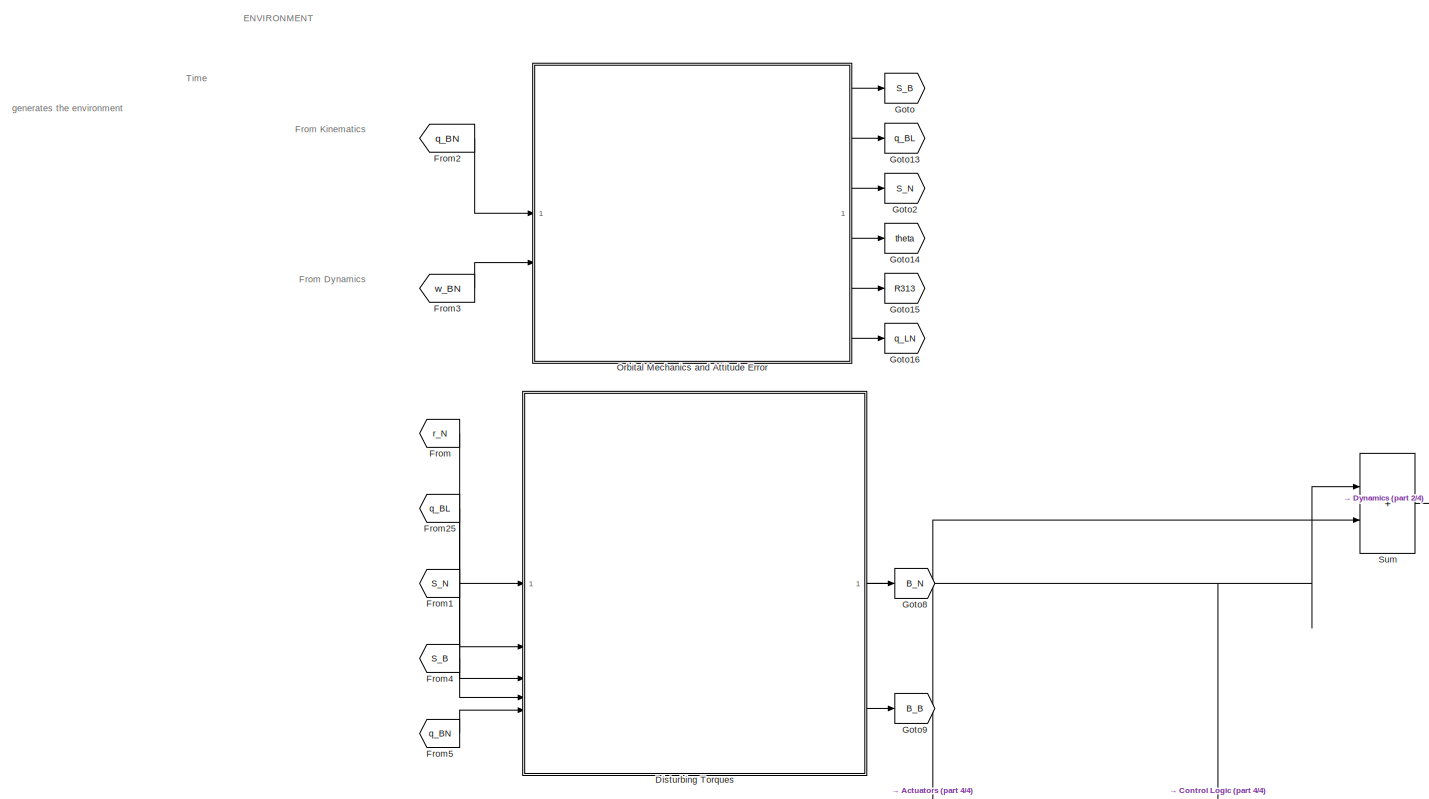
[diagram: root canvas - part 1/4, top left region]
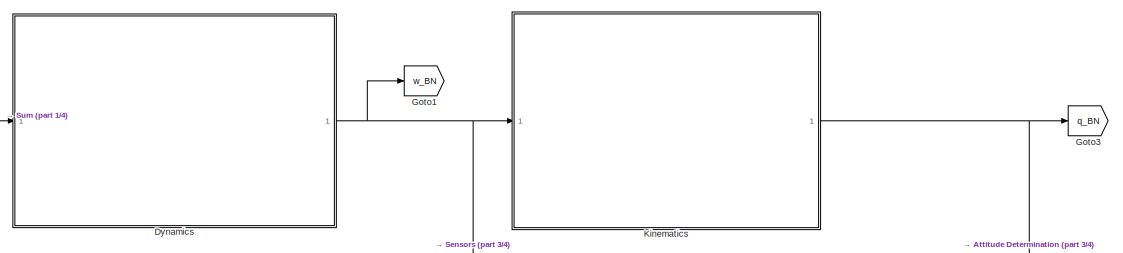
[diagram: root canvas - part 2/4, top right region]
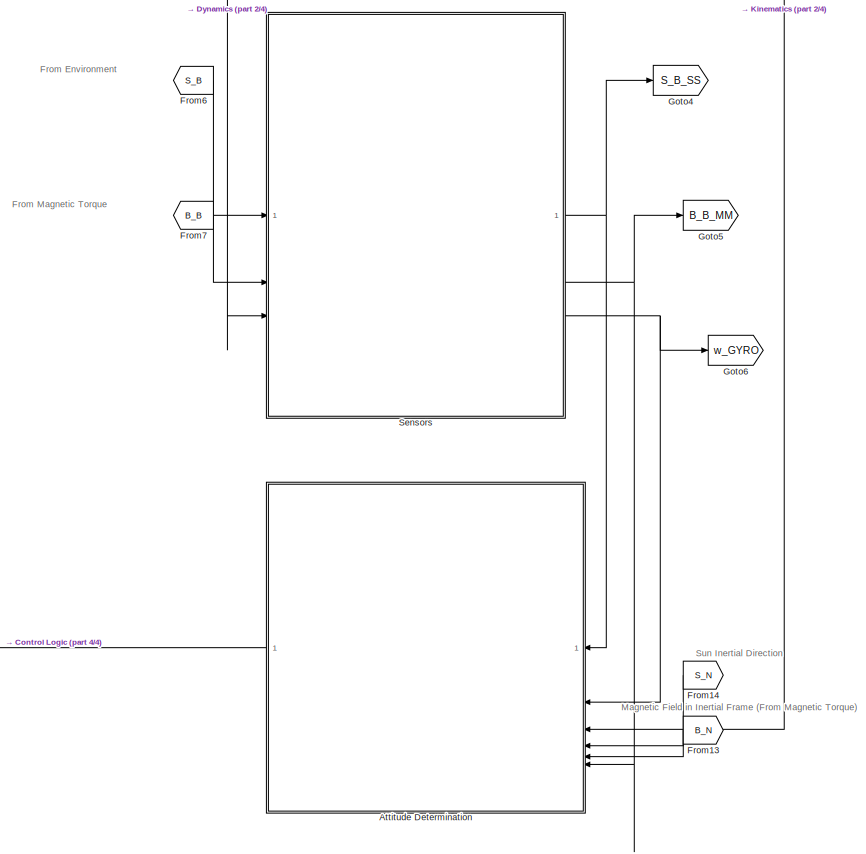
[diagram: root canvas - part 3/4, bottom right region]
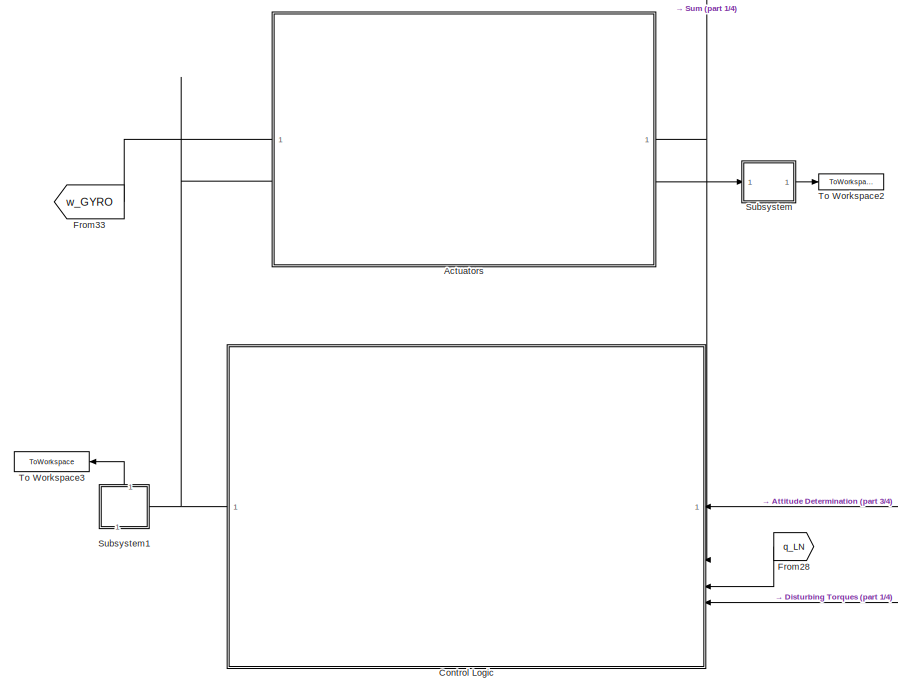
[diagram: root canvas - part 4/4, bottom left region]
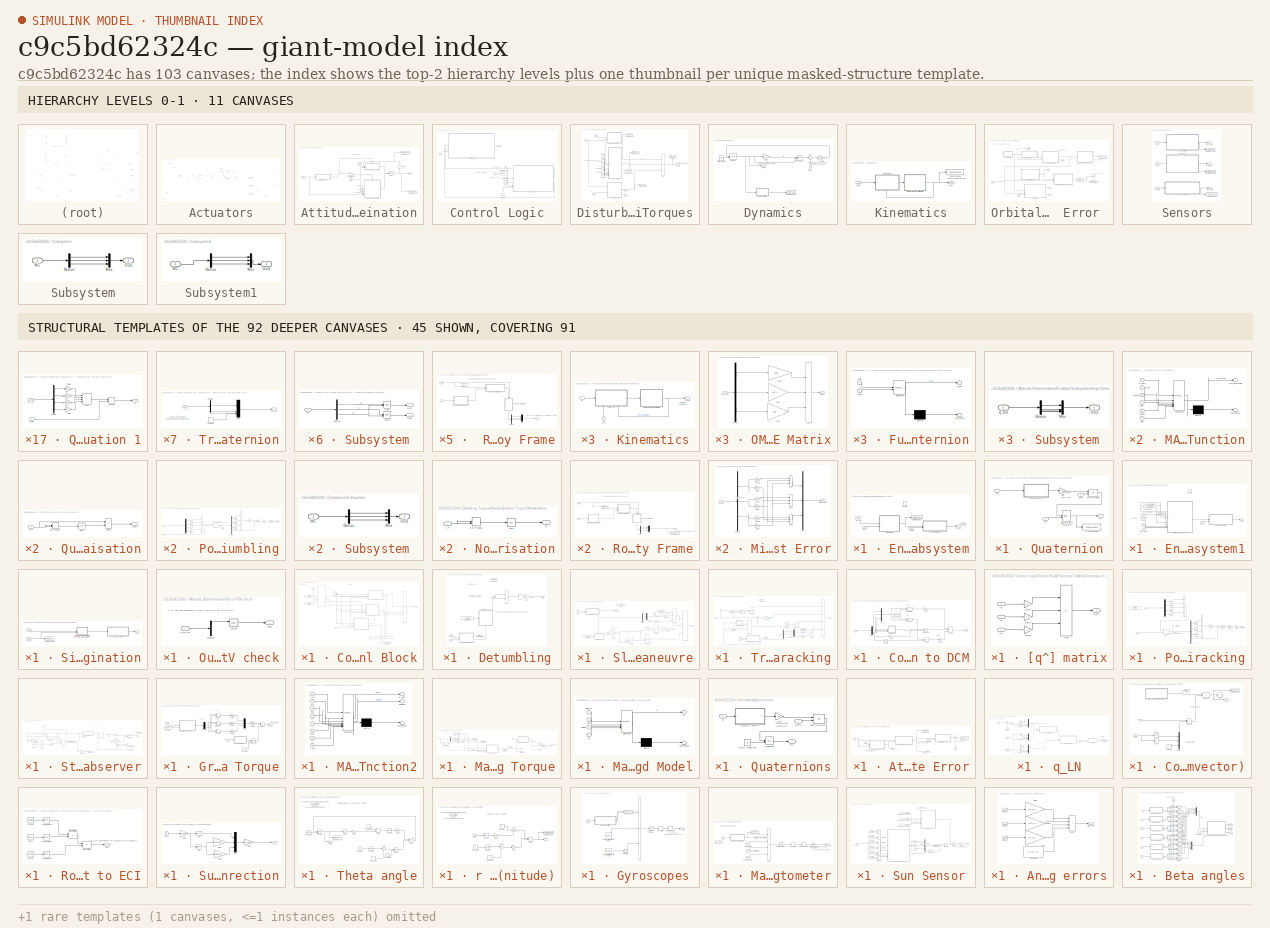
[diagram: thumbnail index - top-2 hierarchy levels (11 canvases) + 45 structural-template representatives of the remaining 92 canvases]
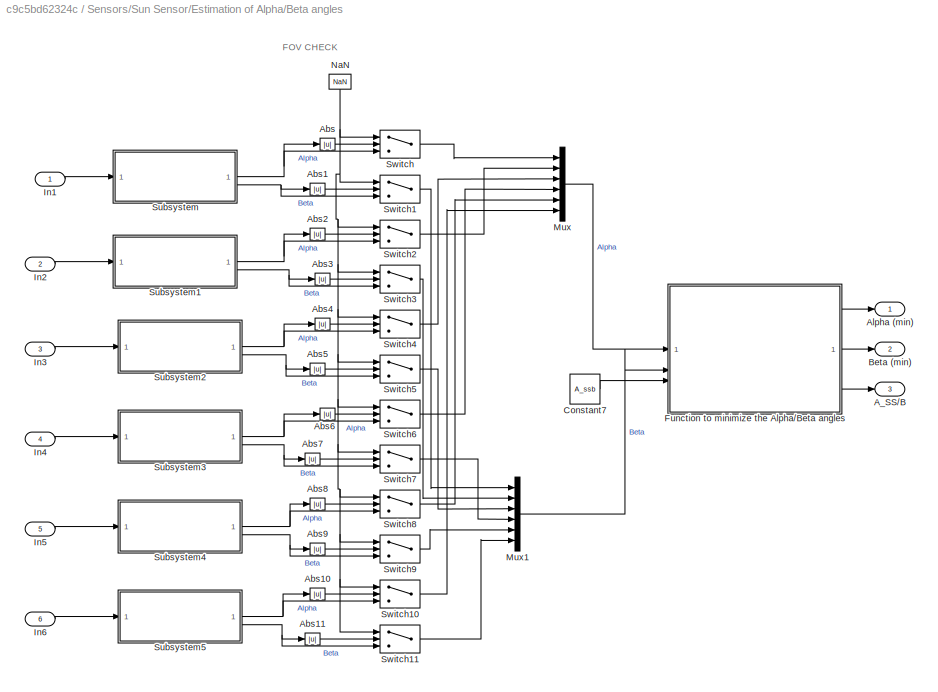
MODEL slx_c9c5bd62324c
KIND model
CONFIG AbsTol = auto
CONFIG EnableMultiTasking = off
CONFIG FixedStep = 0.1
CONFIG MaxStep = auto
CONFIG MinStep = auto
CONFIG RelTol = 1e-3
CONFIG SampleTimeConstraint = Unconstrained
CONFIG SolverName = ode4
CONFIG StartTime = 0.0
CONFIG StopTime = 4*pi/n
BLOCK [SubSystem] Actuators
BLOCK [Constant] Actuators/Constant
  Value = actuators.RW.Ir
BLOCK [Constant] Actuators/Constant10
  Value = actuators.RW.hsat
BLOCK [Constant] Actuators/Constant8
  Value = actuators.RW.Msat
BLOCK [Constant] Actuators/Constant9
  Value = actuators.RW.wsat
BLOCK [Reference] Actuators/Cross Product  REF=matrix_library/Cross Product
  LibrarySourceBlock = simulink/Matrix\nOperations/Cross Product
  SourceBlock = matrix_library/Cross Product
  SourceType = CrossProduct
BLOCK [Reference] Actuators/Cross Product1  REF=matrix_library/Cross Product
  LibrarySourceBlock = simulink/Matrix\nOperations/Cross Product
  SourceBlock = matrix_library/Cross Product
  SourceType = CrossProduct
BLOCK [Delay] Actuators/Delay
  DelayLength = 1
  InputPortMap = u0
BLOCK [Delay] Actuators/Delay1
  DelayLength = 1
  InitialCondition = 0
  InputPortMap = u0
  NameLocation = top
BLOCK [Gain] Actuators/Gain
  Gain = actuators.RW.A
  Multiplication = Matrix(K*u)
BLOCK [Gain] Actuators/Gain1
  Gain = -inv(actuators.RW.A)
  Multiplication = Matrix(K*u)
BLOCK [Gain] Actuators/Gain2
  Gain = inv(actuators.RW.Ir)
  Multiplication = Matrix(K*u)
BLOCK [Gain] Actuators/Gain3
  Gain = -actuators.RW.A
  Multiplication = Matrix(K*u)
BLOCK [Gain] Actuators/Gain4
  Gain = -1
BLOCK [Gain] Actuators/Gain5
  Gain = actuators.RW.A
  Multiplication = Matrix(K*u)
BLOCK [Integrator] Actuators/Integrator
  InitialConditionSource = external
BLOCK [SubSystem] Actuators/MATLAB Function
  ErrorFcn = Stateflow.Translate.translate
  PermitHierarchicalResolution = ExplicitOnly
  SFBlockType = MATLAB Function
  TreatAsAtomicUnit = on
BLOCK [Demux] Actuators/MATLAB Function/ Demux 
  Outputs = 1
BLOCK [S-Function] Actuators/MATLAB Function/ SFunction 
  EnableBusSupport = on
  FunctionName = sf_sfun
  PortCounts = [6 2]
  SFcnIsStateOwnerBlock = off
  SFunctionDeploymentMode = off
  Tag = Stateflow S-Function 4
BLOCK [Terminator] Actuators/MATLAB Function/ Terminator 
BLOCK [Outport] Actuators/MATLAB Function/MC_saturation
BLOCK [Inport] Actuators/MATLAB Function/M_RWs
BLOCK [Inport] Actuators/MATLAB Function/Msat
  Port = 2
BLOCK [Inport] Actuators/MATLAB Function/h_RWs
  Port = 5
BLOCK [Inport] Actuators/MATLAB Function/hsat
  Port = 6
BLOCK [Inport] Actuators/MATLAB Function/w_RWs
  Port = 3
BLOCK [Inport] Actuators/MATLAB Function/wsat
  Port = 4
BLOCK [Outport] Actuators/MC
BLOCK [Inport] Actuators/MC_Req
  NameLocation = right
  Port = 2
BLOCK [Constant] Actuators/Null intial condition on RWs
  Value = [0; 0; 0]
BLOCK [Product] Actuators/Product
  Multiplication = Matrix(*)
BLOCK [RateLimiter] Actuators/Rate Limiter
  NameLocation = right
BLOCK [Sum] Actuators/Sum
  Inputs = |-+
BLOCK [Sum] Actuators/Sum1
  Inputs = |++
BLOCK [Sum] Actuators/Sum2
  IconShape = rectangular
  Inputs = |++
BLOCK [Inport] Actuators/w_GYRO
BLOCK [SubSystem] Attitude Determination
BLOCK [Inport] Attitude Determination/B_B_MM
  Port = 6
BLOCK [Inport] Attitude Determination/B_N
  Port = 5
BLOCK [Delay] Attitude Determination/Delay
  DelayLength = 1
  InputPortMap = u0
  NameLocation = right
BLOCK [SubSystem] Attitude Determination/Enabled Subsystem
  TreatAsAtomicUnit = on
BLOCK [EnablePort] Attitude Determination/Enabled Subsystem/Enable
  StatesWhenEnabling = reset
BLOCK [SubSystem] Attitude Determination/Enabled Subsystem/Kinematics
BLOCK [SubSystem] Attitude Determination/Enabled Subsystem/Kinematics/Quaternion
  PortSchema = {"entries":[{"content":{"sides":[{"content":{"connectorIds":["In1"]},"type":"ConnectorPlacement.EquallySpacedRectSide","uuid":"337480c7-b996-434a-97d1-93b75d8b293c"},{"content":{"connectorIds":["Out1"],"side":"RIGHT"},"type":"ConnectorPlacement.EquallySpacedRectSide","uuid":"41d32615-4344-48a4-ad5b-2dad4deabdda"},{"content":{"side":"TOP"},"type":"ConnectorPlacement.EquallySpacedRectSide","uuid":"4...<+377ch>
BLOCK [SubSystem] Attitude Determination/Enabled Subsystem/Kinematics/Quaternion Normalization
BLOCK [Product] Attitude Determination/Enabled Subsystem/Kinematics/Quaternion Normalization/Divide
  Inputs = */
BLOCK [DotProduct] Attitude Determination/Enabled Subsystem/Kinematics/Quaternion Normalization/Dot Product
  OutDataTypeStr = Inherit: Inherit via internal rule
BLOCK [Sqrt] Attitude Determination/Enabled Subsystem/Kinematics/Quaternion Normalization/Sqrt
BLOCK [Inport] Attitude Determination/Enabled Subsystem/Kinematics/Quaternion Normalization/q(t)
BLOCK [Outport] Attitude Determination/Enabled Subsystem/Kinematics/Quaternion Normalization/q_BN
BLOCK [DiscreteIntegrator] Attitude Determination/Enabled Subsystem/Kinematics/Quaternion/Discrete-Time Integrator
  ICPrevOutput = DiscIntNeverNeededParam
  ICPrevScaledInput = DiscIntNeverNeededParam
  InitialConditionSetting = Auto
  InitialConditionSource = external
  SampleTime = Tsample
BLOCK [Gain] Attitude Determination/Enabled Subsystem/Kinematics/Quaternion/Gain
  Gain = 1/2
BLOCK [Product] Attitude Determination/Enabled Subsystem/Kinematics/Quaternion/Matrix Multiply
  Multiplication = Matrix(*)
BLOCK [SubSystem] Attitude Determination/Enabled Subsystem/Kinematics/Quaternion/Omega Matrix
BLOCK [Demux] Attitude Determination/Enabled Subsystem/Kinematics/Quaternion/Omega Matrix/Demux
  Outputs = 3
BLOCK [Gain] Attitude Determination/Enabled Subsystem/Kinematics/Quaternion/Omega Matrix/Gain1
  Gain = [0 0 0 1; 0 0 1 0; 0 -1 0 0; -1 0 0 0]
  NameLocation = top
BLOCK [Gain] Attitude Determination/Enabled Subsystem/Kinematics/Quaternion/Omega Matrix/Gain2
  Gain = [0 0 -1 0; 0 0 0 1; 1 0 0 0; 0 -1 0 0]
  NameLocation = top
BLOCK [Gain] Attitude Determination/Enabled Subsystem/Kinematics/Quaternion/Omega Matrix/Gain3
  Gain = [0 1 0 0; -1 0 0 0; 0 0 0 1; 0 0 -1 0]
  NameLocation = top
BLOCK [Inport] Attitude Determination/Enabled Subsystem/Kinematics/Quaternion/Omega Matrix/In1
BLOCK [Outport] Attitude Determination/Enabled Subsystem/Kinematics/Quaternion/Omega Matrix/Out1
BLOCK [Sum] Attitude Determination/Enabled Subsystem/Kinematics/Quaternion/Omega Matrix/Sum
  IconShape = rectangular
  Inputs = +++
BLOCK [ToWorkspace] Attitude Determination/Enabled Subsystem/Kinematics/Quaternion/To Workspace
  FixptAsFi = on
  MaxDataPoints = inf
  SampleTime = -1
  VariableName = int
BLOCK [Outport] Attitude Determination/Enabled Subsystem/Kinematics/Quaternion/q(t)
BLOCK [Inport] Attitude Determination/Enabled Subsystem/Kinematics/Quaternion/q_0
  Port = 2
BLOCK [Inport] Attitude Determination/Enabled Subsystem/Kinematics/Quaternion/q_BN
  Port = 3
BLOCK [Inport] Attitude Determination/Enabled Subsystem/Kinematics/Quaternion/w
BLOCK [Inport] Attitude Determination/Enabled Subsystem/Kinematics/q_0
  NameLocation = right
  Port = 2
BLOCK [Outport] Attitude Determination/Enabled Subsystem/Kinematics/q_est
BLOCK [Inport] Attitude Determination/Enabled Subsystem/Kinematics/w
BLOCK [SubSystem] Attitude Determination/Enabled Subsystem/Sign Determination
BLOCK [SubSystem] Attitude Determination/Enabled Subsystem/Sign Determination/Function to determinate the correct sign of the estimated quaternion
  ErrorFcn = Stateflow.Translate.translate
  PermitHierarchicalResolution = ExplicitOnly
  SFBlockType = MATLAB Function
  TreatAsAtomicUnit = on
BLOCK [Demux] Attitude Determination/Enabled Subsystem/Sign Determination/Function to determinate the correct sign of the estimated quaternion/ Demux 
  Outputs = 1
BLOCK [S-Function] Attitude Determination/Enabled Subsystem/Sign Determination/Function to determinate the correct sign of the estimated quaternion/ SFunction 
  EnableBusSupport = on
  FunctionName = sf_sfun
  PortCounts = [2 2]
  SFcnIsStateOwnerBlock = off
  SFunctionDeploymentMode = off
  Tag = Stateflow S-Function 7
BLOCK [Terminator] Attitude Determination/Enabled Subsystem/Sign Determination/Function to determinate the correct sign of the estimated quaternion/ Terminator 
BLOCK [Inport] Attitude Determination/Enabled Subsystem/Sign Determination/Function to determinate the correct sign of the estimated quaternion/q_BN
BLOCK [Outport] Attitude Determination/Enabled Subsystem/Sign Determination/Function to determinate the correct sign of the estimated quaternion/q_est
BLOCK [Inport] Attitude Determination/Enabled Subsystem/Sign Determination/Function to determinate the correct sign of the estimated quaternion/q_est 
  Port = 2
BLOCK [SubSystem] Attitude Determination/Enabled Subsystem/Sign Determination/Subsystem
BLOCK [Demux] Attitude Determination/Enabled Subsystem/Sign Determination/Subsystem/Demux
BLOCK [Mux] Attitude Determination/Enabled Subsystem/Sign Determination/Subsystem/Mux
  DisplayOption = bar
BLOCK [Outport] Attitude Determination/Enabled Subsystem/Sign Determination/Subsystem/Out1
BLOCK [Inport] Attitude Determination/Enabled Subsystem/Sign Determination/Subsystem/q_est
BLOCK [Inport] Attitude Determination/Enabled Subsystem/Sign Determination/q_BN
  Port = 2
BLOCK [Outport] Attitude Determination/Enabled Subsystem/Sign Determination/q_est
BLOCK [Inport] Attitude Determination/Enabled Subsystem/Sign Determination/q_est 
BLOCK [ToWorkspace] Attitude Determination/Enabled Subsystem/To Workspace
  FixptAsFi = on
  MaxDataPoints = inf
  SampleTime = -1
  VariableName = q_estG1
BLOCK [Inport] Attitude Determination/Enabled Subsystem/q_0
  Port = 2
BLOCK [Inport] Attitude Determination/Enabled Subsystem/q_BN
  Port = 3
BLOCK [Outport] Attitude Determination/Enabled Subsystem/q_est
BLOCK [Inport] Attitude Determination/Enabled Subsystem/w_GYRO
BLOCK [SubSystem] Attitude Determination/Enabled Subsystem1
  TreatAsAtomicUnit = on
BLOCK [SubSystem] Attitude Determination/Enabled Subsystem1/Attitude determination
  ErrorFcn = Stateflow.Translate.translate
  PermitHierarchicalResolution = ExplicitOnly
  SFBlockType = MATLAB Function
  TreatAsAtomicUnit = on
BLOCK [Demux] Attitude Determination/Enabled Subsystem1/Attitude determination/ Demux 
  Outputs = 1
BLOCK [S-Function] Attitude Determination/Enabled Subsystem1/Attitude determination/ SFunction 
  EnableBusSupport = on
  FunctionName = sf_sfun
  PortCounts = [6 2]
  SFcnIsStateOwnerBlock = off
  SFunctionDeploymentMode = off
  Tag = Stateflow S-Function 3
BLOCK [Terminator] Attitude Determination/Enabled Subsystem1/Attitude determination/ Terminator 
BLOCK [Inport] Attitude Determination/Enabled Subsystem1/Attitude determination/B_B_Estim
  Port = 6
BLOCK [Inport] Attitude Determination/Enabled Subsystem1/Attitude determination/B_N
  Port = 5
BLOCK [Inport] Attitude Determination/Enabled Subsystem1/Attitude determination/S_B_Estim
  Port = 4
BLOCK [Inport] Attitude Determination/Enabled Subsystem1/Attitude determination/S_N
  Port = 3
BLOCK [Inport] Attitude Determination/Enabled Subsystem1/Attitude determination/a_mag
BLOCK [Inport] Attitude Determination/Enabled Subsystem1/Attitude determination/a_sun
  Port = 2
BLOCK [Outport] Attitude Determination/Enabled Subsystem1/Attitude determination/q_est
BLOCK [Inport] Attitude Determination/Enabled Subsystem1/B_B_MM
  Port = 4
BLOCK [Inport] Attitude Determination/Enabled Subsystem1/B_N
  Port = 3
BLOCK [Constant] Attitude Determination/Enabled Subsystem1/Constant
  Value = sensors.mag.accuracy
BLOCK [Constant] Attitude Determination/Enabled Subsystem1/Constant2
  Value = sensors.SS.accuracy
BLOCK [EnablePort] Attitude Determination/Enabled Subsystem1/Enable
BLOCK [Reference] Attitude Determination/Enabled Subsystem1/Normalize Vector1  REF=vrlib/Utilities/Normalize Vector
  SourceBlock = vrlib/Utilities/Normalize Vector
  SourceType = Normalize Vector
BLOCK [Inport] Attitude Determination/Enabled Subsystem1/S_B_SS
  Port = 5
BLOCK [Inport] Attitude Determination/Enabled Subsystem1/S_N
  Port = 2
BLOCK [SubSystem] Attitude Determination/Enabled Subsystem1/Sign determination
BLOCK [SubSystem] Attitude Determination/Enabled Subsystem1/Sign determination/Function to determinate the correct sign of the estimated quaternion
  ErrorFcn = Stateflow.Translate.translate
  PermitHierarchicalResolution = ExplicitOnly
  SFBlockType = MATLAB Function
  TreatAsAtomicUnit = on
BLOCK [Demux] Attitude Determination/Enabled Subsystem1/Sign determination/Function to determinate the correct sign of the estimated quaternion/ Demux 
  Outputs = 1
BLOCK [S-Function] Attitude Determination/Enabled Subsystem1/Sign determination/Function to determinate the correct sign of the estimated quaternion/ SFunction 
  EnableBusSupport = on
  FunctionName = sf_sfun
  PortCounts = [2 2]
  SFcnIsStateOwnerBlock = off
  SFunctionDeploymentMode = off
  Tag = Stateflow S-Function 11
BLOCK [Terminator] Attitude Determination/Enabled Subsystem1/Sign determination/Function to determinate the correct sign of the estimated quaternion/ Terminator 
BLOCK [Inport] Attitude Determination/Enabled Subsystem1/Sign determination/Function to determinate the correct sign of the estimated quaternion/q_BN
BLOCK [Outport] Attitude Determination/Enabled Subsystem1/Sign determination/Function to determinate the correct sign of the estimated quaternion/q_est
BLOCK [Inport] Attitude Determination/Enabled Subsystem1/Sign determination/Function to determinate the correct sign of the estimated quaternion/q_est 
  Port = 2
BLOCK [SubSystem] Attitude Determination/Enabled Subsystem1/Sign determination/Subsystem
BLOCK [Demux] Attitude Determination/Enabled Subsystem1/Sign determination/Subsystem/Demux
BLOCK [Mux] Attitude Determination/Enabled Subsystem1/Sign determination/Subsystem/Mux
  DisplayOption = bar
BLOCK [Outport] Attitude Determination/Enabled Subsystem1/Sign determination/Subsystem/Out1
BLOCK [Inport] Attitude Determination/Enabled Subsystem1/Sign determination/Subsystem/q_est
BLOCK [ToWorkspace] Attitude Determination/Enabled Subsystem1/Sign determination/To Workspace
  FixptAsFi = on
  MaxDataPoints = inf
  SampleTime = -1
  VariableName = q_est1
BLOCK [Outport] Attitude Determination/Enabled Subsystem1/Sign determination/q_0
BLOCK [Inport] Attitude Determination/Enabled Subsystem1/Sign determination/q_BN
  Port = 2
BLOCK [Inport] Attitude Determination/Enabled Subsystem1/Sign determination/q_est 
BLOCK [Inport] Attitude Determination/Enabled Subsystem1/q_BN
BLOCK [Outport] Attitude Determination/Enabled Subsystem1/q_est
BLOCK [Merge] Attitude Determination/Merge1
BLOCK [Logic] Attitude Determination/NOT (Change of condition)
  AllPortsSameDT = off
  IconShape = distinctive
  Operator = NOT
  OutDataTypeStr = boolean
BLOCK [SubSystem] Attitude Determination/Out of FOV check
BLOCK [Demux] Attitude Determination/Out of FOV check/Demux
  Outputs = 3
BLOCK [RelationalOperator] Attitude Determination/Out of FOV check/IsNaN
  InputSameDT = off
  Operator = isNaN
  OutDataTypeStr = boolean
  RndMeth = Simplest
BLOCK [Outport] Attitude Determination/Out of FOV check/Out1
BLOCK [Inport] Attitude Determination/Out of FOV check/S_B_SS
BLOCK [Inport] Attitude Determination/S_B_SS
BLOCK [Inport] Attitude Determination/S_N
  Port = 4
BLOCK [ToWorkspace] Attitude Determination/To Workspace
  FixptAsFi = on
  MaxDataPoints = inf
  SampleTime = -1
  SaveFormat = Timeseries
  VariableName = delay
BLOCK [ToWorkspace] Attitude Determination/To Workspace9
  FixptAsFi = on
  MaxDataPoints = inf
  SampleTime = -1
  VariableName = q_Est
BLOCK [Inport] Attitude Determination/q_BN
  Port = 3
BLOCK [Outport] Attitude Determination/q_Est
BLOCK [Inport] Attitude Determination/w_GYRO
  Port = 2
BLOCK [SubSystem] Control Logic
BLOCK [SubSystem] Control Logic/Control Block
BLOCK [Clock] Control Logic/Control Block/Clock
BLOCK [Constant] Control Logic/Control Block/Constant
  Value = control.detumbling.MaxTime
BLOCK [Constant] Control Logic/Control Block/Constant1
  Value = control.slewManeuvre.MaxTime
BLOCK [SubSystem] Control Logic/Control Block/Detumbling
  TreatAsAtomicUnit = on
BLOCK [ActionPort] Control Logic/Control Block/Detumbling/Action Port
  ActionPortLabel = if(u1<=u2)
BLOCK [Constant] Control Logic/Control Block/Detumbling/Constant
  Value = control.detumbling.wd
BLOCK [Gain] Control Logic/Control Block/Detumbling/Gain
  Gain = -control.detumbling.kd
BLOCK [Outport] Control Logic/Control Block/Detumbling/MC
BLOCK [Outport] Control Logic/Control Block/Detumbling/Pointing Error (DT)
  Port = 2
BLOCK [SubSystem] Control Logic/Control Block/Detumbling/Pointing Error for Detumbling
BLOCK [Trigonometry] Control Logic/Control Block/Detumbling/Pointing Error for Detumbling/Atan
  Operator = atan2
  OutputSignalType = real
BLOCK [Demux] Control Logic/Control Block/Detumbling/Pointing Error for Detumbling/Demux1
BLOCK [Demux] Control Logic/Control Block/Detumbling/Pointing Error for Detumbling/Demux2
BLOCK [Gain] Control Logic/Control Block/Detumbling/Pointing Error for Detumbling/Gain
  Gain = [0, 0, 0, -1; 0, 0, 1, 0; 0, -1, 0, 0; 1, 0, 0, 0]
BLOCK [Gain] Control Logic/Control Block/Detumbling/Pointing Error for Detumbling/Gain1
  Gain = [0, 0, -1, 0; 0, 0, 0, -1; 1, 0, 0, 0; 0, 1, 0, 0]
BLOCK [Gain] Control Logic/Control Block/Detumbling/Pointing Error for Detumbling/Gain2
  Gain = [0, 1, 0, 0; -1, 0, 0, 0; 0, 0, 0, -1; 0, 0, 1, 0]
BLOCK [Gain] Control Logic/Control Block/Detumbling/Pointing Error for Detumbling/Gain3
  Gain = [1, 0, 0, 0; 0, 1, 0, 0; 0, 0, 1, 0; 0, 0, 0, 1]
BLOCK [Gain] Control Logic/Control Block/Detumbling/Pointing Error for Detumbling/Gain4
  Gain = 2
BLOCK [Outport] Control Logic/Control Block/Detumbling/Pointing Error for Detumbling/Pointing Error
BLOCK [Math] Control Logic/Control Block/Detumbling/Pointing Error for Detumbling/Power
  Operator = magnitude^2
BLOCK [Math] Control Logic/Control Block/Detumbling/Pointing Error for Detumbling/Power1
  Operator = magnitude^2
BLOCK [Math] Control Logic/Control Block/Detumbling/Pointing Error for Detumbling/Power2
  Operator = magnitude^2
BLOCK [Product] Control Logic/Control Block/Detumbling/Pointing Error for Detumbling/Product
  Multiplication = Matrix(*)
BLOCK [Sqrt] Control Logic/Control Block/Detumbling/Pointing Error for Detumbling/Sqrt
BLOCK [Sum] Control Logic/Control Block/Detumbling/Pointing Error for Detumbling/Sum
  IconShape = rectangular
  Inputs = |++++
BLOCK [Sum] Control Logic/Control Block/Detumbling/Pointing Error for Detumbling/Sum1
  IconShape = rectangular
  Inputs = |+++
BLOCK [Inport] Control Logic/Control Block/Detumbling/Pointing Error for Detumbling/q_LN
  Port = 2
BLOCK [Outport] Control Logic/Control Block/Detumbling/Pointing Error for Detumbling/q_err
  Port = 2
BLOCK [Inport] Control Logic/Control Block/Detumbling/Pointing Error for Detumbling/q_obs
BLOCK [Gain] Control Logic/Control Block/Detumbling/Pointing Error for Detumbling/rad2deg
  Gain = 180/pi
BLOCK [SubSystem] Control Logic/Control Block/Detumbling/Rotation of w_DET
  NameLocation = right
  PortSchema = {"entries":[{"content":{"sides":[{"content":{"connectorIds":["In1"]},"type":"ConnectorPlacement.EquallySpacedRectSide","uuid":"e766ba7c-a90d-4477-9792-9e015694ef4b"},{"content":{"side":"RIGHT"},"type":"ConnectorPlacement.EquallySpacedRectSide","uuid":"09ef99fb-b530-4892-96c7-55e142825948"},{"content":{"connectorIds":["Out1"],"side":"TOP"},"type":"ConnectorPlacement.EquallySpacedRectSide","uuid":"c...<+371ch>
BLOCK [Demux] Control Logic/Control Block/Detumbling/Rotation of w_DET/Demux
BLOCK [Mux] Control Logic/Control Block/Detumbling/Rotation of w_DET/Mux
  DisplayOption = bar
  Inputs = 3
BLOCK [SubSystem] Control Logic/Control Block/Detumbling/Rotation of w_DET/Quaternion multiplication 1
BLOCK [Demux] Control Logic/Control Block/Detumbling/Rotation of w_DET/Quaternion multiplication 1/Demux
BLOCK [Gain] Control Logic/Control Block/Detumbling/Rotation of w_DET/Quaternion multiplication 1/Gain
  Gain = [1 0 0 0; 0 1 0 0; 0 0 1 0; 0 0 0 1]
BLOCK [Gain] Control Logic/Control Block/Detumbling/Rotation of w_DET/Quaternion multiplication 1/Gain1
  Gain = [0 0 0 1; 0 0 1 0; 0 -1 0 0; -1 0 0 0]
BLOCK [Gain] Control Logic/Control Block/Detumbling/Rotation of w_DET/Quaternion multiplication 1/Gain2
  Gain = [0 0 -1 0; 0 0 0 1; 1 0 0 0; 0 -1 0 0]
BLOCK [Gain] Control Logic/Control Block/Detumbling/Rotation of w_DET/Quaternion multiplication 1/Gain3
  Gain = [0 1 0 0; -1 0 0 0; 0 0 0 1; 0 0 -1 0]
BLOCK [Product] Control Logic/Control Block/Detumbling/Rotation of w_DET/Quaternion multiplication 1/Product
  Multiplication = Matrix(*)
BLOCK [Sum] Control Logic/Control Block/Detumbling/Rotation of w_DET/Quaternion multiplication 1/Sum
  IconShape = rectangular
  Inputs = |++++
BLOCK [Outport] Control Logic/Control Block/Detumbling/Rotation of w_DET/Quaternion multiplication 1/q*q' = q1
BLOCK [Inport] Control Logic/Control Block/Detumbling/Rotation of w_DET/Quaternion multiplication 1/q_BL' = q
BLOCK [Inport] Control Logic/Control Block/Detumbling/Rotation of w_DET/Quaternion multiplication 1/q_LN = q'
  Port = 2
BLOCK [SubSystem] Control Logic/Control Block/Detumbling/Rotation of w_DET/Quaternion multiplication 2
  NameLocation = left
BLOCK [Demux] Control Logic/Control Block/Detumbling/Rotation of w_DET/Quaternion multiplication 2/Demux
BLOCK [Gain] Control Logic/Control Block/Detumbling/Rotation of w_DET/Quaternion multiplication 2/Gain
  Gain = [1 0 0 0; 0 1 0 0; 0 0 1 0; 0 0 0 1]
BLOCK [Gain] Control Logic/Control Block/Detumbling/Rotation of w_DET/Quaternion multiplication 2/Gain1
  Gain = [0 0 0 1;0 0 1 0;0 -1 0 0;-1 0 0 0]
BLOCK [Gain] Control Logic/Control Block/Detumbling/Rotation of w_DET/Quaternion multiplication 2/Gain2
  Gain = [0 0 -1 0;0 0 0 1;1 0 0 0;0 -1 0 0]
BLOCK [Gain] Control Logic/Control Block/Detumbling/Rotation of w_DET/Quaternion multiplication 2/Gain3
  Gain = [0 1 0 0; -1 0 0 0; 0 0 0 1; 0 0 -1 0]
BLOCK [Product] Control Logic/Control Block/Detumbling/Rotation of w_DET/Quaternion multiplication 2/Product
  Multiplication = Matrix(*)
BLOCK [Sum] Control Logic/Control Block/Detumbling/Rotation of w_DET/Quaternion multiplication 2/Sum
  IconShape = rectangular
  Inputs = |++++
BLOCK [Outport] Control Logic/Control Block/Detumbling/Rotation of w_DET/Quaternion multiplication 2/q*q' = q2
BLOCK [Inport] Control Logic/Control Block/Detumbling/Rotation of w_DET/Quaternion multiplication 2/q1 = q
BLOCK [Inport] Control Logic/Control Block/Detumbling/Rotation of w_DET/Quaternion multiplication 2/q_BL = q'
  Port = 2
BLOCK [SubSystem] Control Logic/Control Block/Detumbling/Rotation of w_DET/Transformation in Quaternion
BLOCK [Constant] Control Logic/Control Block/Detumbling/Rotation of w_DET/Transformation in Quaternion/Constant
  Value = 0
BLOCK [Demux] Control Logic/Control Block/Detumbling/Rotation of w_DET/Transformation in Quaternion/Demux
  Outputs = 3
BLOCK [Mux] Control Logic/Control Block/Detumbling/Rotation of w_DET/Transformation in Quaternion/Mux
  DisplayOption = bar
BLOCK [Outport] Control Logic/Control Block/Detumbling/Rotation of w_DET/Transformation in Quaternion/q_LN
BLOCK [Inport] Control Logic/Control Block/Detumbling/Rotation of w_DET/Transformation in Quaternion/w_LN
BLOCK [Gain] Control Logic/Control Block/Detumbling/Rotation of w_DET/Transpose
  Gain = [-1 -1 -1 1]
BLOCK [Inport] Control Logic/Control Block/Detumbling/Rotation of w_DET/q_err
  Port = 2
BLOCK [Inport] Control Logic/Control Block/Detumbling/Rotation of w_DET/w_DET
BLOCK [Outport] Control Logic/Control Block/Detumbling/Rotation of w_DET/w_det_body
BLOCK [Sum] Control Logic/Control Block/Detumbling/Sum
  IconShape = rectangular
  Inputs = |+-
BLOCK [Inport] Control Logic/Control Block/Detumbling/q_LN
  Port = 3
BLOCK [Inport] Control Logic/Control Block/Detumbling/q_obs
  Port = 2
BLOCK [Inport] Control Logic/Control Block/Detumbling/w_obs
BLOCK [If] Control Logic/Control Block/If
  ElseIfExpressions = u2<u1<=u3
  IfExpression = u1<=u2
  NumInputs = 3
BLOCK [Outport] Control Logic/Control Block/MC_Req
BLOCK [Merge] Control Logic/Control Block/Merge
  Inputs = 3
  NameLocation = left
BLOCK [Merge] Control Logic/Control Block/Merge1
  Inputs = 3
BLOCK [SubSystem] Control Logic/Control Block/Slew Maneuvre
  TreatAsAtomicUnit = on
BLOCK [ActionPort] Control Logic/Control Block/Slew Maneuvre/Action Port
  ActionPortLabel = elseif(u2<u1<=u3)
BLOCK [Constant] Control Logic/Control Block/Slew Maneuvre/Constant
  Value = I
BLOCK [Constant] Control Logic/Control Block/Slew Maneuvre/Constant2
  Value = control.slewManeuver.k2
BLOCK [Constant] Control Logic/Control Block/Slew Maneuvre/Constant4
  Value = I
BLOCK [Constant] Control Logic/Control Block/Slew Maneuvre/Constant5
  Value = control.slewManeuvre.wd
BLOCK [Constant] Control Logic/Control Block/Slew Maneuvre/Constant6
  Value = I
BLOCK [Reference] Control Logic/Control Block/Slew Maneuvre/Cross Product  REF=matrix_library/Cross Product
  LibrarySourceBlock = simulink/Matrix\nOperations/Cross Product
  SourceBlock = matrix_library/Cross Product
  SourceType = CrossProduct
BLOCK [Demux] Control Logic/Control Block/Slew Maneuvre/Demux
BLOCK [Gain] Control Logic/Control Block/Slew Maneuvre/Gain
  Gain = -2
BLOCK [Gain] Control Logic/Control Block/Slew Maneuvre/Gain1
  Gain = -control.slewManeuver.k1
BLOCK [Outport] Control Logic/Control Block/Slew Maneuvre/MC
BLOCK [Mux] Control Logic/Control Block/Slew Maneuvre/Mux
  DisplayOption = bar
  Inputs = 3
BLOCK [Outport] Control Logic/Control Block/Slew Maneuvre/Pointing Error (SM)
  Port = 2
BLOCK [SubSystem] Control Logic/Control Block/Slew Maneuvre/Pointing Error for Slew Maneuvre
BLOCK [Trigonometry] Control Logic/Control Block/Slew Maneuvre/Pointing Error for Slew Maneuvre/Atan
  Operator = atan2
  OutputSignalType = real
BLOCK [Demux] Control Logic/Control Block/Slew Maneuvre/Pointing Error for Slew Maneuvre/Demux1
BLOCK [Demux] Control Logic/Control Block/Slew Maneuvre/Pointing Error for Slew Maneuvre/Demux2
BLOCK [Gain] Control Logic/Control Block/Slew Maneuvre/Pointing Error for Slew Maneuvre/Gain
  Gain = [0, 0, 0, -1; 0, 0, 1, 0; 0, -1, 0, 0; 1, 0, 0, 0]
BLOCK [Gain] Control Logic/Control Block/Slew Maneuvre/Pointing Error for Slew Maneuvre/Gain1
  Gain = [0, 0, -1, 0; 0, 0, 0, -1; 1, 0, 0, 0; 0, 1, 0, 0]
BLOCK [Gain] Control Logic/Control Block/Slew Maneuvre/Pointing Error for Slew Maneuvre/Gain2
  Gain = [0, 1, 0, 0; -1, 0, 0, 0; 0, 0, 0, -1; 0, 0, 1, 0]
BLOCK [Gain] Control Logic/Control Block/Slew Maneuvre/Pointing Error for Slew Maneuvre/Gain3
  Gain = [1, 0, 0, 0; 0, 1, 0, 0; 0, 0, 1, 0; 0, 0, 0, 1]
BLOCK [Gain] Control Logic/Control Block/Slew Maneuvre/Pointing Error for Slew Maneuvre/Gain4
  Gain = 2
BLOCK [Outport] Control Logic/Control Block/Slew Maneuvre/Pointing Error for Slew Maneuvre/Pointing Error
BLOCK [Math] Control Logic/Control Block/Slew Maneuvre/Pointing Error for Slew Maneuvre/Power
  Operator = magnitude^2
BLOCK [Math] Control Logic/Control Block/Slew Maneuvre/Pointing Error for Slew Maneuvre/Power1
  Operator = magnitude^2
BLOCK [Math] Control Logic/Control Block/Slew Maneuvre/Pointing Error for Slew Maneuvre/Power2
  Operator = magnitude^2
BLOCK [Product] Control Logic/Control Block/Slew Maneuvre/Pointing Error for Slew Maneuvre/Product
  Multiplication = Matrix(*)
BLOCK [Sqrt] Control Logic/Control Block/Slew Maneuvre/Pointing Error for Slew Maneuvre/Sqrt
BLOCK [Sum] Control Logic/Control Block/Slew Maneuvre/Pointing Error for Slew Maneuvre/Sum
  IconShape = rectangular
  Inputs = |++++
BLOCK [Sum] Control Logic/Control Block/Slew Maneuvre/Pointing Error for Slew Maneuvre/Sum1
  IconShape = rectangular
  Inputs = |+++
BLOCK [Inport] Control Logic/Control Block/Slew Maneuvre/Pointing Error for Slew Maneuvre/q_LN
BLOCK [Outport] Control Logic/Control Block/Slew Maneuvre/Pointing Error for Slew Maneuvre/q_e
  Port = 2
BLOCK [Inport] Control Logic/Control Block/Slew Maneuvre/Pointing Error for Slew Maneuvre/q_obs
  Port = 2
BLOCK [Gain] Control Logic/Control Block/Slew Maneuvre/Pointing Error for Slew Maneuvre/rad2deg
  Gain = 180/pi
BLOCK [Product] Control Logic/Control Block/Slew Maneuvre/Product
  Multiplication = Matrix(*)
BLOCK [Product] Control Logic/Control Block/Slew Maneuvre/Product1
  Multiplication = Matrix(*)
BLOCK [Product] Control Logic/Control Block/Slew Maneuvre/Product2
  Multiplication = Matrix(*)
BLOCK [Product] Control Logic/Control Block/Slew Maneuvre/Product3
  Inputs = 3
BLOCK [SubSystem] Control Logic/Control Block/Slew Maneuvre/Rotation of w_SM
  PortSchema = {"entries":[{"content":{"sides":[{"content":{"connectorIds":["In1"]},"type":"ConnectorPlacement.EquallySpacedRectSide","uuid":"e766ba7c-a90d-4477-9792-9e015694ef4b"},{"content":{"connectorIds":["Out1"],"side":"RIGHT"},"type":"ConnectorPlacement.EquallySpacedRectSide","uuid":"09ef99fb-b530-4892-96c7-55e142825948"},{"content":{"connectorIds":["In2"],"side":"TOP"},"type":"ConnectorPlacement.EquallySp...<+245ch>
BLOCK [Demux] Control Logic/Control Block/Slew Maneuvre/Rotation of w_SM/Demux
BLOCK [Mux] Control Logic/Control Block/Slew Maneuvre/Rotation of w_SM/Mux
  DisplayOption = bar
  Inputs = 3
BLOCK [SubSystem] Control Logic/Control Block/Slew Maneuvre/Rotation of w_SM/Quaternion multiplication 1
BLOCK [Demux] Control Logic/Control Block/Slew Maneuvre/Rotation of w_SM/Quaternion multiplication 1/Demux
BLOCK [Gain] Control Logic/Control Block/Slew Maneuvre/Rotation of w_SM/Quaternion multiplication 1/Gain
  Gain = [1 0 0 0; 0 1 0 0; 0 0 1 0; 0 0 0 1]
BLOCK [Gain] Control Logic/Control Block/Slew Maneuvre/Rotation of w_SM/Quaternion multiplication 1/Gain1
  Gain = [0 0 0 1; 0 0 1 0; 0 -1 0 0; -1 0 0 0]
BLOCK [Gain] Control Logic/Control Block/Slew Maneuvre/Rotation of w_SM/Quaternion multiplication 1/Gain2
  Gain = [0 0 -1 0; 0 0 0 1; 1 0 0 0; 0 -1 0 0]
BLOCK [Gain] Control Logic/Control Block/Slew Maneuvre/Rotation of w_SM/Quaternion multiplication 1/Gain3
  Gain = [0 1 0 0; -1 0 0 0; 0 0 0 1; 0 0 -1 0]
BLOCK [Product] Control Logic/Control Block/Slew Maneuvre/Rotation of w_SM/Quaternion multiplication 1/Product
  Multiplication = Matrix(*)
BLOCK [Sum] Control Logic/Control Block/Slew Maneuvre/Rotation of w_SM/Quaternion multiplication 1/Sum
  IconShape = rectangular
  Inputs = |++++
BLOCK [Outport] Control Logic/Control Block/Slew Maneuvre/Rotation of w_SM/Quaternion multiplication 1/q1
BLOCK [Inport] Control Logic/Control Block/Slew Maneuvre/Rotation of w_SM/Quaternion multiplication 1/q_BL'
BLOCK [Inport] Control Logic/Control Block/Slew Maneuvre/Rotation of w_SM/Quaternion multiplication 1/q_LN
  Port = 2
BLOCK [SubSystem] Control Logic/Control Block/Slew Maneuvre/Rotation of w_SM/Quaternion multiplication 2
  NameLocation = left
BLOCK [Demux] Control Logic/Control Block/Slew Maneuvre/Rotation of w_SM/Quaternion multiplication 2/Demux
BLOCK [Gain] Control Logic/Control Block/Slew Maneuvre/Rotation of w_SM/Quaternion multiplication 2/Gain
  Gain = [1 0 0 0; 0 1 0 0; 0 0 1 0; 0 0 0 1]
BLOCK [Gain] Control Logic/Control Block/Slew Maneuvre/Rotation of w_SM/Quaternion multiplication 2/Gain1
  Gain = [0 0 0 1;0 0 1 0;0 -1 0 0;-1 0 0 0]
BLOCK [Gain] Control Logic/Control Block/Slew Maneuvre/Rotation of w_SM/Quaternion multiplication 2/Gain2
  Gain = [0 0 -1 0;0 0 0 1;1 0 0 0;0 -1 0 0]
BLOCK [Gain] Control Logic/Control Block/Slew Maneuvre/Rotation of w_SM/Quaternion multiplication 2/Gain3
  Gain = [0 1 0 0; -1 0 0 0; 0 0 0 1; 0 0 -1 0]
BLOCK [Product] Control Logic/Control Block/Slew Maneuvre/Rotation of w_SM/Quaternion multiplication 2/Product
  Multiplication = Matrix(*)
BLOCK [Sum] Control Logic/Control Block/Slew Maneuvre/Rotation of w_SM/Quaternion multiplication 2/Sum
  IconShape = rectangular
  Inputs = |++++
BLOCK [Outport] Control Logic/Control Block/Slew Maneuvre/Rotation of w_SM/Quaternion multiplication 2/q(w_SM_B)
BLOCK [Inport] Control Logic/Control Block/Slew Maneuvre/Rotation of w_SM/Quaternion multiplication 2/q1
BLOCK [Inport] Control Logic/Control Block/Slew Maneuvre/Rotation of w_SM/Quaternion multiplication 2/q_BL
  Port = 2
BLOCK [SubSystem] Control Logic/Control Block/Slew Maneuvre/Rotation of w_SM/Transformation in Quaternion
BLOCK [Constant] Control Logic/Control Block/Slew Maneuvre/Rotation of w_SM/Transformation in Quaternion/Constant
  Value = 0
BLOCK [Demux] Control Logic/Control Block/Slew Maneuvre/Rotation of w_SM/Transformation in Quaternion/Demux
  Outputs = 3
BLOCK [Mux] Control Logic/Control Block/Slew Maneuvre/Rotation of w_SM/Transformation in Quaternion/Mux
  DisplayOption = bar
BLOCK [Outport] Control Logic/Control Block/Slew Maneuvre/Rotation of w_SM/Transformation in Quaternion/q_LN
BLOCK [Inport] Control Logic/Control Block/Slew Maneuvre/Rotation of w_SM/Transformation in Quaternion/w_LN
BLOCK [Gain] Control Logic/Control Block/Slew Maneuvre/Rotation of w_SM/Transpose
  Gain = [-1 -1 -1 1]
BLOCK [Inport] Control Logic/Control Block/Slew Maneuvre/Rotation of w_SM/q_e
  Port = 2
BLOCK [Inport] Control Logic/Control Block/Slew Maneuvre/Rotation of w_SM/w_SM
BLOCK [Outport] Control Logic/Control Block/Slew Maneuvre/Rotation of w_SM/w_SM_body
BLOCK [Sum] Control Logic/Control Block/Slew Maneuvre/Sum
  IconShape = rectangular
  Inputs = |+++
BLOCK [Sum] Control Logic/Control Block/Slew Maneuvre/Sum1
  IconShape = rectangular
  Inputs = |+-
BLOCK [Inport] Control Logic/Control Block/Slew Maneuvre/q_LN
  Port = 3
BLOCK [Inport] Control Logic/Control Block/Slew Maneuvre/q_obs
  Port = 2
BLOCK [Inport] Control Logic/Control Block/Slew Maneuvre/w_obs
BLOCK [ToWorkspace] Control Logic/Control Block/To Workspace
  FixptAsFi = on
  MaxDataPoints = inf
  SampleTime = -1
  VariableName = pointing_err
BLOCK [SubSystem] Control Logic/Control Block/Trajectory Tracking
  TreatAsAtomicUnit = on
BLOCK [ActionPort] Control Logic/Control Block/Trajectory Tracking/Action Port
  ActionPortLabel = else
BLOCK [Constant] Control Logic/Control Block/Trajectory Tracking/Constant1
  Value = control.tracking.wd
BLOCK [Constant] Control Logic/Control Block/Trajectory Tracking/Constant2
  Value = I
BLOCK [Constant] Control Logic/Control Block/Trajectory Tracking/Constant3
  Value = I
BLOCK [Constant] Control Logic/Control Block/Trajectory Tracking/Constant4
  Value = control.tracking.k2
BLOCK [SubSystem] Control Logic/Control Block/Trajectory Tracking/Conversion from quaternions to DCM
BLOCK [Outport] Control Logic/Control Block/Trajectory Tracking/Conversion from quaternions to DCM/A_e
BLOCK [Demux] Control Logic/Control Block/Trajectory Tracking/Conversion from quaternions to DCM/Demux
BLOCK [Gain] Control Logic/Control Block/Trajectory Tracking/Conversion from quaternions to DCM/Gain
  Gain = -2
BLOCK [Gain] Control Logic/Control Block/Trajectory Tracking/Conversion from quaternions to DCM/Gain1
  Gain = [1 0 0;0 1 0;0 0 1]
BLOCK [Gain] Control Logic/Control Block/Trajectory Tracking/Conversion from quaternions to DCM/Gain2
  Gain = 2
BLOCK [Product] Control Logic/Control Block/Trajectory Tracking/Conversion from quaternions to DCM/Matrix Multiply
  Multiplication = Matrix(*)
BLOCK [Mux] Control Logic/Control Block/Trajectory Tracking/Conversion from quaternions to DCM/Mux
  DisplayOption = bar
  Inputs = 3
BLOCK [Product] Control Logic/Control Block/Trajectory Tracking/Conversion from quaternions to DCM/Product
  Multiplication = Matrix(*)
BLOCK [Product] Control Logic/Control Block/Trajectory Tracking/Conversion from quaternions to DCM/Product1
BLOCK [Math] Control Logic/Control Block/Trajectory Tracking/Conversion from quaternions to DCM/Square
  Operator = square
BLOCK [Sum] Control Logic/Control Block/Trajectory Tracking/Conversion from quaternions to DCM/Sum
  IconShape = rectangular
  Inputs = |-+
BLOCK [Sum] Control Logic/Control Block/Trajectory Tracking/Conversion from quaternions to DCM/Sum1
  IconShape = rectangular
  Inputs = |+++
BLOCK [Math] Control Logic/Control Block/Trajectory Tracking/Conversion from quaternions to DCM/Transpose
  Operator = transpose
BLOCK [SubSystem] Control Logic/Control Block/Trajectory Tracking/Conversion from quaternions to DCM/[q^] matrix
BLOCK [Gain] Control Logic/Control Block/Trajectory Tracking/Conversion from quaternions to DCM/[q^] matrix/Gain
  Gain = [0 0 0;0 0 -1;0 1 0]
BLOCK [Gain] Control Logic/Control Block/Trajectory Tracking/Conversion from quaternions to DCM/[q^] matrix/Gain1
  Gain = [0 0 1;0 0 0;-1 0 0]
BLOCK [Gain] Control Logic/Control Block/Trajectory Tracking/Conversion from quaternions to DCM/[q^] matrix/Gain2
  Gain = [0 -1 0;1 0 0;0 0 0]
BLOCK [Inport] Control Logic/Control Block/Trajectory Tracking/Conversion from quaternions to DCM/[q^] matrix/In1
BLOCK [Inport] Control Logic/Control Block/Trajectory Tracking/Conversion from quaternions to DCM/[q^] matrix/In2
  Port = 2
BLOCK [Inport] Control Logic/Control Block/Trajectory Tracking/Conversion from quaternions to DCM/[q^] matrix/In3
  Port = 3
BLOCK [Outport] Control Logic/Control Block/Trajectory Tracking/Conversion from quaternions to DCM/[q^] matrix/Out1
BLOCK [Sum] Control Logic/Control Block/Trajectory Tracking/Conversion from quaternions to DCM/[q^] matrix/Sum
  IconShape = rectangular
  Inputs = |+++
BLOCK [Inport] Control Logic/Control Block/Trajectory Tracking/Conversion from quaternions to DCM/q_err
BLOCK [Reference] Control Logic/Control Block/Trajectory Tracking/Cross Product  REF=matrix_library/Cross Product
  LibrarySourceBlock = simulink/Matrix\nOperations/Cross Product
  SourceBlock = matrix_library/Cross Product
  SourceType = CrossProduct
BLOCK [Demux] Control Logic/Control Block/Trajectory Tracking/Demux
BLOCK [Derivative] Control Logic/Control Block/Trajectory Tracking/Derivative
BLOCK [Gain] Control Logic/Control Block/Trajectory Tracking/Gain
  Gain = -control.tracking.k1
BLOCK [Gain] Control Logic/Control Block/Trajectory Tracking/Gain1
  Gain = -2
BLOCK [Outport] Control Logic/Control Block/Trajectory Tracking/MC
BLOCK [Mux] Control Logic/Control Block/Trajectory Tracking/Mux
  DisplayOption = bar
  Inputs = 3
BLOCK [Outport] Control Logic/Control Block/Trajectory Tracking/Pointing Error
  Port = 2
BLOCK [SubSystem] Control Logic/Control Block/Trajectory Tracking/Pointing Error for Trajectory Tracking
BLOCK [Trigonometry] Control Logic/Control Block/Trajectory Tracking/Pointing Error for Trajectory Tracking/Atan
  Operator = atan2
  OutputSignalType = real
BLOCK [Constant] Control Logic/Control Block/Trajectory Tracking/Pointing Error for Trajectory Tracking/Constant
  Commented = on
  Value = control.slewManeuvre.qd
BLOCK [Demux] Control Logic/Control Block/Trajectory Tracking/Pointing Error for Trajectory Tracking/Demux1
BLOCK [Demux] Control Logic/Control Block/Trajectory Tracking/Pointing Error for Trajectory Tracking/Demux2
BLOCK [Gain] Control Logic/Control Block/Trajectory Tracking/Pointing Error for Trajectory Tracking/Gain
  Gain = [0, 0, 0, -1; 0, 0, 1, 0; 0, -1, 0, 0; 1, 0, 0, 0]
BLOCK [Gain] Control Logic/Control Block/Trajectory Tracking/Pointing Error for Trajectory Tracking/Gain1
  Gain = [0, 0, -1, 0; 0, 0, 0, -1; 1, 0, 0, 0; 0, 1, 0, 0]
BLOCK [Gain] Control Logic/Control Block/Trajectory Tracking/Pointing Error for Trajectory Tracking/Gain2
  Gain = [0, 1, 0, 0; -1, 0, 0, 0; 0, 0, 0, -1; 0, 0, 1, 0]
BLOCK [Gain] Control Logic/Control Block/Trajectory Tracking/Pointing Error for Trajectory Tracking/Gain3
  Gain = [1, 0, 0, 0; 0, 1, 0, 0; 0, 0, 1, 0; 0, 0, 0, 1]
BLOCK [Gain] Control Logic/Control Block/Trajectory Tracking/Pointing Error for Trajectory Tracking/Gain4
  Gain = 2
BLOCK [Outport] Control Logic/Control Block/Trajectory Tracking/Pointing Error for Trajectory Tracking/Pointing Error
BLOCK [Math] Control Logic/Control Block/Trajectory Tracking/Pointing Error for Trajectory Tracking/Power
  Operator = magnitude^2
BLOCK [Math] Control Logic/Control Block/Trajectory Tracking/Pointing Error for Trajectory Tracking/Power1
  Operator = magnitude^2
BLOCK [Math] Control Logic/Control Block/Trajectory Tracking/Pointing Error for Trajectory Tracking/Power2
  Operator = magnitude^2
BLOCK [Product] Control Logic/Control Block/Trajectory Tracking/Pointing Error for Trajectory Tracking/Product
  Multiplication = Matrix(*)
BLOCK [Sqrt] Control Logic/Control Block/Trajectory Tracking/Pointing Error for Trajectory Tracking/Sqrt
BLOCK [Sum] Control Logic/Control Block/Trajectory Tracking/Pointing Error for Trajectory Tracking/Sum
  IconShape = rectangular
  Inputs = |++++
BLOCK [Sum] Control Logic/Control Block/Trajectory Tracking/Pointing Error for Trajectory Tracking/Sum1
  IconShape = rectangular
  Inputs = |+++
BLOCK [Inport] Control Logic/Control Block/Trajectory Tracking/Pointing Error for Trajectory Tracking/q_Est
  Port = 2
BLOCK [Inport] Control Logic/Control Block/Trajectory Tracking/Pointing Error for Trajectory Tracking/q_LN
BLOCK [Outport] Control Logic/Control Block/Trajectory Tracking/Pointing Error for Trajectory Tracking/q_e
  Port = 2
BLOCK [Gain] Control Logic/Control Block/Trajectory Tracking/Pointing Error for Trajectory Tracking/rad2deg
  Gain = 180/pi
BLOCK [Product] Control Logic/Control Block/Trajectory Tracking/Product
  Multiplication = Matrix(*)
BLOCK [Product] Control Logic/Control Block/Trajectory Tracking/Product1
  Multiplication = Matrix(*)
BLOCK [Product] Control Logic/Control Block/Trajectory Tracking/Product2
  Inputs = 3
BLOCK [Product] Control Logic/Control Block/Trajectory Tracking/Product3
  Multiplication = Matrix(*)
BLOCK [Sum] Control Logic/Control Block/Trajectory Tracking/Sum
  Inputs = |+-
BLOCK [Sum] Control Logic/Control Block/Trajectory Tracking/Sum1
  IconShape = rectangular
  Inputs = |++++
BLOCK [Inport] Control Logic/Control Block/Trajectory Tracking/q_LN
  Port = 3
BLOCK [Inport] Control Logic/Control Block/Trajectory Tracking/q_obs
  Port = 2
BLOCK [Inport] Control Logic/Control Block/Trajectory Tracking/w_obs
BLOCK [Inport] Control Logic/Control Block/q_LN 
  Port = 3
BLOCK [Inport] Control Logic/Control Block/q_obs
  Port = 2
BLOCK [Inport] Control Logic/Control Block/w_obs
BLOCK [Delay] Control Logic/Delay
  DelayLength = 1
  InputPortMap = u0
  NameLocation = right
BLOCK [From] Control Logic/From
  GotoTag = w_GYRO
  TagVisibility = global
BLOCK [Inport] Control Logic/MC
  Port = 2
BLOCK [Outport] Control Logic/MC_Req
BLOCK [Inport] Control Logic/M_Dist
  Port = 4
BLOCK [Reference] Control Logic/Normalize Vector2  REF=vrlib/Utilities/Normalize Vector
  SourceBlock = vrlib/Utilities/Normalize Vector
  SourceType = Normalize Vector
BLOCK [SubSystem] Control Logic/State Observer
BLOCK [Constant] Control Logic/State Observer/Constant4
  Value = sensors.Observer.Lw
BLOCK [Reference] Control Logic/State Observer/Cross Product  REF=vrlib/Utilities/Cross Product
  SourceBlock = vrlib/Utilities/Cross Product
  SourceType = Cross Product
BLOCK [DiscreteIntegrator] Control Logic/State Observer/Discrete-Time Integrator
  ICPrevOutput = DiscIntNeverNeededParam
  ICPrevScaledInput = DiscIntNeverNeededParam
  InitialCondition = sensors.Observer.w0
  InitialConditionSetting = Auto
  InitialConditionSource = external
  SampleTime = Tsample
BLOCK [DiscreteIntegrator] Control Logic/State Observer/Discrete-Time Integrator1
  ICPrevOutput = DiscIntNeverNeededParam
  ICPrevScaledInput = DiscIntNeverNeededParam
  InitialConditionSetting = Auto
  InitialConditionSource = external
  SampleTime = Tsample
BLOCK [Gain] Control Logic/State Observer/Gain
  Gain = I
  Multiplication = Matrix(K*u)
BLOCK [Gain] Control Logic/State Observer/Gain1
  Gain = I_inv
  Multiplication = Matrix(K*u)
BLOCK [Gain] Control Logic/State Observer/Gain2
  Gain = 1/2
BLOCK [Gain] Control Logic/State Observer/Gain3
  Gain = sensors.Observer.Lq
  NameLocation = right
BLOCK [Inport] Control Logic/State Observer/MC_est
BLOCK [Inport] Control Logic/State Observer/MD
  Port = 4
BLOCK [SubSystem] Control Logic/State Observer/OMEGA Matrix
BLOCK [Demux] Control Logic/State Observer/OMEGA Matrix/Demux
  Outputs = 3
BLOCK [Gain] Control Logic/State Observer/OMEGA Matrix/Gain1
  Gain = [0 0 0 1;0 0 1 0;0 -1 0 0;-1 0 0 0]
  NameLocation = top
BLOCK [Gain] Control Logic/State Observer/OMEGA Matrix/Gain2
  Gain = [0 0 -1 0;0 0 0 1;1 0 0 0;0 -1 0 0]
  NameLocation = top
BLOCK [Gain] Control Logic/State Observer/OMEGA Matrix/Gain3
  Gain = [0 1 0 0;-1 0 0 0;0 0 0 1;0 0 -1 0]
  NameLocation = top
BLOCK [Outport] Control Logic/State Observer/OMEGA Matrix/OMEGA
BLOCK [Sum] Control Logic/State Observer/OMEGA Matrix/Sum
  IconShape = rectangular
  Inputs = +++
BLOCK [Inport] Control Logic/State Observer/OMEGA Matrix/w_est_obs
BLOCK [Product] Control Logic/State Observer/Product
  Multiplication = Matrix(*)
BLOCK [Product] Control Logic/State Observer/Product4
BLOCK [SubSystem] Control Logic/State Observer/Subsystem
BLOCK [Demux] Control Logic/State Observer/Subsystem/Demux
  Outputs = 3
BLOCK [Inport] Control Logic/State Observer/Subsystem/MC
BLOCK [Mux] Control Logic/State Observer/Subsystem/Mux
  DisplayOption = bar
  Inputs = 3
BLOCK [Outport] Control Logic/State Observer/Subsystem/Out1
BLOCK [Sum] Control Logic/State Observer/Sum
  Inputs = |++
BLOCK [Sum] Control Logic/State Observer/Sum1
  IconShape = rectangular
  Inputs = |+-
  NameLocation = top
BLOCK [Sum] Control Logic/State Observer/Sum4
  IconShape = rectangular
  Inputs = +-
BLOCK [Sum] Control Logic/State Observer/Sum6
  IconShape = rectangular
BLOCK [Sum] Control Logic/State Observer/Sum7
  IconShape = rectangular
  Inputs = +++
BLOCK [ToWorkspace] Control Logic/State Observer/To Workspace
  FixptAsFi = on
  MaxDataPoints = inf
  SampleTime = -1
  VariableName = omega_est_obs
BLOCK [ToWorkspace] Control Logic/State Observer/To Workspace1
  FixptAsFi = on
  MaxDataPoints = inf
  SampleTime = -1
  VariableName = q_est_obs
BLOCK [ToWorkspace] Control Logic/State Observer/To Workspace3
  FixptAsFi = on
  MaxDataPoints = inf
  SampleTime = -1
  VariableName = q_obs_delay
BLOCK [Outport] Control Logic/State Observer/q_obs
  Port = 2
BLOCK [Inport] Control Logic/State Observer/q_obs_delay
  NameLocation = top
  Port = 5
BLOCK [Inport] Control Logic/State Observer/q_raw
  NameLocation = top
  Port = 2
BLOCK [Inport] Control Logic/State Observer/w_GYRO
  NameLocation = left
  Port = 3
BLOCK [Outport] Control Logic/State Observer/w_obs
BLOCK [Inport] Control Logic/q_Est
BLOCK [Inport] Control Logic/q_LN 
  Port = 3
BLOCK [SubSystem] Disturbing Torques
BLOCK [Outport] Disturbing Torques/B_B
  Port = 3
BLOCK [Outport] Disturbing Torques/B_N
  Port = 2
BLOCK [Constant] Disturbing Torques/Constant
  Value = A
BLOCK [Constant] Disturbing Torques/Constant1
  Value = F_e
BLOCK [Constant] Disturbing Torques/Constant2
  Value = N_B
BLOCK [Constant] Disturbing Torques/Constant3
  Value = rF
BLOCK [Constant] Disturbing Torques/Constant4
  Value = r_CG
BLOCK [SubSystem] Disturbing Torques/Gravity Gradient Torque
BLOCK [Constant] Disturbing Torques/Gravity Gradient Torque/Constant1
  Value = 3
BLOCK [Math] Disturbing Torques/Gravity Gradient Torque/Cubic Power
  Operator = pow
BLOCK [Demux] Disturbing Torques/Gravity Gradient Torque/Demux
  Outputs = 3
BLOCK [Product] Disturbing Torques/Gravity Gradient Torque/Divide
  Inputs = */
BLOCK [Gain] Disturbing Torques/Gravity Gradient Torque/Gain
  Gain = (Iz-Iy)
BLOCK [Gain] Disturbing Torques/Gravity Gradient Torque/Gain1
  Gain = (Ix-Iz)
BLOCK [Gain] Disturbing Torques/Gravity Gradient Torque/Gain2
  Gain = (Iy-Ix)
BLOCK [Gain] Disturbing Torques/Gravity Gradient Torque/Gain7
  Gain = 3*G*Mt
BLOCK [Outport] Disturbing Torques/Gravity Gradient Torque/M_GG
BLOCK [Mux] Disturbing Torques/Gravity Gradient Torque/Mux
  DisplayOption = bar
  Inputs = 3
BLOCK [SubSystem] Disturbing Torques/Gravity Gradient Torque/Normalisation
BLOCK [DotProduct] Disturbing Torques/Gravity Gradient Torque/Normalisation/Dot Product
  OutDataTypeStr = Inherit: Inherit via internal rule
BLOCK [Outport] Disturbing Torques/Gravity Gradient Torque/Normalisation/R
BLOCK [Sqrt] Disturbing Torques/Gravity Gradient Torque/Normalisation/Sqrt
BLOCK [Inport] Disturbing Torques/Gravity Gradient Torque/Normalisation/r_N
BLOCK [Product] Disturbing Torques/Gravity Gradient Torque/Product
BLOCK [Product] Disturbing Torques/Gravity Gradient Torque/Product1
BLOCK [Product] Disturbing Torques/Gravity Gradient Torque/Product2
BLOCK [SubSystem] Disturbing Torques/Gravity Gradient Torque/Rotation of vector [1 0 0]
BLOCK [Demux] Disturbing Torques/Gravity Gradient Torque/Rotation of vector [1 0 0]/Demux
BLOCK [Mux] Disturbing Torques/Gravity Gradient Torque/Rotation of vector [1 0 0]/Mux
  DisplayOption = bar
  Inputs = 3
BLOCK [SubSystem] Disturbing Torques/Gravity Gradient Torque/Rotation of vector [1 0 0]/Quaternion multiplication 1
BLOCK [Demux] Disturbing Torques/Gravity Gradient Torque/Rotation of vector [1 0 0]/Quaternion multiplication 1/Demux
BLOCK [Gain] Disturbing Torques/Gravity Gradient Torque/Rotation of vector [1 0 0]/Quaternion multiplication 1/Gain
  Gain = [1 0 0 0; 0 1 0 0; 0 0 1 0; 0 0 0 1]
BLOCK [Gain] Disturbing Torques/Gravity Gradient Torque/Rotation of vector [1 0 0]/Quaternion multiplication 1/Gain1
  Gain = [0 0 0 1; 0 0 1 0; 0 -1 0 0; -1 0 0 0]
BLOCK [Gain] Disturbing Torques/Gravity Gradient Torque/Rotation of vector [1 0 0]/Quaternion multiplication 1/Gain2
  Gain = [0 0 -1 0; 0 0 0 1; 1 0 0 0; 0 -1 0 0]
BLOCK [Gain] Disturbing Torques/Gravity Gradient Torque/Rotation of vector [1 0 0]/Quaternion multiplication 1/Gain3
  Gain = [0 1 0 0; -1 0 0 0; 0 0 0 1; 0 0 -1 0]
BLOCK [Product] Disturbing Torques/Gravity Gradient Torque/Rotation of vector [1 0 0]/Quaternion multiplication 1/Product
  Multiplication = Matrix(*)
BLOCK [Sum] Disturbing Torques/Gravity Gradient Torque/Rotation of vector [1 0 0]/Quaternion multiplication 1/Sum
  IconShape = rectangular
  Inputs = |++++
BLOCK [Inport] Disturbing Torques/Gravity Gradient Torque/Rotation of vector [1 0 0]/Quaternion multiplication 1/q(vect)
  Port = 2
BLOCK [Outport] Disturbing Torques/Gravity Gradient Torque/Rotation of vector [1 0 0]/Quaternion multiplication 1/q1
BLOCK [Inport] Disturbing Torques/Gravity Gradient Torque/Rotation of vector [1 0 0]/Quaternion multiplication 1/q_BL
BLOCK [SubSystem] Disturbing Torques/Gravity Gradient Torque/Rotation of vector [1 0 0]/Quaternion multiplication 2
  NameLocation = left
BLOCK [Demux] Disturbing Torques/Gravity Gradient Torque/Rotation of vector [1 0 0]/Quaternion multiplication 2/Demux
BLOCK [Gain] Disturbing Torques/Gravity Gradient Torque/Rotation of vector [1 0 0]/Quaternion multiplication 2/Gain
  Gain = [1 0 0 0; 0 1 0 0; 0 0 1 0; 0 0 0 1]
BLOCK [Gain] Disturbing Torques/Gravity Gradient Torque/Rotation of vector [1 0 0]/Quaternion multiplication 2/Gain1
  Gain = [0 0 0 1; 0 0 1 0; 0 -1 0 0; -1 0 0 0]
BLOCK [Gain] Disturbing Torques/Gravity Gradient Torque/Rotation of vector [1 0 0]/Quaternion multiplication 2/Gain2
  Gain = [0 0 -1 0; 0 0 0 1; 1 0 0 0; 0 -1 0 0]
BLOCK [Gain] Disturbing Torques/Gravity Gradient Torque/Rotation of vector [1 0 0]/Quaternion multiplication 2/Gain3
  Gain = [0 1 0 0; -1 0 0 0; 0 0 0 1; 0 0 -1 0]
BLOCK [Product] Disturbing Torques/Gravity Gradient Torque/Rotation of vector [1 0 0]/Quaternion multiplication 2/Product
  Multiplication = Matrix(*)
BLOCK [Sum] Disturbing Torques/Gravity Gradient Torque/Rotation of vector [1 0 0]/Quaternion multiplication 2/Sum
  IconShape = rectangular
  Inputs = |++++
BLOCK [Outport] Disturbing Torques/Gravity Gradient Torque/Rotation of vector [1 0 0]/Quaternion multiplication 2/q(v_rot)
BLOCK [Inport] Disturbing Torques/Gravity Gradient Torque/Rotation of vector [1 0 0]/Quaternion multiplication 2/q1
BLOCK [Inport] Disturbing Torques/Gravity Gradient Torque/Rotation of vector [1 0 0]/Quaternion multiplication 2/q_BL
  Port = 2
BLOCK [SubSystem] Disturbing Torques/Gravity Gradient Torque/Rotation of vector [1 0 0]/Transformation in Quaternion
BLOCK [Constant] Disturbing Torques/Gravity Gradient Torque/Rotation of vector [1 0 0]/Transformation in Quaternion/Constant
  Value = 0
BLOCK [Demux] Disturbing Torques/Gravity Gradient Torque/Rotation of vector [1 0 0]/Transformation in Quaternion/Demux
  Outputs = 3
BLOCK [Mux] Disturbing Torques/Gravity Gradient Torque/Rotation of vector [1 0 0]/Transformation in Quaternion/Mux
  DisplayOption = bar
BLOCK [Inport] Disturbing Torques/Gravity Gradient Torque/Rotation of vector [1 0 0]/Transformation in Quaternion/Vector [1 0 0]
BLOCK [Outport] Disturbing Torques/Gravity Gradient Torque/Rotation of vector [1 0 0]/Transformation in Quaternion/q(vect)
BLOCK [Gain] Disturbing Torques/Gravity Gradient Torque/Rotation of vector [1 0 0]/Transpose
  Gain = [-1 -1 -1 1]
BLOCK [Inport] Disturbing Torques/Gravity Gradient Torque/Rotation of vector [1 0 0]/Vector [1 0 0]
  Port = 2
BLOCK [Inport] Disturbing Torques/Gravity Gradient Torque/Rotation of vector [1 0 0]/q_BL
BLOCK [Outport] Disturbing Torques/Gravity Gradient Torque/Rotation of vector [1 0 0]/v_rot
BLOCK [Constant] Disturbing Torques/Gravity Gradient Torque/Vector
  Value = [1 0 0]'
BLOCK [Inport] Disturbing Torques/Gravity Gradient Torque/q_BL
BLOCK [Inport] Disturbing Torques/Gravity Gradient Torque/r_N
  Port = 2
BLOCK [SubSystem] Disturbing Torques/MATLAB Function2
  Commented = on
  ErrorFcn = Stateflow.Translate.translate
  PermitHierarchicalResolution = ExplicitOnly
  SFBlockType = MATLAB Function
  TreatAsAtomicUnit = on
BLOCK [Demux] Disturbing Torques/MATLAB Function2/ Demux 
  Outputs = 1
BLOCK [S-Function] Disturbing Torques/MATLAB Function2/ SFunction 
  EnableBusSupport = on
  FunctionName = sf_sfun
  PortCounts = [8 3]
  SFcnIsStateOwnerBlock = off
  SFunctionDeploymentMode = off
  Tag = Stateflow S-Function 1
BLOCK [Terminator] Disturbing Torques/MATLAB Function2/ Terminator 
BLOCK [Inport] Disturbing Torques/MATLAB Function2/A
  Port = 5
BLOCK [Inport] Disturbing Torques/MATLAB Function2/F_e
  Port = 4
BLOCK [Outport] Disturbing Torques/MATLAB Function2/M_SRP
BLOCK [Inport] Disturbing Torques/MATLAB Function2/N_B
  Port = 6
BLOCK [Inport] Disturbing Torques/MATLAB Function2/S_B
  Port = 3
BLOCK [Inport] Disturbing Torques/MATLAB Function2/S_N
  Port = 2
BLOCK [Outport] Disturbing Torques/MATLAB Function2/isEclipse
  Port = 2
BLOCK [Inport] Disturbing Torques/MATLAB Function2/r_CG
  Port = 8
BLOCK [Inport] Disturbing Torques/MATLAB Function2/r_N
BLOCK [Inport] Disturbing Torques/MATLAB Function2/rf
  Port = 7
BLOCK [Outport] Disturbing Torques/M_Dist
BLOCK [SubSystem] Disturbing Torques/Magnetic Torque
BLOCK [Trigonometry] Disturbing Torques/Magnetic Torque/Asin
  Operator = asin
BLOCK [Trigonometry] Disturbing Torques/Magnetic Torque/Atan2
  Operator = atan2
BLOCK [Outport] Disturbing Torques/Magnetic Torque/B_B
  Port = 3
BLOCK [Outport] Disturbing Torques/Magnetic Torque/B_N
  Port = 2
BLOCK [Constant] Disturbing Torques/Magnetic Torque/Constant
  Value = j_B
BLOCK [Constant] Disturbing Torques/Magnetic Torque/Constant6
  Value = w_E
BLOCK [Gain] Disturbing Torques/Magnetic Torque/Conversion from nT to T (Tesla)
  Gain = 1e-9
BLOCK [Reference] Disturbing Torques/Magnetic Torque/Cross Product  REF=matrix_library/Cross Product
  LibrarySourceBlock = simulink/Matrix\nOperations/Cross Product
  SourceBlock = matrix_library/Cross Product
  SourceType = CrossProduct
BLOCK [Demux] Disturbing Torques/Magnetic Torque/Demux
  Outputs = 3
BLOCK [Product] Disturbing Torques/Magnetic Torque/Divide1
  Inputs = */
BLOCK [Integrator] Disturbing Torques/Magnetic Torque/Integrator2
BLOCK [Outport] Disturbing Torques/Magnetic Torque/M_B
BLOCK [SubSystem] Disturbing Torques/Magnetic Torque/Magnetic Field Model
  ErrorFcn = Stateflow.Translate.translate
  LibrarySourceBlock = simulink/User-Defined\nFunctions/MATLAB Function
  PermitHierarchicalResolution = ExplicitOnly
  SFBlockType = MATLAB Function
  TreatAsAtomicUnit = on
BLOCK [Demux] Disturbing Torques/Magnetic Torque/Magnetic Field Model/ Demux 
  Outputs = 1
BLOCK [S-Function] Disturbing Torques/Magnetic Torque/Magnetic Field Model/ SFunction 
  EnableBusSupport = on
  FunctionName = sf_sfun
  Parameters = environment,settings
  PortCounts = [4 2]
  SFcnIsStateOwnerBlock = off
  SFunctionDeploymentMode = off
  Tag = Stateflow S-Function 2
BLOCK [Terminator] Disturbing Torques/Magnetic Torque/Magnetic Field Model/ Terminator 
BLOCK [Outport] Disturbing Torques/Magnetic Torque/Magnetic Field Model/B
BLOCK [Inport] Disturbing Torques/Magnetic Torque/Magnetic Field Model/alpha_G
BLOCK [Inport] Disturbing Torques/Magnetic Torque/Magnetic Field Model/lat
  Port = 4
BLOCK [Inport] Disturbing Torques/Magnetic Torque/Magnetic Field Model/long
  Port = 2
BLOCK [Inport] Disturbing Torques/Magnetic Torque/Magnetic Field Model/radius
  Port = 3
BLOCK [SubSystem] Disturbing Torques/Magnetic Torque/Normalisation
BLOCK [DotProduct] Disturbing Torques/Magnetic Torque/Normalisation/Dot Product
  OutDataTypeStr = Inherit: Inherit via internal rule
BLOCK [Outport] Disturbing Torques/Magnetic Torque/Normalisation/R
BLOCK [Sqrt] Disturbing Torques/Magnetic Torque/Normalisation/Sqrt
BLOCK [Inport] Disturbing Torques/Magnetic Torque/Normalisation/r_N
BLOCK [SubSystem] Disturbing Torques/Magnetic Torque/Rotation from Inertial to Body Frame
BLOCK [Outport] Disturbing Torques/Magnetic Torque/Rotation from Inertial to Body Frame/B_B
BLOCK [Inport] Disturbing Torques/Magnetic Torque/Rotation from Inertial to Body Frame/B_N
  Port = 2
BLOCK [Demux] Disturbing Torques/Magnetic Torque/Rotation from Inertial to Body Frame/Demux
BLOCK [Mux] Disturbing Torques/Magnetic Torque/Rotation from Inertial to Body Frame/Mux
  DisplayOption = bar
  Inputs = 3
BLOCK [SubSystem] Disturbing Torques/Magnetic Torque/Rotation from Inertial to Body Frame/Quaternion multiplication 2
  NameLocation = left
BLOCK [Demux] Disturbing Torques/Magnetic Torque/Rotation from Inertial to Body Frame/Quaternion multiplication 2/Demux
BLOCK [Gain] Disturbing Torques/Magnetic Torque/Rotation from Inertial to Body Frame/Quaternion multiplication 2/Gain
  Gain = [1 0 0 0; 0 1 0 0; 0 0 1 0; 0 0 0 1]
BLOCK [Gain] Disturbing Torques/Magnetic Torque/Rotation from Inertial to Body Frame/Quaternion multiplication 2/Gain1
  Gain = [0 0 0 1; 0 0 1 0; 0 -1 0 0; -1 0 0 0]
BLOCK [Gain] Disturbing Torques/Magnetic Torque/Rotation from Inertial to Body Frame/Quaternion multiplication 2/Gain2
  Gain = [0 0 -1 0; 0 0 0 1; 1 0 0 0; 0 -1 0 0]
BLOCK [Gain] Disturbing Torques/Magnetic Torque/Rotation from Inertial to Body Frame/Quaternion multiplication 2/Gain3
  Gain = [0 1 0 0; -1 0 0 0; 0 0 0 1; 0 0 -1 0]
BLOCK [Product] Disturbing Torques/Magnetic Torque/Rotation from Inertial to Body Frame/Quaternion multiplication 2/Product
  Multiplication = Matrix(*)
BLOCK [Sum] Disturbing Torques/Magnetic Torque/Rotation from Inertial to Body Frame/Quaternion multiplication 2/Sum
  IconShape = rectangular
  Inputs = |++++
BLOCK [Outport] Disturbing Torques/Magnetic Torque/Rotation from Inertial to Body Frame/Quaternion multiplication 2/q(B_B)
BLOCK [Inport] Disturbing Torques/Magnetic Torque/Rotation from Inertial to Body Frame/Quaternion multiplication 2/q1
BLOCK [Inport] Disturbing Torques/Magnetic Torque/Rotation from Inertial to Body Frame/Quaternion multiplication 2/q_BN
  Port = 2
BLOCK [SubSystem] Disturbing Torques/Magnetic Torque/Rotation from Inertial to Body Frame/Quaternion multiplication1
BLOCK [Demux] Disturbing Torques/Magnetic Torque/Rotation from Inertial to Body Frame/Quaternion multiplication1/Demux
BLOCK [Gain] Disturbing Torques/Magnetic Torque/Rotation from Inertial to Body Frame/Quaternion multiplication1/Gain
  Gain = [1 0 0 0; 0 1 0 0; 0 0 1 0; 0 0 0 1]
BLOCK [Gain] Disturbing Torques/Magnetic Torque/Rotation from Inertial to Body Frame/Quaternion multiplication1/Gain1
  Gain = [0 0 0 1; 0 0 1 0; 0 -1 0 0; -1 0 0 0]
BLOCK [Gain] Disturbing Torques/Magnetic Torque/Rotation from Inertial to Body Frame/Quaternion multiplication1/Gain2
  Gain = [0 0 -1 0; 0 0 0 1; 1 0 0 0; 0 -1 0 0]
BLOCK [Gain] Disturbing Torques/Magnetic Torque/Rotation from Inertial to Body Frame/Quaternion multiplication1/Gain3
  Gain = [0 1 0 0; -1 0 0 0; 0 0 0 1; 0 0 -1 0]
BLOCK [Product] Disturbing Torques/Magnetic Torque/Rotation from Inertial to Body Frame/Quaternion multiplication1/Product
  Multiplication = Matrix(*)
BLOCK [Sum] Disturbing Torques/Magnetic Torque/Rotation from Inertial to Body Frame/Quaternion multiplication1/Sum
  IconShape = rectangular
  Inputs = |++++
BLOCK [Inport] Disturbing Torques/Magnetic Torque/Rotation from Inertial to Body Frame/Quaternion multiplication1/q(B_N)
  Port = 2
BLOCK [Outport] Disturbing Torques/Magnetic Torque/Rotation from Inertial to Body Frame/Quaternion multiplication1/q1
BLOCK [Inport] Disturbing Torques/Magnetic Torque/Rotation from Inertial to Body Frame/Quaternion multiplication1/q_BN
BLOCK [ToWorkspace] Disturbing Torques/Magnetic Torque/Rotation from Inertial to Body Frame/To Workspace
  FixptAsFi = on
  MaxDataPoints = inf
  SampleTime = -1
  VariableName = B_B
BLOCK [SubSystem] Disturbing Torques/Magnetic Torque/Rotation from Inertial to Body Frame/Transformation in Quaternion
BLOCK [Inport] Disturbing Torques/Magnetic Torque/Rotation from Inertial to Body Frame/Transformation in Quaternion/B_N
BLOCK [Constant] Disturbing Torques/Magnetic Torque/Rotation from Inertial to Body Frame/Transformation in Quaternion/Constant
  Value = 0
BLOCK [Demux] Disturbing Torques/Magnetic Torque/Rotation from Inertial to Body Frame/Transformation in Quaternion/Demux
  Outputs = 3
BLOCK [Mux] Disturbing Torques/Magnetic Torque/Rotation from Inertial to Body Frame/Transformation in Quaternion/Mux
  DisplayOption = bar
BLOCK [Outport] Disturbing Torques/Magnetic Torque/Rotation from Inertial to Body Frame/Transformation in Quaternion/q(B_N)
BLOCK [Gain] Disturbing Torques/Magnetic Torque/Rotation from Inertial to Body Frame/Transpose
  Gain = [-1 -1 -1 1]
BLOCK [Inport] Disturbing Torques/Magnetic Torque/Rotation from Inertial to Body Frame/q_BN
BLOCK [Sum] Disturbing Torques/Magnetic Torque/Sum1
  Inputs = -+|
BLOCK [ToWorkspace] Disturbing Torques/Magnetic Torque/To Workspace1
  FixptAsFi = on
  MaxDataPoints = inf
  SampleTime = -1
  VariableName = longitude
BLOCK [ToWorkspace] Disturbing Torques/Magnetic Torque/To Workspace2
  FixptAsFi = on
  MaxDataPoints = inf
  SampleTime = -1
  VariableName = latitude
BLOCK [ToWorkspace] Disturbing Torques/Magnetic Torque/To Workspace3
  FixptAsFi = on
  MaxDataPoints = inf
  SampleTime = -1
  VariableName = B_N
BLOCK [Inport] Disturbing Torques/Magnetic Torque/q_BN
  Port = 2
BLOCK [Inport] Disturbing Torques/Magnetic Torque/r_N
BLOCK [Inport] Disturbing Torques/S_B
  Port = 4
BLOCK [Inport] Disturbing Torques/S_N
  Port = 3
BLOCK [Sum] Disturbing Torques/Sum
  IconShape = rectangular
  Inputs = +++
BLOCK [ToWorkspace] Disturbing Torques/To Workspace12
  Commented = on
  FixptAsFi = on
  MaxDataPoints = inf
  SampleTime = -1
  VariableName = isEclipse
BLOCK [ToWorkspace] Disturbing Torques/To Workspace2
  FixptAsFi = on
  MaxDataPoints = inf
  SampleTime = -1
  VariableName = M_GG
BLOCK [ToWorkspace] Disturbing Torques/To Workspace3
  Commented = on
  FixptAsFi = on
  MaxDataPoints = inf
  SampleTime = -1
  VariableName = M_SRP
BLOCK [ToWorkspace] Disturbing Torques/To Workspace4
  FixptAsFi = on
  MaxDataPoints = inf
  NameLocation = right
  SampleTime = -1
  VariableName = M
BLOCK [ToWorkspace] Disturbing Torques/To Workspace5
  FixptAsFi = on
  MaxDataPoints = inf
  SampleTime = -1
  VariableName = M_B
BLOCK [Inport] Disturbing Torques/q_BL
  Port = 2
BLOCK [Inport] Disturbing Torques/q_BN
  Port = 5
BLOCK [Inport] Disturbing Torques/r_N
BLOCK [SubSystem] Dynamics
BLOCK [Reference] Dynamics/Cross Product  REF=vrlib/Utilities/Cross Product
  SourceBlock = vrlib/Utilities/Cross Product
  SourceType = Cross Product
BLOCK [Gain] Dynamics/Gain
  Gain = I
  Multiplication = Matrix(K*u)
BLOCK [Gain] Dynamics/Gain1
  Gain = I_inv
  Multiplication = Matrix(K*u)
BLOCK [Constant] Dynamics/Initial Condition
  Value = w0
BLOCK [Integrator] Dynamics/Integrator
  InitialConditionSource = external
BLOCK [Inport] Dynamics/M_tot
  NameLocation = right
BLOCK [SubSystem] Dynamics/Subsystem
BLOCK [Demux] Dynamics/Subsystem/Demux
  Outputs = 3
BLOCK [Inport] Dynamics/Subsystem/MC
BLOCK [Mux] Dynamics/Subsystem/Mux
  DisplayOption = bar
  Inputs = 3
BLOCK [Outport] Dynamics/Subsystem/Out1
BLOCK [Sum] Dynamics/Sum
  Inputs = |++
BLOCK [ToWorkspace] Dynamics/To Workspace1
  FixptAsFi = on
  MaxDataPoints = inf
  SampleTime = -1
  VariableName = omega
BLOCK [Outport] Dynamics/w_BN
BLOCK [From] From
  GotoTag = r_N
  TagVisibility = global
BLOCK [From] From1
  GotoTag = S_N
  TagVisibility = global
BLOCK [From] From13
  GotoTag = B_N
  NameLocation = top
  TagVisibility = global
BLOCK [From] From14
  GotoTag = S_N
  NameLocation = top
  TagVisibility = global
BLOCK [From] From2
  GotoTag = q_BN
  TagVisibility = global
BLOCK [From] From25
  GotoTag = q_BL
  TagVisibility = global
BLOCK [From] From28
  GotoTag = q_LN
  NameLocation = top
  TagVisibility = global
BLOCK [From] From3
  GotoTag = w_BN
  TagVisibility = global
BLOCK [From] From33
  GotoTag = w_GYRO
  TagVisibility = global
BLOCK [From] From4
  GotoTag = S_B
  TagVisibility = global
BLOCK [From] From5
  GotoTag = q_BN
  TagVisibility = global
BLOCK [From] From6
  GotoTag = S_B
  TagVisibility = global
BLOCK [From] From7
  GotoTag = B_B
  TagVisibility = global
BLOCK [Goto] Goto
  GotoTag = S_B
  TagVisibility = global
BLOCK [Goto] Goto1
  GotoTag = w_BN
  TagVisibility = global
BLOCK [Goto] Goto13
  GotoTag = q_BL
  TagVisibility = global
BLOCK [Goto] Goto14
  GotoTag = theta
  TagVisibility = global
BLOCK [Goto] Goto15
  GotoTag = R313
  TagVisibility = global
BLOCK [Goto] Goto16
  GotoTag = q_LN
  TagVisibility = global
BLOCK [Goto] Goto2
  GotoTag = S_N
  TagVisibility = global
BLOCK [Goto] Goto3
  GotoTag = q_BN
  TagVisibility = global
BLOCK [Goto] Goto4
  GotoTag = S_B_SS
  TagVisibility = global
BLOCK [Goto] Goto5
  GotoTag = B_B_MM
  TagVisibility = global
BLOCK [Goto] Goto6
  GotoTag = w_GYRO
  TagVisibility = global
BLOCK [Goto] Goto8
  GotoTag = B_N
  TagVisibility = global
BLOCK [Goto] Goto9
  GotoTag = B_B
  TagVisibility = global
BLOCK [SubSystem] Kinematics
BLOCK [SubSystem] Kinematics/Quaternion Normalisation
  NameLocation = top
BLOCK [Product] Kinematics/Quaternion Normalisation/Divide
  Inputs = */
BLOCK [DotProduct] Kinematics/Quaternion Normalisation/Dot Product
  OutDataTypeStr = Inherit: Inherit via internal rule
BLOCK [Sqrt] Kinematics/Quaternion Normalisation/Sqrt
BLOCK [Inport] Kinematics/Quaternion Normalisation/q(t)
BLOCK [Outport] Kinematics/Quaternion Normalisation/q_BN
BLOCK [SubSystem] Kinematics/Quaternions
  NameLocation = top
  PortSchema = {"entries":[{"content":{"sides":[{"content":{"connectorIds":["In1"]},"type":"ConnectorPlacement.EquallySpacedRectSide","uuid":"337480c7-b996-434a-97d1-93b75d8b293c"},{"content":{"connectorIds":["Out1"],"side":"RIGHT"},"type":"ConnectorPlacement.EquallySpacedRectSide","uuid":"41d32615-4344-48a4-ad5b-2dad4deabdda"},{"content":{"side":"TOP"},"type":"ConnectorPlacement.EquallySpacedRectSide","uuid":"4...<+371ch>
BLOCK [Gain] Kinematics/Quaternions/Gain
  Gain = 1/2
BLOCK [Constant] Kinematics/Quaternions/Initial Condition
  Value = q0
BLOCK [Integrator] Kinematics/Quaternions/Integrator
  InitialConditionSource = external
BLOCK [Product] Kinematics/Quaternions/Matrix Multiply
  Multiplication = Matrix(*)
BLOCK [SubSystem] Kinematics/Quaternions/OMEGA Matrix
BLOCK [Demux] Kinematics/Quaternions/OMEGA Matrix/Demux
  Outputs = 3
BLOCK [Gain] Kinematics/Quaternions/OMEGA Matrix/Gain1
  Gain = [0 0 0 1; 0 0 1 0; 0 -1 0 0; -1 0 0 0]
  NameLocation = top
BLOCK [Gain] Kinematics/Quaternions/OMEGA Matrix/Gain2
  Gain = [0 0 -1 0; 0 0 0 1; 1 0 0 0; 0 -1 0 0]
  NameLocation = top
BLOCK [Gain] Kinematics/Quaternions/OMEGA Matrix/Gain3
  Gain = [0 1 0 0; -1 0 0 0; 0 0 0 1; 0 0 -1 0]
  NameLocation = top
BLOCK [Outport] Kinematics/Quaternions/OMEGA Matrix/OM Matrix
BLOCK [Sum] Kinematics/Quaternions/OMEGA Matrix/Sum
  IconShape = rectangular
  Inputs = +++
BLOCK [Inport] Kinematics/Quaternions/OMEGA Matrix/w
BLOCK [Outport] Kinematics/Quaternions/q(t)
BLOCK [Inport] Kinematics/Quaternions/q_BN
  Port = 2
BLOCK [Inport] Kinematics/Quaternions/w
BLOCK [ToWorkspace] Kinematics/To Workspace
  FixptAsFi = on
  MaxDataPoints = inf
  SampleTime = -1
  VariableName = q_BN
BLOCK [Outport] Kinematics/q_BN
BLOCK [Inport] Kinematics/w_BN
BLOCK [SubSystem] Orbital Mechanics and Attitude Error 
  NameLocation = top
BLOCK [SubSystem] Orbital Mechanics and Attitude Error / Rotation from Inertial to Body Frame
  NameLocation = top
BLOCK [Demux] Orbital Mechanics and Attitude Error / Rotation from Inertial to Body Frame/Demux
BLOCK [Mux] Orbital Mechanics and Attitude Error / Rotation from Inertial to Body Frame/Mux
  DisplayOption = bar
  Inputs = 3
BLOCK [SubSystem] Orbital Mechanics and Attitude Error / Rotation from Inertial to Body Frame/Quaternion multiplication 1
BLOCK [Demux] Orbital Mechanics and Attitude Error / Rotation from Inertial to Body Frame/Quaternion multiplication 1/Demux
BLOCK [Gain] Orbital Mechanics and Attitude Error / Rotation from Inertial to Body Frame/Quaternion multiplication 1/Gain
  Gain = [1 0 0 0; 0 1 0 0; 0 0 1 0; 0 0 0 1]
BLOCK [Gain] Orbital Mechanics and Attitude Error / Rotation from Inertial to Body Frame/Quaternion multiplication 1/Gain1
  Gain = [0 0 0 1; 0 0 1 0 ;0 -1 0 0; -1 0 0 0]
BLOCK [Gain] Orbital Mechanics and Attitude Error / Rotation from Inertial to Body Frame/Quaternion multiplication 1/Gain2
  Gain = [0 0 -1 0; 0 0 0 1; 1 0 0 0; 0 -1 0 0]
BLOCK [Gain] Orbital Mechanics and Attitude Error / Rotation from Inertial to Body Frame/Quaternion multiplication 1/Gain3
  Gain = [0 1 0 0; -1 0 0 0; 0 0 0 1; 0 0 -1 0]
BLOCK [Product] Orbital Mechanics and Attitude Error / Rotation from Inertial to Body Frame/Quaternion multiplication 1/Product
  Multiplication = Matrix(*)
BLOCK [Sum] Orbital Mechanics and Attitude Error / Rotation from Inertial to Body Frame/Quaternion multiplication 1/Sum
  IconShape = rectangular
  Inputs = |++++
BLOCK [Inport] Orbital Mechanics and Attitude Error / Rotation from Inertial to Body Frame/Quaternion multiplication 1/q(r_N) 
  Port = 2
BLOCK [Outport] Orbital Mechanics and Attitude Error / Rotation from Inertial to Body Frame/Quaternion multiplication 1/q1
BLOCK [Inport] Orbital Mechanics and Attitude Error / Rotation from Inertial to Body Frame/Quaternion multiplication 1/q_BN'
BLOCK [SubSystem] Orbital Mechanics and Attitude Error / Rotation from Inertial to Body Frame/Quaternion multiplication 2
  NameLocation = left
BLOCK [Demux] Orbital Mechanics and Attitude Error / Rotation from Inertial to Body Frame/Quaternion multiplication 2/Demux
BLOCK [Gain] Orbital Mechanics and Attitude Error / Rotation from Inertial to Body Frame/Quaternion multiplication 2/Gain
  Gain = [1 0 0 0;0 1 0 0;0 0 1 0; 0 0 0 1]
BLOCK [Gain] Orbital Mechanics and Attitude Error / Rotation from Inertial to Body Frame/Quaternion multiplication 2/Gain1
  Gain = [0 0 0 1;0 0 1 0;0 -1 0 0;-1 0 0 0]
BLOCK [Gain] Orbital Mechanics and Attitude Error / Rotation from Inertial to Body Frame/Quaternion multiplication 2/Gain2
  Gain = [0 0 -1 0;0 0 0 1;1 0 0 0;0 -1 0 0]
BLOCK [Gain] Orbital Mechanics and Attitude Error / Rotation from Inertial to Body Frame/Quaternion multiplication 2/Gain3
  Gain = [0 1 0 0;-1 0 0 0;0 0 0 1;0 0 -1 0]
BLOCK [Product] Orbital Mechanics and Attitude Error / Rotation from Inertial to Body Frame/Quaternion multiplication 2/Product
  Multiplication = Matrix(*)
BLOCK [Sum] Orbital Mechanics and Attitude Error / Rotation from Inertial to Body Frame/Quaternion multiplication 2/Sum
  IconShape = rectangular
  Inputs = |++++
BLOCK [Outport] Orbital Mechanics and Attitude Error / Rotation from Inertial to Body Frame/Quaternion multiplication 2/q(r_B)
BLOCK [Inport] Orbital Mechanics and Attitude Error / Rotation from Inertial to Body Frame/Quaternion multiplication 2/q1
BLOCK [Inport] Orbital Mechanics and Attitude Error / Rotation from Inertial to Body Frame/Quaternion multiplication 2/q_BN
  Port = 2
BLOCK [SubSystem] Orbital Mechanics and Attitude Error / Rotation from Inertial to Body Frame/Transformation in Quaternion
BLOCK [Constant] Orbital Mechanics and Attitude Error / Rotation from Inertial to Body Frame/Transformation in Quaternion/Constant
  Value = 0
BLOCK [Demux] Orbital Mechanics and Attitude Error / Rotation from Inertial to Body Frame/Transformation in Quaternion/Demux
  Outputs = 3
BLOCK [Mux] Orbital Mechanics and Attitude Error / Rotation from Inertial to Body Frame/Transformation in Quaternion/Mux
  DisplayOption = bar
BLOCK [Outport] Orbital Mechanics and Attitude Error / Rotation from Inertial to Body Frame/Transformation in Quaternion/q(r_N)
BLOCK [Inport] Orbital Mechanics and Attitude Error / Rotation from Inertial to Body Frame/Transformation in Quaternion/r_N
BLOCK [Gain] Orbital Mechanics and Attitude Error / Rotation from Inertial to Body Frame/Transpose
  Gain = [-1 -1 -1 1]
BLOCK [Inport] Orbital Mechanics and Attitude Error / Rotation from Inertial to Body Frame/q_BN
  Port = 2
BLOCK [Outport] Orbital Mechanics and Attitude Error / Rotation from Inertial to Body Frame/r_B
BLOCK [Inport] Orbital Mechanics and Attitude Error / Rotation from Inertial to Body Frame/r_N
BLOCK [SubSystem] Orbital Mechanics and Attitude Error /Attitude Error
BLOCK [SubSystem] Orbital Mechanics and Attitude Error /Attitude Error/Computation of q_BL
BLOCK [Demux] Orbital Mechanics and Attitude Error /Attitude Error/Computation of q_BL/Demux
BLOCK [Gain] Orbital Mechanics and Attitude Error /Attitude Error/Computation of q_BL/Gain
  Gain = [0,0,0,-1; 0,0,1,0; 0,-1,0,0; 1,0,0,0]
BLOCK [Gain] Orbital Mechanics and Attitude Error /Attitude Error/Computation of q_BL/Gain1
  Gain = [0,0,-1,0; 0,0,0,-1; 1,0,0,0; 0,1,0,0]
BLOCK [Gain] Orbital Mechanics and Attitude Error /Attitude Error/Computation of q_BL/Gain2
  Gain = [0, 1, 0, 0; -1, 0, 0, 0; 0, 0, 0, -1; 0, 0, 1, 0]
BLOCK [Gain] Orbital Mechanics and Attitude Error /Attitude Error/Computation of q_BL/Gain3
  Gain = [1,0,0,0; 0,1,0,0; 0,0,1,0; 0,0,0,1]
BLOCK [Product] Orbital Mechanics and Attitude Error /Attitude Error/Computation of q_BL/Product
  Multiplication = Matrix(*)
BLOCK [Sum] Orbital Mechanics and Attitude Error /Attitude Error/Computation of q_BL/Sum
  IconShape = rectangular
  Inputs = |++++
BLOCK [Outport] Orbital Mechanics and Attitude Error /Attitude Error/Computation of q_BL/q_BL
BLOCK [Inport] Orbital Mechanics and Attitude Error /Attitude Error/Computation of q_BL/q_BN
BLOCK [Inport] Orbital Mechanics and Attitude Error /Attitude Error/Computation of q_BL/q_LN'
  Port = 2
BLOCK [Constant] Orbital Mechanics and Attitude Error /Attitude Error/Constant2
  Value = w_LN
BLOCK [SubSystem] Orbital Mechanics and Attitude Error /Attitude Error/Rotation of w_LN
BLOCK [Demux] Orbital Mechanics and Attitude Error /Attitude Error/Rotation of w_LN/Demux
BLOCK [Mux] Orbital Mechanics and Attitude Error /Attitude Error/Rotation of w_LN/Mux
  DisplayOption = bar
  Inputs = 3
BLOCK [SubSystem] Orbital Mechanics and Attitude Error /Attitude Error/Rotation of w_LN/Quaternion multiplication 1
BLOCK [Demux] Orbital Mechanics and Attitude Error /Attitude Error/Rotation of w_LN/Quaternion multiplication 1/Demux
BLOCK [Gain] Orbital Mechanics and Attitude Error /Attitude Error/Rotation of w_LN/Quaternion multiplication 1/Gain
  Gain = [1 0 0 0; 0 1 0 0; 0 0 1 0; 0 0 0 1]
BLOCK [Gain] Orbital Mechanics and Attitude Error /Attitude Error/Rotation of w_LN/Quaternion multiplication 1/Gain1
  Gain = [0 0 0 1; 0 0 1 0; 0 -1 0 0; -1 0 0 0]
BLOCK [Gain] Orbital Mechanics and Attitude Error /Attitude Error/Rotation of w_LN/Quaternion multiplication 1/Gain2
  Gain = [0 0 -1 0; 0 0 0 1; 1 0 0 0; 0 -1 0 0]
BLOCK [Gain] Orbital Mechanics and Attitude Error /Attitude Error/Rotation of w_LN/Quaternion multiplication 1/Gain3
  Gain = [0 1 0 0; -1 0 0 0; 0 0 0 1; 0 0 -1 0]
BLOCK [Product] Orbital Mechanics and Attitude Error /Attitude Error/Rotation of w_LN/Quaternion multiplication 1/Product
  Multiplication = Matrix(*)
BLOCK [Sum] Orbital Mechanics and Attitude Error /Attitude Error/Rotation of w_LN/Quaternion multiplication 1/Sum
  IconShape = rectangular
  Inputs = |++++
BLOCK [Outport] Orbital Mechanics and Attitude Error /Attitude Error/Rotation of w_LN/Quaternion multiplication 1/q1
BLOCK [Inport] Orbital Mechanics and Attitude Error /Attitude Error/Rotation of w_LN/Quaternion multiplication 1/q_BL'
BLOCK [Inport] Orbital Mechanics and Attitude Error /Attitude Error/Rotation of w_LN/Quaternion multiplication 1/q_LN
  Port = 2
BLOCK [SubSystem] Orbital Mechanics and Attitude Error /Attitude Error/Rotation of w_LN/Quaternion multiplication 2
  NameLocation = left
BLOCK [Demux] Orbital Mechanics and Attitude Error /Attitude Error/Rotation of w_LN/Quaternion multiplication 2/Demux
BLOCK [Gain] Orbital Mechanics and Attitude Error /Attitude Error/Rotation of w_LN/Quaternion multiplication 2/Gain
  Gain = [1 0 0 0; 0 1 0 0; 0 0 1 0; 0 0 0 1]
BLOCK [Gain] Orbital Mechanics and Attitude Error /Attitude Error/Rotation of w_LN/Quaternion multiplication 2/Gain1
  Gain = [0 0 0 1;0 0 1 0;0 -1 0 0;-1 0 0 0]
BLOCK [Gain] Orbital Mechanics and Attitude Error /Attitude Error/Rotation of w_LN/Quaternion multiplication 2/Gain2
  Gain = [0 0 -1 0;0 0 0 1;1 0 0 0;0 -1 0 0]
BLOCK [Gain] Orbital Mechanics and Attitude Error /Attitude Error/Rotation of w_LN/Quaternion multiplication 2/Gain3
  Gain = [0 1 0 0; -1 0 0 0; 0 0 0 1; 0 0 -1 0]
BLOCK [Product] Orbital Mechanics and Attitude Error /Attitude Error/Rotation of w_LN/Quaternion multiplication 2/Product
  Multiplication = Matrix(*)
BLOCK [Sum] Orbital Mechanics and Attitude Error /Attitude Error/Rotation of w_LN/Quaternion multiplication 2/Sum
  IconShape = rectangular
  Inputs = |++++
BLOCK [Outport] Orbital Mechanics and Attitude Error /Attitude Error/Rotation of w_LN/Quaternion multiplication 2/q(w_LN')
BLOCK [Inport] Orbital Mechanics and Attitude Error /Attitude Error/Rotation of w_LN/Quaternion multiplication 2/q1
BLOCK [Inport] Orbital Mechanics and Attitude Error /Attitude Error/Rotation of w_LN/Quaternion multiplication 2/q_BL 
  Port = 2
BLOCK [ToWorkspace] Orbital Mechanics and Attitude Error /Attitude Error/Rotation of w_LN/To Workspace
  FixptAsFi = on
  MaxDataPoints = inf
  SampleTime = -1
  VariableName = w_LN_B
BLOCK [SubSystem] Orbital Mechanics and Attitude Error /Attitude Error/Rotation of w_LN/Transformation in Quaternion
BLOCK [Constant] Orbital Mechanics and Attitude Error /Attitude Error/Rotation of w_LN/Transformation in Quaternion/Constant
  Value = 0
BLOCK [Demux] Orbital Mechanics and Attitude Error /Attitude Error/Rotation of w_LN/Transformation in Quaternion/Demux
  Outputs = 3
BLOCK [Mux] Orbital Mechanics and Attitude Error /Attitude Error/Rotation of w_LN/Transformation in Quaternion/Mux
  DisplayOption = bar
BLOCK [Outport] Orbital Mechanics and Attitude Error /Attitude Error/Rotation of w_LN/Transformation in Quaternion/q_LN
BLOCK [Inport] Orbital Mechanics and Attitude Error /Attitude Error/Rotation of w_LN/Transformation in Quaternion/w_LN
BLOCK [Gain] Orbital Mechanics and Attitude Error /Attitude Error/Rotation of w_LN/Transpose
  Gain = [-1 -1 -1 1]
BLOCK [Inport] Orbital Mechanics and Attitude Error /Attitude Error/Rotation of w_LN/q_BL
BLOCK [Inport] Orbital Mechanics and Attitude Error /Attitude Error/Rotation of w_LN/w_LN
  Port = 2
BLOCK [Outport] Orbital Mechanics and Attitude Error /Attitude Error/Rotation of w_LN/w_LN'
BLOCK [Sum] Orbital Mechanics and Attitude Error /Attitude Error/Sum
  Inputs = |-+
BLOCK [Inport] Orbital Mechanics and Attitude Error /Attitude Error/Theta
  NameLocation = left
BLOCK [ToWorkspace] Orbital Mechanics and Attitude Error /Attitude Error/To Workspace3
  FixptAsFi = on
  MaxDataPoints = inf
  SampleTime = -1
  VariableName = w_BL
BLOCK [ToWorkspace] Orbital Mechanics and Attitude Error /Attitude Error/To Workspace4
  FixptAsFi = on
  MaxDataPoints = inf
  SampleTime = -1
  VariableName = q_BL
BLOCK [Outport] Orbital Mechanics and Attitude Error /Attitude Error/q_BL
BLOCK [Inport] Orbital Mechanics and Attitude Error /Attitude Error/q_BN
  Port = 2
BLOCK [SubSystem] Orbital Mechanics and Attitude Error /Attitude Error/q_LN
BLOCK [Outport] Orbital Mechanics and Attitude Error /Attitude Error/q_LN'
  Port = 2
BLOCK [Constant] Orbital Mechanics and Attitude Error /Attitude Error/q_LN/Constant1
  Value = 0
BLOCK [Constant] Orbital Mechanics and Attitude Error /Attitude Error/q_LN/Constant2
  Value = 0
BLOCK [Constant] Orbital Mechanics and Attitude Error /Attitude Error/q_LN/Constant3
  Value = 0
BLOCK [Trigonometry] Orbital Mechanics and Attitude Error /Attitude Error/q_LN/Cos
  Operator = cos
BLOCK [Trigonometry] Orbital Mechanics and Attitude Error /Attitude Error/q_LN/Cos1
  Operator = cos
BLOCK [Trigonometry] Orbital Mechanics and Attitude Error /Attitude Error/q_LN/Cos2
  Operator = cos
BLOCK [Gain] Orbital Mechanics and Attitude Error /Attitude Error/q_LN/Gain
  Gain = 1/2
BLOCK [Mux] Orbital Mechanics and Attitude Error /Attitude Error/q_LN/Mux
  DisplayOption = bar
BLOCK [Mux] Orbital Mechanics and Attitude Error /Attitude Error/q_LN/Mux1
  DisplayOption = bar
BLOCK [Mux] Orbital Mechanics and Attitude Error /Attitude Error/q_LN/Mux2
  DisplayOption = bar
BLOCK [Constant] Orbital Mechanics and Attitude Error /Attitude Error/q_LN/OM: Right Ascension of Ascending Node
  Value = OM/2
BLOCK [SubSystem] Orbital Mechanics and Attitude Error /Attitude Error/q_LN/Quaternion multiplication 1
BLOCK [Demux] Orbital Mechanics and Attitude Error /Attitude Error/q_LN/Quaternion multiplication 1/Demux
BLOCK [Gain] Orbital Mechanics and Attitude Error /Attitude Error/q_LN/Quaternion multiplication 1/Gain
  Gain = [1 0 0 0; 0 1 0 0; 0 0 1 0; 0 0 0 1]
BLOCK [Gain] Orbital Mechanics and Attitude Error /Attitude Error/q_LN/Quaternion multiplication 1/Gain1
  Gain = [0 0 0 1; 0 0 1 0; 0 -1 0 0; -1 0 0 0]
BLOCK [Gain] Orbital Mechanics and Attitude Error /Attitude Error/q_LN/Quaternion multiplication 1/Gain2
  Gain = [0 0 -1 0; 0 0 0 1; 1 0 0 0; 0 -1 0 0]
BLOCK [Gain] Orbital Mechanics and Attitude Error /Attitude Error/q_LN/Quaternion multiplication 1/Gain3
  Gain = [0 1 0 0; -1 0 0 0; 0 0 0 1; 0 0 -1 0]
BLOCK [Product] Orbital Mechanics and Attitude Error /Attitude Error/q_LN/Quaternion multiplication 1/Product
  Multiplication = Matrix(*)
BLOCK [Sum] Orbital Mechanics and Attitude Error /Attitude Error/q_LN/Quaternion multiplication 1/Sum
  IconShape = rectangular
  Inputs = |++++
BLOCK [Inport] Orbital Mechanics and Attitude Error /Attitude Error/q_LN/Quaternion multiplication 1/q(i)
  Port = 2
BLOCK [Inport] Orbital Mechanics and Attitude Error /Attitude Error/q_LN/Quaternion multiplication 1/q(om+theta)
BLOCK [Outport] Orbital Mechanics and Attitude Error /Attitude Error/q_LN/Quaternion multiplication 1/q1
BLOCK [SubSystem] Orbital Mechanics and Attitude Error /Attitude Error/q_LN/Quaternion multiplication 2
BLOCK [Demux] Orbital Mechanics and Attitude Error /Attitude Error/q_LN/Quaternion multiplication 2/Demux
BLOCK [Gain] Orbital Mechanics and Attitude Error /Attitude Error/q_LN/Quaternion multiplication 2/Gain
  Gain = [1 0 0 0; 0 1 0 0; 0 0 1 0; 0 0 0 1]
BLOCK [Gain] Orbital Mechanics and Attitude Error /Attitude Error/q_LN/Quaternion multiplication 2/Gain1
  Gain = [0 0 0 1; 0 0 1 0; 0 -1 0 0; -1 0 0 0]
BLOCK [Gain] Orbital Mechanics and Attitude Error /Attitude Error/q_LN/Quaternion multiplication 2/Gain2
  Gain = [0 0 -1 0; 0 0 0 1; 1 0 0 0; 0 -1 0 0]
BLOCK [Gain] Orbital Mechanics and Attitude Error /Attitude Error/q_LN/Quaternion multiplication 2/Gain3
  Gain = [0 1 0 0; -1 0 0 0; 0 0 0 1; 0 0 -1 0]
BLOCK [Product] Orbital Mechanics and Attitude Error /Attitude Error/q_LN/Quaternion multiplication 2/Product
  Multiplication = Matrix(*)
BLOCK [Sum] Orbital Mechanics and Attitude Error /Attitude Error/q_LN/Quaternion multiplication 2/Sum
  IconShape = rectangular
  Inputs = |++++
BLOCK [Inport] Orbital Mechanics and Attitude Error /Attitude Error/q_LN/Quaternion multiplication 2/q(OM)
  Port = 2
BLOCK [Inport] Orbital Mechanics and Attitude Error /Attitude Error/q_LN/Quaternion multiplication 2/q1
BLOCK [Outport] Orbital Mechanics and Attitude Error /Attitude Error/q_LN/Quaternion multiplication 2/q_LN
BLOCK [SubSystem] Orbital Mechanics and Attitude Error /Attitude Error/q_LN/Sign Determination
BLOCK [SubSystem] Orbital Mechanics and Attitude Error /Attitude Error/q_LN/Sign Determination/Function to determinate the correct sign of the estimated quaternion
  ErrorFcn = Stateflow.Translate.translate
  PermitHierarchicalResolution = ExplicitOnly
  SFBlockType = MATLAB Function
  TreatAsAtomicUnit = on
BLOCK [Demux] Orbital Mechanics and Attitude Error /Attitude Error/q_LN/Sign Determination/Function to determinate the correct sign of the estimated quaternion/ Demux 
  Outputs = 1
BLOCK [S-Function] Orbital Mechanics and Attitude Error /Attitude Error/q_LN/Sign Determination/Function to determinate the correct sign of the estimated quaternion/ SFunction 
  EnableBusSupport = on
  FunctionName = sf_sfun
  PortCounts = [2 2]
  SFcnIsStateOwnerBlock = off
  SFunctionDeploymentMode = off
  Tag = Stateflow S-Function 13
BLOCK [Terminator] Orbital Mechanics and Attitude Error /Attitude Error/q_LN/Sign Determination/Function to determinate the correct sign of the estimated quaternion/ Terminator 
BLOCK [Inport] Orbital Mechanics and Attitude Error /Attitude Error/q_LN/Sign Determination/Function to determinate the correct sign of the estimated quaternion/q_BN
BLOCK [Outport] Orbital Mechanics and Attitude Error /Attitude Error/q_LN/Sign Determination/Function to determinate the correct sign of the estimated quaternion/q_est
BLOCK [Inport] Orbital Mechanics and Attitude Error /Attitude Error/q_LN/Sign Determination/Function to determinate the correct sign of the estimated quaternion/q_est 
  Port = 2
BLOCK [SubSystem] Orbital Mechanics and Attitude Error /Attitude Error/q_LN/Sign Determination/Subsystem
BLOCK [Demux] Orbital Mechanics and Attitude Error /Attitude Error/q_LN/Sign Determination/Subsystem/Demux
BLOCK [Mux] Orbital Mechanics and Attitude Error /Attitude Error/q_LN/Sign Determination/Subsystem/Mux
  DisplayOption = bar
BLOCK [Outport] Orbital Mechanics and Attitude Error /Attitude Error/q_LN/Sign Determination/Subsystem/Out1
BLOCK [Inport] Orbital Mechanics and Attitude Error /Attitude Error/q_LN/Sign Determination/Subsystem/q_est
BLOCK [Inport] Orbital Mechanics and Attitude Error /Attitude Error/q_LN/Sign Determination/q_BN
  Port = 2
BLOCK [Inport] Orbital Mechanics and Attitude Error /Attitude Error/q_LN/Sign Determination/q_LN 
BLOCK [Outport] Orbital Mechanics and Attitude Error /Attitude Error/q_LN/Sign Determination/q_est
BLOCK [Trigonometry] Orbital Mechanics and Attitude Error /Attitude Error/q_LN/Sin
BLOCK [Trigonometry] Orbital Mechanics and Attitude Error /Attitude Error/q_LN/Sin1
BLOCK [Trigonometry] Orbital Mechanics and Attitude Error /Attitude Error/q_LN/Sin2
BLOCK [Sum] Orbital Mechanics and Attitude Error /Attitude Error/q_LN/Sum
  Inputs = |++
BLOCK [Inport] Orbital Mechanics and Attitude Error /Attitude Error/q_LN/Theta
BLOCK [ToWorkspace] Orbital Mechanics and Attitude Error /Attitude Error/q_LN/To Workspace
  FixptAsFi = on
  MaxDataPoints = inf
  SampleTime = -1
  VariableName = q_LN
BLOCK [Constant] Orbital Mechanics and Attitude Error /Attitude Error/q_LN/i: Inclination
  Value = i/2
BLOCK [Constant] Orbital Mechanics and Attitude Error /Attitude Error/q_LN/om: Argument of pericentre
  NameLocation = right
  Value = om
BLOCK [Inport] Orbital Mechanics and Attitude Error /Attitude Error/q_LN/q_BN
  Port = 2
BLOCK [Outport] Orbital Mechanics and Attitude Error /Attitude Error/q_LN/q_LN'
BLOCK [Inport] Orbital Mechanics and Attitude Error /Attitude Error/w_BN
  NameLocation = right
  Port = 3
BLOCK [SubSystem] Orbital Mechanics and Attitude Error /Computation of r (vector)
BLOCK [Constant] Orbital Mechanics and Attitude Error /Computation of r (vector)/Constant
  Value = 0
BLOCK [Trigonometry] Orbital Mechanics and Attitude Error /Computation of r (vector)/Cos1
  Operator = cos
BLOCK [Goto] Orbital Mechanics and Attitude Error /Computation of r (vector)/Goto
  GotoTag = r_N
  TagVisibility = global
BLOCK [Mux] Orbital Mechanics and Attitude Error /Computation of r (vector)/Mux1
  DisplayOption = bar
  Inputs = 3
BLOCK [Product] Orbital Mechanics and Attitude Error /Computation of r (vector)/Product1
  Multiplication = Matrix(*)
BLOCK [Product] Orbital Mechanics and Attitude Error /Computation of r (vector)/Product2
BLOCK [Outport] Orbital Mechanics and Attitude Error /Computation of r (vector)/R313'
  Port = 2
BLOCK [SubSystem] Orbital Mechanics and Attitude Error /Computation of r (vector)/Rotation (R313') from Perifocal to ECI
BLOCK [Product] Orbital Mechanics and Attitude Error /Computation of r (vector)/Rotation (R313') from Perifocal to ECI/Matrix Multiply
  Multiplication = Matrix(*)
BLOCK [Product] Orbital Mechanics and Attitude Error /Computation of r (vector)/Rotation (R313') from Perifocal to ECI/Matrix Multiply1
  Multiplication = Matrix(*)
BLOCK [Constant] Orbital Mechanics and Attitude Error /Computation of r (vector)/Rotation (R313') from Perifocal to ECI/R1(i)
  Value = [1 0 0;0 cos(i) sin(i) ;0 -sin(i) cos(i)]
BLOCK [Constant] Orbital Mechanics and Attitude Error /Computation of r (vector)/Rotation (R313') from Perifocal to ECI/R3(OM)
  Value = [cos(OM) sin(OM) 0; -sin(OM) cos(OM) 0; 0 0 1]
BLOCK [Constant] Orbital Mechanics and Attitude Error /Computation of r (vector)/Rotation (R313') from Perifocal to ECI/R3(om)
  Value = [cos(om) sin(om) 0;-sin(om) cos(om) 0;0 0 1]
BLOCK [Outport] Orbital Mechanics and Attitude Error /Computation of r (vector)/Rotation (R313') from Perifocal to ECI/R313
BLOCK [Math] Orbital Mechanics and Attitude Error /Computation of r (vector)/Rotation (R313') from Perifocal to ECI/Transpose
  Operator = transpose
BLOCK [Math] Orbital Mechanics and Attitude Error /Computation of r (vector)/Rotation (R313') from Perifocal to ECI/Transpose1
  Operator = transpose
BLOCK [Math] Orbital Mechanics and Attitude Error /Computation of r (vector)/Rotation (R313') from Perifocal to ECI/Transpose2
  NameLocation = left
  Operator = transpose
BLOCK [Trigonometry] Orbital Mechanics and Attitude Error /Computation of r (vector)/Sin1
BLOCK [ToWorkspace] Orbital Mechanics and Attitude Error /Computation of r (vector)/To Workspace1
  FixptAsFi = on
  MaxDataPoints = inf
  SampleTime = -1
  VariableName = r_N
BLOCK [Inport] Orbital Mechanics and Attitude Error /Computation of r (vector)/r
BLOCK [Outport] Orbital Mechanics and Attitude Error /Computation of r (vector)/r_N
BLOCK [Inport] Orbital Mechanics and Attitude Error /Computation of r (vector)/theta
  Port = 2
BLOCK [Reference] Orbital Mechanics and Attitude Error /Normalize Vector  REF=vrlib/Utilities/Normalize Vector
  SourceBlock = vrlib/Utilities/Normalize Vector
  SourceType = Normalize Vector
BLOCK [Outport] Orbital Mechanics and Attitude Error /R313'
  Port = 5
BLOCK [SubSystem] Orbital Mechanics and Attitude Error /Rotation from Inertial to Body Frame
BLOCK [Demux] Orbital Mechanics and Attitude Error /Rotation from Inertial to Body Frame/Demux
BLOCK [Mux] Orbital Mechanics and Attitude Error /Rotation from Inertial to Body Frame/Mux
  DisplayOption = bar
  Inputs = 3
BLOCK [SubSystem] Orbital Mechanics and Attitude Error /Rotation from Inertial to Body Frame/Quaternion multiplication 1
BLOCK [Demux] Orbital Mechanics and Attitude Error /Rotation from Inertial to Body Frame/Quaternion multiplication 1/Demux
BLOCK [Gain] Orbital Mechanics and Attitude Error /Rotation from Inertial to Body Frame/Quaternion multiplication 1/Gain
  Gain = [1 0 0 0; 0 1 0 0; 0 0 1 0; 0 0 0 1]
BLOCK [Gain] Orbital Mechanics and Attitude Error /Rotation from Inertial to Body Frame/Quaternion multiplication 1/Gain1
  Gain = [0 0 0 1; 0 0 1 0; 0 -1 0 0; -1 0 0 0]
BLOCK [Gain] Orbital Mechanics and Attitude Error /Rotation from Inertial to Body Frame/Quaternion multiplication 1/Gain2
  Gain = [0 0 -1 0; 0 0 0 1; 1 0 0 0; 0 -1 0 0]
BLOCK [Gain] Orbital Mechanics and Attitude Error /Rotation from Inertial to Body Frame/Quaternion multiplication 1/Gain3
  Gain = [0 1 0 0; -1 0 0 0; 0 0 0 1; 0 0 -1 0]
BLOCK [Product] Orbital Mechanics and Attitude Error /Rotation from Inertial to Body Frame/Quaternion multiplication 1/Product
  Multiplication = Matrix(*)
BLOCK [Sum] Orbital Mechanics and Attitude Error /Rotation from Inertial to Body Frame/Quaternion multiplication 1/Sum
  IconShape = rectangular
  Inputs = |++++
BLOCK [Inport] Orbital Mechanics and Attitude Error /Rotation from Inertial to Body Frame/Quaternion multiplication 1/q(S_N)
  Port = 2
BLOCK [Outport] Orbital Mechanics and Attitude Error /Rotation from Inertial to Body Frame/Quaternion multiplication 1/q1
BLOCK [Inport] Orbital Mechanics and Attitude Error /Rotation from Inertial to Body Frame/Quaternion multiplication 1/q_BN'
BLOCK [SubSystem] Orbital Mechanics and Attitude Error /Rotation from Inertial to Body Frame/Quaternion multiplication 2
  NameLocation = left
BLOCK [Demux] Orbital Mechanics and Attitude Error /Rotation from Inertial to Body Frame/Quaternion multiplication 2/Demux
BLOCK [Gain] Orbital Mechanics and Attitude Error /Rotation from Inertial to Body Frame/Quaternion multiplication 2/Gain
  Gain = [1 0 0 0; 0 1 0 0; 0 0 1 0; 0 0 0 1]
BLOCK [Gain] Orbital Mechanics and Attitude Error /Rotation from Inertial to Body Frame/Quaternion multiplication 2/Gain1
  Gain = [0 0 0 1; 0 0 1 0; 0 -1 0 0; -1 0 0 0]
BLOCK [Gain] Orbital Mechanics and Attitude Error /Rotation from Inertial to Body Frame/Quaternion multiplication 2/Gain2
  Gain = [0 0 -1 0; 0 0 0 1; 1 0 0 0; 0 -1 0 0]
BLOCK [Gain] Orbital Mechanics and Attitude Error /Rotation from Inertial to Body Frame/Quaternion multiplication 2/Gain3
  Gain = [0 1 0 0; -1 0 0 0; 0 0 0 1; 0 0 -1 0]
BLOCK [Product] Orbital Mechanics and Attitude Error /Rotation from Inertial to Body Frame/Quaternion multiplication 2/Product
  Multiplication = Matrix(*)
BLOCK [Sum] Orbital Mechanics and Attitude Error /Rotation from Inertial to Body Frame/Quaternion multiplication 2/Sum
  IconShape = rectangular
  Inputs = |++++
BLOCK [Outport] Orbital Mechanics and Attitude Error /Rotation from Inertial to Body Frame/Quaternion multiplication 2/q(S_B)
BLOCK [Inport] Orbital Mechanics and Attitude Error /Rotation from Inertial to Body Frame/Quaternion multiplication 2/q1
BLOCK [Inport] Orbital Mechanics and Attitude Error /Rotation from Inertial to Body Frame/Quaternion multiplication 2/q_BN
  Port = 2
BLOCK [Outport] Orbital Mechanics and Attitude Error /Rotation from Inertial to Body Frame/S_B
BLOCK [Inport] Orbital Mechanics and Attitude Error /Rotation from Inertial to Body Frame/S_N
BLOCK [SubSystem] Orbital Mechanics and Attitude Error /Rotation from Inertial to Body Frame/Transformation in Quaternion
BLOCK [Constant] Orbital Mechanics and Attitude Error /Rotation from Inertial to Body Frame/Transformation in Quaternion/Constant
  Value = 0
BLOCK [Demux] Orbital Mechanics and Attitude Error /Rotation from Inertial to Body Frame/Transformation in Quaternion/Demux
  Outputs = 3
BLOCK [Mux] Orbital Mechanics and Attitude Error /Rotation from Inertial to Body Frame/Transformation in Quaternion/Mux
  DisplayOption = bar
BLOCK [Inport] Orbital Mechanics and Attitude Error /Rotation from Inertial to Body Frame/Transformation in Quaternion/S_N
BLOCK [Outport] Orbital Mechanics and Attitude Error /Rotation from Inertial to Body Frame/Transformation in Quaternion/q(S_N)
BLOCK [Gain] Orbital Mechanics and Attitude Error /Rotation from Inertial to Body Frame/Transpose
  Gain = [-1 -1 -1 1]
BLOCK [Inport] Orbital Mechanics and Attitude Error /Rotation from Inertial to Body Frame/q_BN
  Port = 2
BLOCK [Outport] Orbital Mechanics and Attitude Error /S_B
BLOCK [Outport] Orbital Mechanics and Attitude Error /S_N
  Port = 3
BLOCK [SubSystem] Orbital Mechanics and Attitude Error /Sun Inertial Direction
BLOCK [Clock] Orbital Mechanics and Attitude Error /Sun Inertial Direction/Clock
BLOCK [Trigonometry] Orbital Mechanics and Attitude Error /Sun Inertial Direction/Cos
  Operator = cos
BLOCK [Gain] Orbital Mechanics and Attitude Error /Sun Inertial Direction/Gain
  Gain = n_sun
BLOCK [Gain] Orbital Mechanics and Attitude Error /Sun Inertial Direction/Gain1
  Gain = cos(epsilon)
BLOCK [Gain] Orbital Mechanics and Attitude Error /Sun Inertial Direction/Gain2
  Gain = sin(epsilon)
BLOCK [Gain] Orbital Mechanics and Attitude Error /Sun Inertial Direction/Gain3
  Gain = R_sun
BLOCK [Mux] Orbital Mechanics and Attitude Error /Sun Inertial Direction/Mux
  DisplayOption = bar
  Inputs = 3
BLOCK [Outport] Orbital Mechanics and Attitude Error /Sun Inertial Direction/S_N
BLOCK [Trigonometry] Orbital Mechanics and Attitude Error /Sun Inertial Direction/Sin
BLOCK [SubSystem] Orbital Mechanics and Attitude Error /Theta angle
BLOCK [Constant] Orbital Mechanics and Attitude Error /Theta angle/Constant
BLOCK [Constant] Orbital Mechanics and Attitude Error /Theta angle/Constant1
  Value = e
BLOCK [Constant] Orbital Mechanics and Attitude Error /Theta angle/Constant2
BLOCK [Constant] Orbital Mechanics and Attitude Error /Theta angle/Constant3
  Value = 3/2
BLOCK [Constant] Orbital Mechanics and Attitude Error /Theta angle/Constant4
  Value = theta0
BLOCK [Trigonometry] Orbital Mechanics and Attitude Error /Theta angle/Cos
  Operator = cos
BLOCK [Product] Orbital Mechanics and Attitude Error /Theta angle/Divide
  Inputs = */
BLOCK [Gain] Orbital Mechanics and Attitude Error /Theta angle/Gain
  Gain = e
BLOCK [Gain] Orbital Mechanics and Attitude Error /Theta angle/Gain1
  Gain = n
BLOCK [Integrator] Orbital Mechanics and Attitude Error /Theta angle/Integrator
  InitialConditionSource = external
BLOCK [Math] Orbital Mechanics and Attitude Error /Theta angle/Power
  Operator = pow
BLOCK [Math] Orbital Mechanics and Attitude Error /Theta angle/Square
  Operator = square
BLOCK [Math] Orbital Mechanics and Attitude Error /Theta angle/Square1
  Operator = square
BLOCK [Sum] Orbital Mechanics and Attitude Error /Theta angle/Sum
  IconShape = rectangular
  Inputs = |++
BLOCK [Sum] Orbital Mechanics and Attitude Error /Theta angle/Sum1
  Inputs = |-+
BLOCK [ToWorkspace] Orbital Mechanics and Attitude Error /Theta angle/To Workspace
  FixptAsFi = on
  MaxDataPoints = inf
  SampleTime = -1
  VariableName = theta
BLOCK [Outport] Orbital Mechanics and Attitude Error /Theta angle/theta
BLOCK [ToWorkspace] Orbital Mechanics and Attitude Error /To Workspace
  FixptAsFi = on
  MaxDataPoints = inf
  SampleTime = -1
  VariableName = r_B
BLOCK [ToWorkspace] Orbital Mechanics and Attitude Error /To Workspace1
  FixptAsFi = on
  MaxDataPoints = inf
  SampleTime = -1
  VariableName = S_B
BLOCK [Outport] Orbital Mechanics and Attitude Error /q_BL
  Port = 2
BLOCK [Inport] Orbital Mechanics and Attitude Error /q_BN
BLOCK [Outport] Orbital Mechanics and Attitude Error /q_LN'
  Port = 6
BLOCK [SubSystem] Orbital Mechanics and Attitude Error /r (Magnitude)
BLOCK [Constant] Orbital Mechanics and Attitude Error /r (Magnitude)/Constant
BLOCK [Constant] Orbital Mechanics and Attitude Error /r (Magnitude)/Constant1
  Value = e
BLOCK [Constant] Orbital Mechanics and Attitude Error /r (Magnitude)/Constant2
BLOCK [Trigonometry] Orbital Mechanics and Attitude Error /r (Magnitude)/Cos
  Operator = cos
BLOCK [Product] Orbital Mechanics and Attitude Error /r (Magnitude)/Divide
  Inputs = */
BLOCK [Gain] Orbital Mechanics and Attitude Error /r (Magnitude)/Gain
  Gain = a
BLOCK [Gain] Orbital Mechanics and Attitude Error /r (Magnitude)/Gain1
  Gain = e
BLOCK [Math] Orbital Mechanics and Attitude Error /r (Magnitude)/Square1
  Operator = square
BLOCK [Sum] Orbital Mechanics and Attitude Error /r (Magnitude)/Sum
  Inputs = |++
BLOCK [Sum] Orbital Mechanics and Attitude Error /r (Magnitude)/Sum1
  Inputs = |-+
BLOCK [ToWorkspace] Orbital Mechanics and Attitude Error /r (Magnitude)/To Workspace
  FixptAsFi = on
  MaxDataPoints = inf
  SampleTime = -1
  VariableName = rnorm
BLOCK [Outport] Orbital Mechanics and Attitude Error /r (Magnitude)/r 
BLOCK [Inport] Orbital Mechanics and Attitude Error /r (Magnitude)/theta
BLOCK [Outport] Orbital Mechanics and Attitude Error /theta
  Port = 4
BLOCK [Inport] Orbital Mechanics and Attitude Error /w_BN
  Port = 2
BLOCK [SubSystem] Sensors
BLOCK [Inport] Sensors/B_B
  Port = 2
BLOCK [Outport] Sensors/B_B_MM
  Port = 2
BLOCK [SubSystem] Sensors/Gyroscopes
BLOCK [Reference] Sensors/Gyroscopes/Band-Limited White Noise  REF=simulink/Sources/Band-Limited
White Noise
  SourceBlock = simulink/Sources/Band-Limited\nWhite Noise
  SourceType = Band-Limited White Noise.
BLOCK [Reference] Sensors/Gyroscopes/Band-Limited White Noise1  REF=simulink/Sources/Band-Limited
White Noise
  SourceBlock = simulink/Sources/Band-Limited\nWhite Noise
  SourceType = Band-Limited White Noise.
BLOCK [Integrator] Sensors/Gyroscopes/Integrator
  InitialCondition = sensors.gyro.RRW0
BLOCK [SubSystem] Sensors/Gyroscopes/Misalignment Error
BLOCK [Gain] Sensors/Gyroscopes/Misalignment Error/Cos (1)
  Gain = cos(sensors.gyro.mys)
BLOCK [Gain] Sensors/Gyroscopes/Misalignment Error/Cos (2)
  Gain = cos(sensors.gyro.mys)
BLOCK [Gain] Sensors/Gyroscopes/Misalignment Error/Cos (3)
  Gain = cos(sensors.gyro.mys)
BLOCK [Demux] Sensors/Gyroscopes/Misalignment Error/Demux
  Outputs = 3
BLOCK [Mux] Sensors/Gyroscopes/Misalignment Error/Mux
  DisplayOption = bar
  Inputs = 3
BLOCK [Gain] Sensors/Gyroscopes/Misalignment Error/Sin (1)
  Gain = sin(sensors.gyro.mys/2)
BLOCK [Gain] Sensors/Gyroscopes/Misalignment Error/Sin (2)
  Gain = sin(sensors.gyro.mys/2)
BLOCK [Gain] Sensors/Gyroscopes/Misalignment Error/Sin (3)
  Gain = sin(sensors.gyro.mys/2)
BLOCK [Sum] Sensors/Gyroscopes/Misalignment Error/Sum
  IconShape = rectangular
  Inputs = |+++
BLOCK [Sum] Sensors/Gyroscopes/Misalignment Error/Sum1
  IconShape = rectangular
  Inputs = |+++
BLOCK [Sum] Sensors/Gyroscopes/Misalignment Error/Sum2
  IconShape = rectangular
  Inputs = |+++
BLOCK [Outport] Sensors/Gyroscopes/Misalignment Error/w (True Value)
BLOCK [Inport] Sensors/Gyroscopes/Misalignment Error/w_BN
BLOCK [Quantizer] Sensors/Gyroscopes/Resolution
  QuantizationInterval = sensors.gyro.resolution
BLOCK [Saturate] Sensors/Gyroscopes/Saturation (+//- 400°//s)
  LowerLimit = -sensors.gyro.FS
  UpperLimit = sensors.gyro.FS
BLOCK [Sum] Sensors/Gyroscopes/Sum
  IconShape = rectangular
  Inputs = |+++
BLOCK [ToWorkspace] Sensors/Gyroscopes/To Workspace
  FixptAsFi = on
  MaxDataPoints = inf
  SampleTime = -1
  VariableName = w_true
BLOCK [ZeroOrderHold] Sensors/Gyroscopes/Zero-Order Hold
  SampleTime = Tsample
BLOCK [Inport] Sensors/Gyroscopes/w_BN
BLOCK [Outport] Sensors/Gyroscopes/w_GYRO
BLOCK [SubSystem] Sensors/Magnetometer
BLOCK [Inport] Sensors/Magnetometer/B_B
BLOCK [Outport] Sensors/Magnetometer/B_B_MM
BLOCK [Gain] Sensors/Magnetometer/Gauss to Tesla Conversion
  Gain = 10^(-4)
BLOCK [RandomNumber] Sensors/Magnetometer/Hysteresis error
  SampleTime = Tsample
  Variance = ((sensors.mag.hys/100*sensors.mag.FS/4)^2)*ones(3,1)
BLOCK [RandomNumber] Sensors/Magnetometer/Linearity error
  SampleTime = Tsample
  Variance = ((sensors.mag.lin/100*sensors.mag.FS/4)^2)*ones(3,1)
BLOCK [SubSystem] Sensors/Magnetometer/Non-Orthogonality Error
BLOCK [Inport] Sensors/Magnetometer/Non-Orthogonality Error/B_B
BLOCK [Outport] Sensors/Magnetometer/Non-Orthogonality Error/B_B (True)
BLOCK [Gain] Sensors/Magnetometer/Non-Orthogonality Error/Cos (1)
  Gain = cos(sensors.mag.mys1)
BLOCK [Gain] Sensors/Magnetometer/Non-Orthogonality Error/Cos (2)
  Gain = cos(sensors.mag.mys1)
BLOCK [Gain] Sensors/Magnetometer/Non-Orthogonality Error/Cos (3)
  Gain = cos(sensors.mag.mys1)
BLOCK [Demux] Sensors/Magnetometer/Non-Orthogonality Error/Demux
  Outputs = 3
BLOCK [Mux] Sensors/Magnetometer/Non-Orthogonality Error/Mux
  DisplayOption = bar
  Inputs = 3
BLOCK [Gain] Sensors/Magnetometer/Non-Orthogonality Error/Sin (1)
  Gain = sin(sensors.mag.mys2)
BLOCK [Gain] Sensors/Magnetometer/Non-Orthogonality Error/Sin (2)
  Gain = sin(sensors.mag.mys2)
BLOCK [Gain] Sensors/Magnetometer/Non-Orthogonality Error/Sin (3)
  Gain = sin(sensors.mag.mys2)
BLOCK [Sum] Sensors/Magnetometer/Non-Orthogonality Error/Sum
  IconShape = rectangular
  Inputs = |+++
BLOCK [Sum] Sensors/Magnetometer/Non-Orthogonality Error/Sum1
  IconShape = rectangular
  Inputs = |+++
BLOCK [Sum] Sensors/Magnetometer/Non-Orthogonality Error/Sum2
  IconShape = rectangular
  Inputs = |+++
BLOCK [RandomNumber] Sensors/Magnetometer/Repeatibility error
  SampleTime = Tsample
  Variance = ((sensors.mag.rep/100*sensors.mag.FS/4)^2)*ones(3,1)
BLOCK [Quantizer] Sensors/Magnetometer/Resolution 
  QuantizationInterval = sensors.mag.res
BLOCK [Saturate] Sensors/Magnetometer/Saturation Interval
  LowerLimit = -sensors.mag.FS
  UpperLimit = sensors.mag.FS
BLOCK [Sum] Sensors/Magnetometer/Sum1
  IconShape = rectangular
  Inputs = |++++
BLOCK [Gain] Sensors/Magnetometer/Tesla to Gauss Conversion
  Gain = 10^4
BLOCK [ToWorkspace] Sensors/Magnetometer/To Workspace
  FixptAsFi = on
  MaxDataPoints = inf
  SampleTime = -1
  VariableName = B_B_true
BLOCK [ZeroOrderHold] Sensors/Magnetometer/Zero-Order Hold1
  SampleTime = Tsample
BLOCK [Inport] Sensors/S_B
BLOCK [Outport] Sensors/S_B_SS
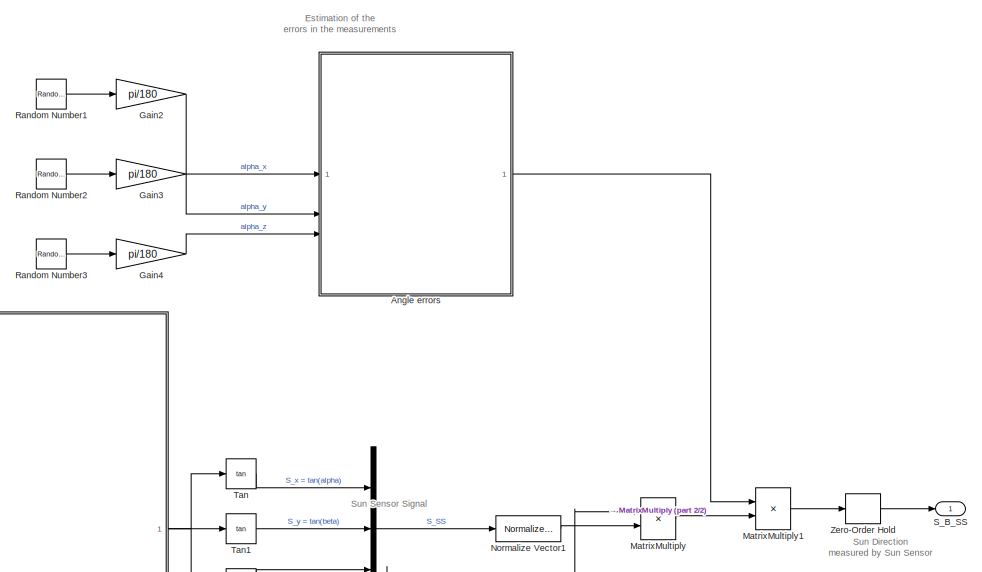
[diagram: Sensors/Sun Sensor - part 1/2, middle right region]
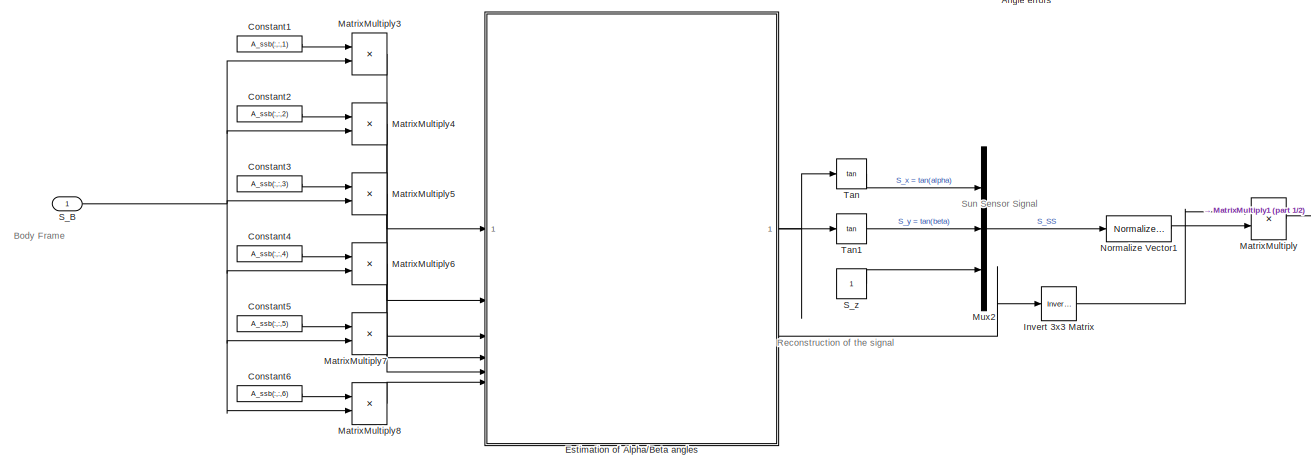
[diagram: Sensors/Sun Sensor - part 2/2, full width, bottom band]
BLOCK [SubSystem] Sensors/Sun Sensor
  PortSchema = {"entries":[{"content":{"sides":[{"content":{},"type":"ConnectorPlacement.EquallySpacedRectSide","uuid":"8c40b47c-c81f-4db9-9ecd-3bac70546829"},{"content":{"side":"RIGHT"},"type":"ConnectorPlacement.EquallySpacedRectSide","uuid":"47b5da33-6a3e-4432-914f-62c5c8f09690"},{"content":{"connectorIds":["In1"],"side":"TOP"},"type":"ConnectorPlacement.EquallySpacedRectSide","uuid":"b24e362e-8249-41df-bcdf-...<+349ch>
BLOCK [SubSystem] Sensors/Sun Sensor/Angle errors
BLOCK [Constant] Sensors/Sun Sensor/Angle errors/Constant1
  Value = [1 0 0; 0 1 0; 0 0 1]
BLOCK [Gain] Sensors/Sun Sensor/Angle errors/Gain5
  Gain = [0 0 0; 0 0 1; 0 -1 0]
BLOCK [Gain] Sensors/Sun Sensor/Angle errors/Gain6
  Gain = [0 0 -1; 0 0 0; 1 0 0]
BLOCK [Gain] Sensors/Sun Sensor/Angle errors/Gain7
  Gain = [0 1 0; -1 0 0; 0 0 0]
BLOCK [Sum] Sensors/Sun Sensor/Angle errors/Sum
  IconShape = rectangular
  Inputs = |++++
BLOCK [Outport] Sensors/Sun Sensor/Angle errors/alpha_err
BLOCK [Inport] Sensors/Sun Sensor/Angle errors/alpha_x
BLOCK [Inport] Sensors/Sun Sensor/Angle errors/alpha_y
  Port = 2
BLOCK [Inport] Sensors/Sun Sensor/Angle errors/alpha_z
  Port = 3
BLOCK [Constant] Sensors/Sun Sensor/Constant1
  Value = A_ssb(:,:,1)
  VectorParams1D = off
BLOCK [Constant] Sensors/Sun Sensor/Constant2
  Value = A_ssb(:,:,2)
BLOCK [Constant] Sensors/Sun Sensor/Constant3
  Value = A_ssb(:,:,3)
BLOCK [Constant] Sensors/Sun Sensor/Constant4
  Value = A_ssb(:,:,4)
BLOCK [Constant] Sensors/Sun Sensor/Constant5
  Value = A_ssb(:,:,5)
BLOCK [Constant] Sensors/Sun Sensor/Constant6
  Value = A_ssb(:,:,6)
BLOCK [SubSystem] Sensors/Sun Sensor/Estimation of Alpha//Beta angles
BLOCK [Outport] Sensors/Sun Sensor/Estimation of Alpha//Beta angles/A_SS//B
  Port = 3
BLOCK [Abs] Sensors/Sun Sensor/Estimation of Alpha//Beta angles/Abs
  SaturateOnIntegerOverflow = off
BLOCK [Abs] Sensors/Sun Sensor/Estimation of Alpha//Beta angles/Abs1
  SaturateOnIntegerOverflow = off
BLOCK [Abs] Sensors/Sun Sensor/Estimation of Alpha//Beta angles/Abs10
  SaturateOnIntegerOverflow = off
BLOCK [Abs] Sensors/Sun Sensor/Estimation of Alpha//Beta angles/Abs11
  SaturateOnIntegerOverflow = off
BLOCK [Abs] Sensors/Sun Sensor/Estimation of Alpha//Beta angles/Abs2
  SaturateOnIntegerOverflow = off
BLOCK [Abs] Sensors/Sun Sensor/Estimation of Alpha//Beta angles/Abs3
  SaturateOnIntegerOverflow = off
BLOCK [Abs] Sensors/Sun Sensor/Estimation of Alpha//Beta angles/Abs4
  SaturateOnIntegerOverflow = off
BLOCK [Abs] Sensors/Sun Sensor/Estimation of Alpha//Beta angles/Abs5
  SaturateOnIntegerOverflow = off
BLOCK [Abs] Sensors/Sun Sensor/Estimation of Alpha//Beta angles/Abs6
  SaturateOnIntegerOverflow = off
BLOCK [Abs] Sensors/Sun Sensor/Estimation of Alpha//Beta angles/Abs7
  SaturateOnIntegerOverflow = off
BLOCK [Abs] Sensors/Sun Sensor/Estimation of Alpha//Beta angles/Abs8
  SaturateOnIntegerOverflow = off
BLOCK [Abs] Sensors/Sun Sensor/Estimation of Alpha//Beta angles/Abs9
  SaturateOnIntegerOverflow = off
BLOCK [Outport] Sensors/Sun Sensor/Estimation of Alpha//Beta angles/Alpha (min)
BLOCK [Outport] Sensors/Sun Sensor/Estimation of Alpha//Beta angles/Beta (min)
  Port = 2
BLOCK [Constant] Sensors/Sun Sensor/Estimation of Alpha//Beta angles/Constant7
  Value = A_ssb
BLOCK [SubSystem] Sensors/Sun Sensor/Estimation of Alpha//Beta angles/Function to minimize the Alpha//Beta angles
  ErrorFcn = Stateflow.Translate.translate
  PermitHierarchicalResolution = ExplicitOnly
  SFBlockType = MATLAB Function
  TreatAsAtomicUnit = on
BLOCK [Demux] Sensors/Sun Sensor/Estimation of Alpha//Beta angles/Function to minimize the Alpha//Beta angles/ Demux 
  Outputs = 1
BLOCK [S-Function] Sensors/Sun Sensor/Estimation of Alpha//Beta angles/Function to minimize the Alpha//Beta angles/ SFunction 
  EnableBusSupport = on
  FunctionName = sf_sfun
  PortCounts = [3 4]
  SFcnIsStateOwnerBlock = off
  SFunctionDeploymentMode = off
  Tag = Stateflow S-Function 8
BLOCK [Terminator] Sensors/Sun Sensor/Estimation of Alpha//Beta angles/Function to minimize the Alpha//Beta angles/ Terminator 
BLOCK [Outport] Sensors/Sun Sensor/Estimation of Alpha//Beta angles/Function to minimize the Alpha//Beta angles/A
  Port = 3
BLOCK [Inport] Sensors/Sun Sensor/Estimation of Alpha//Beta angles/Function to minimize the Alpha//Beta angles/Amat
  Port = 3
BLOCK [Inport] Sensors/Sun Sensor/Estimation of Alpha//Beta angles/Function to minimize the Alpha//Beta angles/alpha
BLOCK [Outport] Sensors/Sun Sensor/Estimation of Alpha//Beta angles/Function to minimize the Alpha//Beta angles/alphamin
BLOCK [Inport] Sensors/Sun Sensor/Estimation of Alpha//Beta angles/Function to minimize the Alpha//Beta angles/beta
  Port = 2
BLOCK [Outport] Sensors/Sun Sensor/Estimation of Alpha//Beta angles/Function to minimize the Alpha//Beta angles/betamin
  Port = 2
BLOCK [Inport] Sensors/Sun Sensor/Estimation of Alpha//Beta angles/In1
BLOCK [Inport] Sensors/Sun Sensor/Estimation of Alpha//Beta angles/In2
  Port = 2
BLOCK [Inport] Sensors/Sun Sensor/Estimation of Alpha//Beta angles/In3
  Port = 3
BLOCK [Inport] Sensors/Sun Sensor/Estimation of Alpha//Beta angles/In4
  Port = 4
BLOCK [Inport] Sensors/Sun Sensor/Estimation of Alpha//Beta angles/In5
  Port = 5
BLOCK [Inport] Sensors/Sun Sensor/Estimation of Alpha//Beta angles/In6
  Port = 6
BLOCK [Mux] Sensors/Sun Sensor/Estimation of Alpha//Beta angles/Mux
  DisplayOption = bar
  Inputs = 6
BLOCK [Mux] Sensors/Sun Sensor/Estimation of Alpha//Beta angles/Mux1
  DisplayOption = bar
  Inputs = 6
BLOCK [Constant] Sensors/Sun Sensor/Estimation of Alpha//Beta angles/NaN
  NameLocation = left
  OutDataTypeStr = Inherit: Inherit via back propagation
  Value = NaN
BLOCK [SubSystem] Sensors/Sun Sensor/Estimation of Alpha//Beta angles/Subsystem
BLOCK [Trigonometry] Sensors/Sun Sensor/Estimation of Alpha//Beta angles/Subsystem/Atan1
  Operator = atan2
BLOCK [Trigonometry] Sensors/Sun Sensor/Estimation of Alpha//Beta angles/Subsystem/Atan2
  Operator = atan2
BLOCK [Demux] Sensors/Sun Sensor/Estimation of Alpha//Beta angles/Subsystem/Demux
  Outputs = 3
BLOCK [Inport] Sensors/Sun Sensor/Estimation of Alpha//Beta angles/Subsystem/In1
BLOCK [Outport] Sensors/Sun Sensor/Estimation of Alpha//Beta angles/Subsystem/Out1
BLOCK [Outport] Sensors/Sun Sensor/Estimation of Alpha//Beta angles/Subsystem/Out2
  Port = 2
BLOCK [SubSystem] Sensors/Sun Sensor/Estimation of Alpha//Beta angles/Subsystem1
BLOCK [Trigonometry] Sensors/Sun Sensor/Estimation of Alpha//Beta angles/Subsystem1/Atan1
  Operator = atan2
BLOCK [Trigonometry] Sensors/Sun Sensor/Estimation of Alpha//Beta angles/Subsystem1/Atan2
  Operator = atan2
BLOCK [Demux] Sensors/Sun Sensor/Estimation of Alpha//Beta angles/Subsystem1/Demux
  Outputs = 3
BLOCK [Inport] Sensors/Sun Sensor/Estimation of Alpha//Beta angles/Subsystem1/In1
BLOCK [Outport] Sensors/Sun Sensor/Estimation of Alpha//Beta angles/Subsystem1/Out1
BLOCK [Outport] Sensors/Sun Sensor/Estimation of Alpha//Beta angles/Subsystem1/Out2
  Port = 2
BLOCK [SubSystem] Sensors/Sun Sensor/Estimation of Alpha//Beta angles/Subsystem2
BLOCK [Trigonometry] Sensors/Sun Sensor/Estimation of Alpha//Beta angles/Subsystem2/Atan1
  Operator = atan2
BLOCK [Trigonometry] Sensors/Sun Sensor/Estimation of Alpha//Beta angles/Subsystem2/Atan2
  Operator = atan2
BLOCK [Demux] Sensors/Sun Sensor/Estimation of Alpha//Beta angles/Subsystem2/Demux
  Outputs = 3
BLOCK [Inport] Sensors/Sun Sensor/Estimation of Alpha//Beta angles/Subsystem2/In1
BLOCK [Outport] Sensors/Sun Sensor/Estimation of Alpha//Beta angles/Subsystem2/Out1
BLOCK [Outport] Sensors/Sun Sensor/Estimation of Alpha//Beta angles/Subsystem2/Out2
  Port = 2
BLOCK [SubSystem] Sensors/Sun Sensor/Estimation of Alpha//Beta angles/Subsystem3
BLOCK [Trigonometry] Sensors/Sun Sensor/Estimation of Alpha//Beta angles/Subsystem3/Atan1
  Operator = atan2
BLOCK [Trigonometry] Sensors/Sun Sensor/Estimation of Alpha//Beta angles/Subsystem3/Atan2
  Operator = atan2
BLOCK [Demux] Sensors/Sun Sensor/Estimation of Alpha//Beta angles/Subsystem3/Demux
  Outputs = 3
BLOCK [Inport] Sensors/Sun Sensor/Estimation of Alpha//Beta angles/Subsystem3/In1
BLOCK [Outport] Sensors/Sun Sensor/Estimation of Alpha//Beta angles/Subsystem3/Out1
BLOCK [Outport] Sensors/Sun Sensor/Estimation of Alpha//Beta angles/Subsystem3/Out2
  Port = 2
BLOCK [SubSystem] Sensors/Sun Sensor/Estimation of Alpha//Beta angles/Subsystem4
BLOCK [Trigonometry] Sensors/Sun Sensor/Estimation of Alpha//Beta angles/Subsystem4/Atan1
  Operator = atan2
BLOCK [Trigonometry] Sensors/Sun Sensor/Estimation of Alpha//Beta angles/Subsystem4/Atan2
  Operator = atan2
BLOCK [Demux] Sensors/Sun Sensor/Estimation of Alpha//Beta angles/Subsystem4/Demux
  Outputs = 3
BLOCK [Inport] Sensors/Sun Sensor/Estimation of Alpha//Beta angles/Subsystem4/In1
BLOCK [Outport] Sensors/Sun Sensor/Estimation of Alpha//Beta angles/Subsystem4/Out1
BLOCK [Outport] Sensors/Sun Sensor/Estimation of Alpha//Beta angles/Subsystem4/Out2
  Port = 2
BLOCK [SubSystem] Sensors/Sun Sensor/Estimation of Alpha//Beta angles/Subsystem5
BLOCK [Trigonometry] Sensors/Sun Sensor/Estimation of Alpha//Beta angles/Subsystem5/Atan1
  Operator = atan2
BLOCK [Trigonometry] Sensors/Sun Sensor/Estimation of Alpha//Beta angles/Subsystem5/Atan2
  Operator = atan2
BLOCK [Demux] Sensors/Sun Sensor/Estimation of Alpha//Beta angles/Subsystem5/Demux
  Outputs = 3
BLOCK [Inport] Sensors/Sun Sensor/Estimation of Alpha//Beta angles/Subsystem5/In1
BLOCK [Outport] Sensors/Sun Sensor/Estimation of Alpha//Beta angles/Subsystem5/Out1
BLOCK [Outport] Sensors/Sun Sensor/Estimation of Alpha//Beta angles/Subsystem5/Out2
  Port = 2
BLOCK [Switch] Sensors/Sun Sensor/Estimation of Alpha//Beta angles/Switch
  Criteria = u2 > Threshold
  InputSameDT = off
  SaturateOnIntegerOverflow = off
  Threshold = FOV/2
BLOCK [Switch] Sensors/Sun Sensor/Estimation of Alpha//Beta angles/Switch1
  Criteria = u2 > Threshold
  InputSameDT = off
  SaturateOnIntegerOverflow = off
  Threshold = FOV/2
BLOCK [Switch] Sensors/Sun Sensor/Estimation of Alpha//Beta angles/Switch10
  Criteria = u2 > Threshold
  InputSameDT = off
  SaturateOnIntegerOverflow = off
  Threshold = FOV/2
BLOCK [Switch] Sensors/Sun Sensor/Estimation of Alpha//Beta angles/Switch11
  Criteria = u2 > Threshold
  InputSameDT = off
  SaturateOnIntegerOverflow = off
  Threshold = FOV/2
BLOCK [Switch] Sensors/Sun Sensor/Estimation of Alpha//Beta angles/Switch2
  Criteria = u2 > Threshold
  InputSameDT = off
  SaturateOnIntegerOverflow = off
  Threshold = FOV/2
BLOCK [Switch] Sensors/Sun Sensor/Estimation of Alpha//Beta angles/Switch3
  Criteria = u2 > Threshold
  InputSameDT = off
  SaturateOnIntegerOverflow = off
  Threshold = FOV/2
BLOCK [Switch] Sensors/Sun Sensor/Estimation of Alpha//Beta angles/Switch4
  Criteria = u2 > Threshold
  InputSameDT = off
  SaturateOnIntegerOverflow = off
  Threshold = FOV/2
BLOCK [Switch] Sensors/Sun Sensor/Estimation of Alpha//Beta angles/Switch5
  Criteria = u2 > Threshold
  InputSameDT = off
  SaturateOnIntegerOverflow = off
  Threshold = FOV/2
BLOCK [Switch] Sensors/Sun Sensor/Estimation of Alpha//Beta angles/Switch6
  Criteria = u2 > Threshold
  InputSameDT = off
  SaturateOnIntegerOverflow = off
  Threshold = FOV/2
BLOCK [Switch] Sensors/Sun Sensor/Estimation of Alpha//Beta angles/Switch7
  Criteria = u2 > Threshold
  InputSameDT = off
  SaturateOnIntegerOverflow = off
  Threshold = FOV/2
BLOCK [Switch] Sensors/Sun Sensor/Estimation of Alpha//Beta angles/Switch8
  Criteria = u2 > Threshold
  InputSameDT = off
  SaturateOnIntegerOverflow = off
  Threshold = FOV/2
BLOCK [Switch] Sensors/Sun Sensor/Estimation of Alpha//Beta angles/Switch9
  Criteria = u2 > Threshold
  InputSameDT = off
  SaturateOnIntegerOverflow = off
  Threshold = FOV/2
BLOCK [Gain] Sensors/Sun Sensor/Gain2
  Gain = pi/180
BLOCK [Gain] Sensors/Sun Sensor/Gain3
  Gain = pi/180
BLOCK [Gain] Sensors/Sun Sensor/Gain4
  Gain = pi/180
BLOCK [Reference] Sensors/Sun Sensor/Invert 3x3 Matrix  REF=aerolibutil/Invert 
3x3 Matrix
  SourceBlock = aerolibutil/Invert \n3x3 Matrix
  SourceType = Invert 3x3 Matrix
BLOCK [Product] Sensors/Sun Sensor/MatrixMultiply
  Multiplication = Matrix(*)
BLOCK [Product] Sensors/Sun Sensor/MatrixMultiply1
  Multiplication = Matrix(*)
BLOCK [Product] Sensors/Sun Sensor/MatrixMultiply3
  Multiplication = Matrix(*)
BLOCK [Product] Sensors/Sun Sensor/MatrixMultiply4
  Multiplication = Matrix(*)
BLOCK [Product] Sensors/Sun Sensor/MatrixMultiply5
  Multiplication = Matrix(*)
BLOCK [Product] Sensors/Sun Sensor/MatrixMultiply6
  Multiplication = Matrix(*)
BLOCK [Product] Sensors/Sun Sensor/MatrixMultiply7
  Multiplication = Matrix(*)
BLOCK [Product] Sensors/Sun Sensor/MatrixMultiply8
  Multiplication = Matrix(*)
BLOCK [Mux] Sensors/Sun Sensor/Mux2
  DisplayOption = bar
  Inputs = 3
BLOCK [Reference] Sensors/Sun Sensor/Normalize Vector1  REF=vrlib/Utilities/Normalize Vector
  SourceBlock = vrlib/Utilities/Normalize Vector
  SourceType = Normalize Vector
BLOCK [RandomNumber] Sensors/Sun Sensor/Random Number1
  SampleTime = Tsample
  Variance = sensors.SS.accuracy^2
BLOCK [RandomNumber] Sensors/Sun Sensor/Random Number2
  SampleTime = Tsample
  Variance = sensors.SS.accuracy^2
BLOCK [RandomNumber] Sensors/Sun Sensor/Random Number3
  SampleTime = Tsample
  Variance = sensors.SS.accuracy^2
BLOCK [Inport] Sensors/Sun Sensor/S_B
BLOCK [Outport] Sensors/Sun Sensor/S_B_SS
BLOCK [Constant] Sensors/Sun Sensor/S_z
BLOCK [Trigonometry] Sensors/Sun Sensor/Tan
  Operator = tan
BLOCK [Trigonometry] Sensors/Sun Sensor/Tan1
  Operator = tan
BLOCK [ZeroOrderHold] Sensors/Sun Sensor/Zero-Order Hold
  SampleTime = Tsample
BLOCK [ToWorkspace] Sensors/To Workspace
  FixptAsFi = on
  MaxDataPoints = inf
  SampleTime = -1
  VariableName = w_measured
BLOCK [ToWorkspace] Sensors/To Workspace1
  FixptAsFi = on
  MaxDataPoints = inf
  SampleTime = -1
  VariableName = S_B_meas
BLOCK [ToWorkspace] Sensors/To Workspace2
  FixptAsFi = on
  MaxDataPoints = inf
  SampleTime = -1
  VariableName = B_B_meas
BLOCK [Inport] Sensors/w_BN
  Port = 3
BLOCK [Outport] Sensors/w_GYRO
  Port = 3
BLOCK [SubSystem] Subsystem
BLOCK [Demux] Subsystem/Demux
  Outputs = 3
BLOCK [Inport] Subsystem/MC
BLOCK [Mux] Subsystem/Mux
  DisplayOption = bar
  Inputs = 3
BLOCK [Outport] Subsystem/Out1
BLOCK [SubSystem] Subsystem1
  NameLocation = right
  PortSchema = {"entries":[{"content":{"sides":[{"content":{},"type":"ConnectorPlacement.EquallySpacedRectSide","uuid":"79d52842-7462-4863-bae2-aaedde0a1e4a"},{"content":{"connectorIds":["Out1"],"side":"RIGHT"},"type":"ConnectorPlacement.EquallySpacedRectSide","uuid":"6db4fd27-b070-41dc-87e0-3dbfd9c74019"},{"content":{"side":"TOP"},"type":"ConnectorPlacement.EquallySpacedRectSide","uuid":"0b737283-1eca-4b40-8e8f...<+349ch>
BLOCK [Demux] Subsystem1/Demux
  Outputs = 3
BLOCK [Inport] Subsystem1/MC
BLOCK [Mux] Subsystem1/Mux
  DisplayOption = bar
  Inputs = 3
BLOCK [Outport] Subsystem1/Out1
BLOCK [Sum] Sum
  IconShape = rectangular
  Inputs = |++
BLOCK [ToWorkspace] To Workspace2
  FixptAsFi = on
  MaxDataPoints = inf
  SampleTime = -1
  VariableName = MC2
BLOCK [ToWorkspace] To Workspace3
  FixptAsFi = on
  MaxDataPoints = inf
  NameLocation = top
  SampleTime = -1
  VariableName = MCreq
ANNOTATION (root): generates the environment
ANNOTATION (root): Time
ANNOTATION (root): From Dynamics
ANNOTATION (root): From Kinematics
ANNOTATION (root): From Environment
ANNOTATION (root): From Magnetic Torque
ANNOTATION (root): Magnetic Field in Inertial Frame (From Magnetic Torque)
ANNOTATION (root): Sun Inertial Direction
ANNOTATION (root): ENVIRONMENT
ANNOTATION Actuators: Reaction Wheels
ANNOTATION Attitude Determination: YES (isNaN = true)
ANNOTATION Attitude Determination/Enabled Subsystem: Estimated Quaternion
ANNOTATION Attitude Determination/Enabled Subsystem/Kinematics: Estimated Quaternion
ANNOTATION Attitude Determination/Enabled Subsystem/Kinematics/Quaternion: Normalized Quaternion
ANNOTATION Attitude Determination/Enabled Subsystem/Kinematics/Quaternion/Omega Matrix: Angular Velocity Components
ANNOTATION Attitude Determination/Enabled Subsystem1: S_B_Estim
ANNOTATION Attitude Determination/Out of FOV check: If at least one component is NaN, the Sun is not in the FOV
ANNOTATION Control Logic: From Gyroscopes
ANNOTATION Control Logic: From Actuators
ANNOTATION Control Logic: From Attitude Determination
ANNOTATION Control Logic/Control Block: Global Pointing Error
ANNOTATION Control Logic/Control Block: Control Algorithms
ANNOTATION Control Logic/Control Block: Mission Phase Decision
ANNOTATION Control Logic/Control Block/Detumbling: Proportional coefficient of Detumbling Controller
ANNOTATION Control Logic/Control Block/Detumbling: $\vec{M}_{detumbling} = - k_{d} \ (\vec{\omega} - \vec{\omega}_{d})$
ANNOTATION Control Logic/Control Block/Detumbling: Proportional control
ANNOTATION Control Logic/Control Block/Detumbling/Pointing Error for Detumbling: q_pointing_error quaternion describing the Pointing Error
ANNOTATION Control Logic/Control Block/Detumbling/Rotation of w_DET: Quaternion Rotation (Double Tensor Product)
ANNOTATION Control Logic/Control Block/Detumbling/Rotation of w_DET/Transformation in Quaternion: Adding 0 as fourth element to match the Quaternion's dimension
ANNOTATION Control Logic/Control Block/Slew Maneuvre/Pointing Error for Slew Maneuvre: q_pointing_error quaternion describing the Pointing Error
ANNOTATION Control Logic/Control Block/Slew Maneuvre/Rotation of w_SM: Quaternion Rotation (Double Tensor Product)
ANNOTATION Control Logic/Control Block/Slew Maneuvre/Rotation of w_SM/Transformation in Quaternion: Adding 0 as fourth element to match the Quaternion's dimension
ANNOTATION Control Logic/Control Block/Trajectory Tracking/Conversion from quaternions to DCM: Matrix I
ANNOTATION Control Logic/Control Block/Trajectory Tracking/Conversion from quaternions to DCM: q*q^t
ANNOTATION Control Logic/Control Block/Trajectory Tracking/Conversion from quaternions to DCM: q^t
ANNOTATION Control Logic/Control Block/Trajectory Tracking/Conversion from quaternions to DCM: q^tq
ANNOTATION Control Logic/Control Block/Trajectory Tracking/Pointing Error for Trajectory Tracking: q_pointing_error quaternion describing the Pointing Error
ANNOTATION Control Logic/State Observer: Observer on q
ANNOTATION Control Logic/State Observer: Observer on w
ANNOTATION Disturbing Torques: Total Disturbing Torque acting on the spacecraft
ANNOTATION Disturbing Torques: Solar Radiation Intensity
ANNOTATION Disturbing Torques/Gravity Gradient Torque: Torque due to Gravity Gradient
ANNOTATION Disturbing Torques/Gravity Gradient Torque: c1,c2,c3
ANNOTATION Disturbing Torques/Gravity Gradient Torque: c1c3
ANNOTATION Disturbing Torques/Gravity Gradient Torque: c2c1
ANNOTATION Disturbing Torques/Gravity Gradient Torque: c2c3
ANNOTATION Disturbing Torques/Gravity Gradient Torque/Rotation of vector [1 0 0]: Quaternion Rotation (Double Tensor Product)
ANNOTATION Disturbing Torques/Gravity Gradient Torque/Rotation of vector [1 0 0]/Transformation in Quaternion: Adding 0 as fourth element to match the Quaternion's dimensions
ANNOTATION Disturbing Torques/Magnetic Torque: Magnetic Field in Body Frame
ANNOTATION Disturbing Torques/Magnetic Torque: Magnetic Field in Inertial Frame
ANNOTATION Disturbing Torques/Magnetic Torque: Torque due to Magnetic Field
ANNOTATION Disturbing Torques/Magnetic Torque: Earth Angular Velocity
ANNOTATION Disturbing Torques/Magnetic Torque/Rotation from Inertial to Body Frame: $\vec{B_B} = q_{BN}'\otimes [\vec{B_N};0]\otimes q_{BN}$
ANNOTATION Disturbing Torques/Magnetic Torque/Rotation from Inertial to Body Frame: Quaternion Rotation (Double Tensor Product)
ANNOTATION Disturbing Torques/Magnetic Torque/Rotation from Inertial to Body Frame/Transformation in Quaternion: Adding 0 as fourth element to match the Quaternion's dimensions
ANNOTATION Dynamics: Total Disturbing Torque+Control acting on the spacecraft
ANNOTATION Dynamics: Angular velocity ( Body Frame )
ANNOTATION Dynamics: w
ANNOTATION Kinematics: (Body Frame Quaternion)
ANNOTATION Kinematics/Quaternions: Normalised quaternion
ANNOTATION Kinematics/Quaternions/OMEGA Matrix: Angular velocity components
ANNOTATION Orbital Mechanics and Attitude Error : r ( Body Frame )
ANNOTATION Orbital Mechanics and Attitude Error : Sun Direction ( Body Frame )
ANNOTATION Orbital Mechanics and Attitude Error : r_N = r ( Inertial Frame )
ANNOTATION Orbital Mechanics and Attitude Error : Two-Body Keplerian Dynamics
ANNOTATION Orbital Mechanics and Attitude Error / Rotation from Inertial to Body Frame: $\vec{r_B} = q_{BN}'\otimes [\vec{r_N};0]\otimes q_{BN}$
ANNOTATION Orbital Mechanics and Attitude Error / Rotation from Inertial to Body Frame: Quaternion Rotation (Double Tensor Product)
ANNOTATION Orbital Mechanics and Attitude Error / Rotation from Inertial to Body Frame/Transformation in Quaternion: Adding 0 as fourth element to match the Quaternion's dimensions
ANNOTATION Orbital Mechanics and Attitude Error /Attitude Error: Reference moving attitude (Angular Velocity)
ANNOTATION Orbital Mechanics and Attitude Error /Attitude Error: Angular Velocity Error
ANNOTATION Orbital Mechanics and Attitude Error /Attitude Error: Attitude Error
ANNOTATION Orbital Mechanics and Attitude Error /Attitude Error: Reference moving attitude (Quaternion)
ANNOTATION Orbital Mechanics and Attitude Error /Attitude Error/Computation of q_BL: Components of q_LN
ANNOTATION Orbital Mechanics and Attitude Error /Attitude Error/Computation of q_BL: Tensor product to compute the error
ANNOTATION Orbital Mechanics and Attitude Error /Attitude Error/Computation of q_BL: $q_{BL} = q_{LN}'\otimes q_{BN}$
ANNOTATION Orbital Mechanics and Attitude Error /Attitude Error/Rotation of w_LN: Quaternion Rotation (Double Tensor Product)
ANNOTATION Orbital Mechanics and Attitude Error /Attitude Error/Rotation of w_LN/Transformation in Quaternion: Adding 0 as fourth element to match the Quaternion's dimension
ANNOTATION Orbital Mechanics and Attitude Error /Attitude Error/q_LN: Computation of q_LN according to orbital parameters
ANNOTATION Orbital Mechanics and Attitude Error /Attitude Error/q_LN: Quaternion Rotation (Double Tensor Product)
ANNOTATION Orbital Mechanics and Attitude Error /Computation of r (vector): Perifocal Frame
ANNOTATION Orbital Mechanics and Attitude Error /Computation of r (vector): r (Perifocal Frame)
ANNOTATION Orbital Mechanics and Attitude Error /Computation of r (vector)/Rotation (R313') from Perifocal to ECI: $R_{313}(\Omega,i,\omega) = R_3(\omega) R_1(i)R_3(\Omega)$
ANNOTATION Orbital Mechanics and Attitude Error /Rotation from Inertial to Body Frame: $\vec{S_B} = q_{BN}'\otimes [\vec{S_N};0]\otimes q_{BN}$
ANNOTATION Orbital Mechanics and Attitude Error /Rotation from Inertial to Body Frame: Quaternion Rotation (Double Tensor Product)
ANNOTATION Orbital Mechanics and Attitude Error /Rotation from Inertial to Body Frame/Transformation in Quaternion: Adding 0 as fourth element to match the Quaternion's dimensions
ANNOTATION Orbital Mechanics and Attitude Error /Theta angle: Computation of theta angle from orbital parameters a: Semi-major axis e: Eccentricity i: Inclination n: Average rotational rate of the orbit
ANNOTATION Orbital Mechanics and Attitude Error /Theta angle: $\dot{\theta} = \frac{n(1+ecos\theta)^2}{(1-e^2)^{3/2}}$
ANNOTATION Orbital Mechanics and Attitude Error /r (Magnitude): Computation of radius r from orbital parameters a: Semi-major axis e: Eccentricity i: Inclination n: Average rotational rate of the orbit
ANNOTATION Orbital Mechanics and Attitude Error /r (Magnitude): $r = \frac{a(1-e^2)}{1+ecos\theta}$
ANNOTATION Sensors/Gyroscopes: Angular Velocity measured by Gyroscopes
ANNOTATION Sensors/Gyroscopes/Misalignment Error: Components
ANNOTATION Sensors/Magnetometer: Magnetic Field in Body Frame (True value)
ANNOTATION Sensors/Magnetometer: Magnetic Field measured by Magnemeter
ANNOTATION Sensors/Magnetometer: Errors in the Measurements
ANNOTATION Sensors/Magnetometer/Non-Orthogonality Error: Components
ANNOTATION Sensors/Sun Sensor: Sun Direction measured by Sun Sensor
ANNOTATION Sensors/Sun Sensor: Estimation of the errors in the measurements
ANNOTATION Sensors/Sun Sensor: Sun Sensor Signal
ANNOTATION Sensors/Sun Sensor: Reconstruction of the signal
ANNOTATION Sensors/Sun Sensor: Body Frame
ANNOTATION Sensors/Sun Sensor/Estimation of Alpha//Beta angles: FOV CHECK
LINE Actuators/Constant10:1 -> Actuators/MATLAB Function:6
LINE Actuators/Constant8:1 -> Actuators/MATLAB Function:2
LINE Actuators/Constant9:1 -> Actuators/MATLAB Function:4
LINE Actuators/Constant:1 -> Actuators/Product:1
LINE Actuators/Cross Product1:1 -> Actuators/Gain4:1
LINE Actuators/Cross Product:1 -> Actuators/Sum1:1
LINE Actuators/Delay1:1 -> Actuators/Product:2
LINE Actuators/Delay:1 -> Actuators/Sum:1
NET Actuators/Gain1:1 -> Actuators/Gain2:1, Actuators/Gain3:1
LINE Actuators/Gain2:1 -> Actuators/Integrator:1
LINE Actuators/Gain3:1 -> Actuators/Sum2:1
LINE Actuators/Gain4:1 -> Actuators/Sum2:2
LINE Actuators/Gain5:1 -> Actuators/Cross Product1:2
LINE Actuators/Gain:1 -> Actuators/Cross Product:2
NET Actuators/Integrator:1 -> Actuators/Delay1:1, Actuators/MATLAB Function:3
LINE Actuators/MATLAB Function:1 -> Actuators/Delay:1
LINE Actuators/MC_Req:1 -> Actuators/Rate Limiter:1
LINE Actuators/Null intial condition on RWs:1 -> Actuators/Integrator:2
NET Actuators/Product:1 -> Actuators/Gain5:1, Actuators/Gain:1, Actuators/MATLAB Function:5
LINE Actuators/Rate Limiter:1 -> Actuators/Sum:2
LINE Actuators/Sum1:1 -> Actuators/Gain1:1
NET Actuators/Sum2:1 -> Actuators/MATLAB Function:1, Actuators/MC:1
LINE Actuators/Sum:1 -> Actuators/Sum1:2
NET Actuators/w_GYRO:1 -> Actuators/Cross Product1:1, Actuators/Cross Product:1
NET Actuators:1 -> Control Logic:2, Subsystem:1, Sum:2
LINE Attitude Determination/B_B_MM:1 -> Attitude Determination/Enabled Subsystem1:4
LINE Attitude Determination/B_N:1 -> Attitude Determination/Enabled Subsystem1:3
NET Attitude Determination/Delay:1 -> Attitude Determination/Enabled Subsystem:2, Attitude Determination/To Workspace:1
LINE Attitude Determination/Enabled Subsystem/Kinematics/Quaternion Normalization/Divide:1 -> Attitude Determination/Enabled Subsystem/Kinematics/Quaternion Normalization/q_BN:1
LINE Attitude Determination/Enabled Subsystem/Kinematics/Quaternion Normalization/Dot Product:1 -> Attitude Determination/Enabled Subsystem/Kinematics/Quaternion Normalization/Sqrt:1
LINE Attitude Determination/Enabled Subsystem/Kinematics/Quaternion Normalization/Sqrt:1 -> Attitude Determination/Enabled Subsystem/Kinematics/Quaternion Normalization/Divide:2
NET Attitude Determination/Enabled Subsystem/Kinematics/Quaternion Normalization/q(t):1 -> Attitude Determination/Enabled Subsystem/Kinematics/Quaternion Normalization/Divide:1, Attitude Determination/Enabled Subsystem/Kinematics/Quaternion Normalization/Dot Product:1, Attitude Determination/Enabled Subsystem/Kinematics/Quaternion Normalization/Dot Product:2
NET Attitude Determination/Enabled Subsystem/Kinematics/Quaternion Normalization:1 -> Attitude Determination/Enabled Subsystem/Kinematics/Quaternion:3, Attitude Determination/Enabled Subsystem/Kinematics/q_est:1
NET Attitude Determination/Enabled Subsystem/Kinematics/Quaternion/Discrete-Time Integrator:1 -> Attitude Determination/Enabled Subsystem/Kinematics/Quaternion/To Workspace:1, Attitude Determination/Enabled Subsystem/Kinematics/Quaternion/q(t):1
LINE Attitude Determination/Enabled Subsystem/Kinematics/Quaternion/Gain:1 -> Attitude Determination/Enabled Subsystem/Kinematics/Quaternion/Matrix Multiply:1
LINE Attitude Determination/Enabled Subsystem/Kinematics/Quaternion/Matrix Multiply:1 -> Attitude Determination/Enabled Subsystem/Kinematics/Quaternion/Discrete-Time Integrator:1
LINE Attitude Determination/Enabled Subsystem/Kinematics/Quaternion/Omega Matrix/Demux:1 -> Attitude Determination/Enabled Subsystem/Kinematics/Quaternion/Omega Matrix/Gain1:1
LINE Attitude Determination/Enabled Subsystem/Kinematics/Quaternion/Omega Matrix/Demux:2 -> Attitude Determination/Enabled Subsystem/Kinematics/Quaternion/Omega Matrix/Gain2:1
LINE Attitude Determination/Enabled Subsystem/Kinematics/Quaternion/Omega Matrix/Demux:3 -> Attitude Determination/Enabled Subsystem/Kinematics/Quaternion/Omega Matrix/Gain3:1
LINE Attitude Determination/Enabled Subsystem/Kinematics/Quaternion/Omega Matrix/Gain1:1 -> Attitude Determination/Enabled Subsystem/Kinematics/Quaternion/Omega Matrix/Sum:1
LINE Attitude Determination/Enabled Subsystem/Kinematics/Quaternion/Omega Matrix/Gain2:1 -> Attitude Determination/Enabled Subsystem/Kinematics/Quaternion/Omega Matrix/Sum:2
LINE Attitude Determination/Enabled Subsystem/Kinematics/Quaternion/Omega Matrix/Gain3:1 -> Attitude Determination/Enabled Subsystem/Kinematics/Quaternion/Omega Matrix/Sum:3
LINE Attitude Determination/Enabled Subsystem/Kinematics/Quaternion/Omega Matrix/In1:1 -> Attitude Determination/Enabled Subsystem/Kinematics/Quaternion/Omega Matrix/Demux:1
LINE Attitude Determination/Enabled Subsystem/Kinematics/Quaternion/Omega Matrix/Sum:1 -> Attitude Determination/Enabled Subsystem/Kinematics/Quaternion/Omega Matrix/Out1:1
LINE Attitude Determination/Enabled Subsystem/Kinematics/Quaternion/Omega Matrix:1 -> Attitude Determination/Enabled Subsystem/Kinematics/Quaternion/Gain:1
LINE Attitude Determination/Enabled Subsystem/Kinematics/Quaternion/q_0:1 -> Attitude Determination/Enabled Subsystem/Kinematics/Quaternion/Discrete-Time Integrator:2
LINE Attitude Determination/Enabled Subsystem/Kinematics/Quaternion/q_BN:1 -> Attitude Determination/Enabled Subsystem/Kinematics/Quaternion/Matrix Multiply:2
LINE Attitude Determination/Enabled Subsystem/Kinematics/Quaternion/w:1 -> Attitude Determination/Enabled Subsystem/Kinematics/Quaternion/Omega Matrix:1
LINE Attitude Determination/Enabled Subsystem/Kinematics/Quaternion:1 -> Attitude Determination/Enabled Subsystem/Kinematics/Quaternion Normalization:1
LINE Attitude Determination/Enabled Subsystem/Kinematics/q_0:1 -> Attitude Determination/Enabled Subsystem/Kinematics/Quaternion:2
LINE Attitude Determination/Enabled Subsystem/Kinematics/w:1 -> Attitude Determination/Enabled Subsystem/Kinematics/Quaternion:1
NET Attitude Determination/Enabled Subsystem/Kinematics:1 -> Attitude Determination/Enabled Subsystem/Sign Determination:1, Attitude Determination/Enabled Subsystem/To Workspace:1
LINE Attitude Determination/Enabled Subsystem/Sign Determination/Function to determinate the correct sign of the estimated quaternion:1 -> Attitude Determination/Enabled Subsystem/Sign Determination/Subsystem:1
LINE Attitude Determination/Enabled Subsystem/Sign Determination/Subsystem/Demux:1 -> Attitude Determination/Enabled Subsystem/Sign Determination/Subsystem/Mux:1
LINE Attitude Determination/Enabled Subsystem/Sign Determination/Subsystem/Demux:2 -> Attitude Determination/Enabled Subsystem/Sign Determination/Subsystem/Mux:2
LINE Attitude Determination/Enabled Subsystem/Sign Determination/Subsystem/Demux:3 -> Attitude Determination/Enabled Subsystem/Sign Determination/Subsystem/Mux:3
LINE Attitude Determination/Enabled Subsystem/Sign Determination/Subsystem/Demux:4 -> Attitude Determination/Enabled Subsystem/Sign Determination/Subsystem/Mux:4
LINE Attitude Determination/Enabled Subsystem/Sign Determination/Subsystem/Mux:1 -> Attitude Determination/Enabled Subsystem/Sign Determination/Subsystem/Out1:1
LINE Attitude Determination/Enabled Subsystem/Sign Determination/Subsystem/q_est:1 -> Attitude Determination/Enabled Subsystem/Sign Determination/Subsystem/Demux:1
LINE Attitude Determination/Enabled Subsystem/Sign Determination/Subsystem:1 -> Attitude Determination/Enabled Subsystem/Sign Determination/q_est:1
LINE Attitude Determination/Enabled Subsystem/Sign Determination/q_BN:1 -> Attitude Determination/Enabled Subsystem/Sign Determination/Function to determinate the correct sign of the estimated quaternion:1
LINE Attitude Determination/Enabled Subsystem/Sign Determination/q_est :1 -> Attitude Determination/Enabled Subsystem/Sign Determination/Function to determinate the correct sign of the estimated quaternion:2
LINE Attitude Determination/Enabled Subsystem/Sign Determination:1 -> Attitude Determination/Enabled Subsystem/q_est:1
LINE Attitude Determination/Enabled Subsystem/q_0:1 -> Attitude Determination/Enabled Subsystem/Kinematics:2
LINE Attitude Determination/Enabled Subsystem/q_BN:1 -> Attitude Determination/Enabled Subsystem/Sign Determination:2
LINE Attitude Determination/Enabled Subsystem/w_GYRO:1 -> Attitude Determination/Enabled Subsystem/Kinematics:1
LINE Attitude Determination/Enabled Subsystem1/Attitude determination:1 -> Attitude Determination/Enabled Subsystem1/Sign determination:1
LINE Attitude Determination/Enabled Subsystem1/B_B_MM:1 -> Attitude Determination/Enabled Subsystem1/Attitude determination:6
LINE Attitude Determination/Enabled Subsystem1/B_N:1 -> Attitude Determination/Enabled Subsystem1/Attitude determination:5
LINE Attitude Determination/Enabled Subsystem1/Constant2:1 -> Attitude Determination/Enabled Subsystem1/Attitude determination:2
LINE Attitude Determination/Enabled Subsystem1/Constant:1 -> Attitude Determination/Enabled Subsystem1/Attitude determination:1
LINE Attitude Determination/Enabled Subsystem1/Normalize Vector1:1 -> Attitude Determination/Enabled Subsystem1/Attitude determination:3
LINE Attitude Determination/Enabled Subsystem1/S_B_SS:1 -> Attitude Determination/Enabled Subsystem1/Attitude determination:4
LINE Attitude Determination/Enabled Subsystem1/S_N:1 -> Attitude Determination/Enabled Subsystem1/Normalize Vector1:1
LINE Attitude Determination/Enabled Subsystem1/Sign determination/Function to determinate the correct sign of the estimated quaternion:1 -> Attitude Determination/Enabled Subsystem1/Sign determination/Subsystem:1
LINE Attitude Determination/Enabled Subsystem1/Sign determination/Subsystem/Demux:1 -> Attitude Determination/Enabled Subsystem1/Sign determination/Subsystem/Mux:1
LINE Attitude Determination/Enabled Subsystem1/Sign determination/Subsystem/Demux:2 -> Attitude Determination/Enabled Subsystem1/Sign determination/Subsystem/Mux:2
LINE Attitude Determination/Enabled Subsystem1/Sign determination/Subsystem/Demux:3 -> Attitude Determination/Enabled Subsystem1/Sign determination/Subsystem/Mux:3
LINE Attitude Determination/Enabled Subsystem1/Sign determination/Subsystem/Demux:4 -> Attitude Determination/Enabled Subsystem1/Sign determination/Subsystem/Mux:4
LINE Attitude Determination/Enabled Subsystem1/Sign determination/Subsystem/Mux:1 -> Attitude Determination/Enabled Subsystem1/Sign determination/Subsystem/Out1:1
LINE Attitude Determination/Enabled Subsystem1/Sign determination/Subsystem/q_est:1 -> Attitude Determination/Enabled Subsystem1/Sign determination/Subsystem/Demux:1
LINE Attitude Determination/Enabled Subsystem1/Sign determination/Subsystem:1 -> Attitude Determination/Enabled Subsystem1/Sign determination/q_0:1
LINE Attitude Determination/Enabled Subsystem1/Sign determination/q_BN:1 -> Attitude Determination/Enabled Subsystem1/Sign determination/Function to determinate the correct sign of the estimated quaternion:1
NET Attitude Determination/Enabled Subsystem1/Sign determination/q_est :1 -> Attitude Determination/Enabled Subsystem1/Sign determination/Function to determinate the correct sign of the estimated quaternion:2, Attitude Determination/Enabled Subsystem1/Sign determination/To Workspace:1
LINE Attitude Determination/Enabled Subsystem1/Sign determination:1 -> Attitude Determination/Enabled Subsystem1/q_est:1
LINE Attitude Determination/Enabled Subsystem1/q_BN:1 -> Attitude Determination/Enabled Subsystem1/Sign determination:2
LINE Attitude Determination/Enabled Subsystem1:1 -> Attitude Determination/Merge1:2
LINE Attitude Determination/Enabled Subsystem:1 -> Attitude Determination/Merge1:1
NET Attitude Determination/Merge1:1 -> Attitude Determination/Delay:1, Attitude Determination/To Workspace9:1, Attitude Determination/q_Est:1
LINE Attitude Determination/NOT (Change of condition):1 -> Attitude Determination/Enabled Subsystem1:enable
LINE Attitude Determination/Out of FOV check/Demux:1 -> Attitude Determination/Out of FOV check/IsNaN:1
LINE Attitude Determination/Out of FOV check/IsNaN:1 -> Attitude Determination/Out of FOV check/Out1:1
LINE Attitude Determination/Out of FOV check/S_B_SS:1 -> Attitude Determination/Out of FOV check/Demux:1
NET Attitude Determination/Out of FOV check:1 -> Attitude Determination/Enabled Subsystem:enable, Attitude Determination/NOT (Change of condition):1
NET Attitude Determination/S_B_SS:1 -> Attitude Determination/Enabled Subsystem1:5, Attitude Determination/Out of FOV check:1
LINE Attitude Determination/S_N:1 -> Attitude Determination/Enabled Subsystem1:2
NET Attitude Determination/q_BN:1 -> Attitude Determination/Enabled Subsystem1:1, Attitude Determination/Enabled Subsystem:3
LINE Attitude Determination/w_GYRO:1 -> Attitude Determination/Enabled Subsystem:1
LINE Attitude Determination:1 -> Control Logic:1
LINE Control Logic/Control Block/Clock:1 -> Control Logic/Control Block/If:1
LINE Control Logic/Control Block/Constant1:1 -> Control Logic/Control Block/If:3
LINE Control Logic/Control Block/Constant:1 -> Control Logic/Control Block/If:2
LINE Control Logic/Control Block/Detumbling/Constant:1 -> Control Logic/Control Block/Detumbling/Rotation of w_DET:1
LINE Control Logic/Control Block/Detumbling/Gain:1 -> Control Logic/Control Block/Detumbling/MC:1
LINE Control Logic/Control Block/Detumbling/Pointing Error for Detumbling/Atan:1 -> Control Logic/Control Block/Detumbling/Pointing Error for Detumbling/Gain4:1
LINE Control Logic/Control Block/Detumbling/Pointing Error for Detumbling/Demux1:1 -> Control Logic/Control Block/Detumbling/Pointing Error for Detumbling/Gain:1
LINE Control Logic/Control Block/Detumbling/Pointing Error for Detumbling/Demux1:2 -> Control Logic/Control Block/Detumbling/Pointing Error for Detumbling/Gain1:1
LINE Control Logic/Control Block/Detumbling/Pointing Error for Detumbling/Demux1:3 -> Control Logic/Control Block/Detumbling/Pointing Error for Detumbling/Gain2:1
LINE Control Logic/Control Block/Detumbling/Pointing Error for Detumbling/Demux1:4 -> Control Logic/Control Block/Detumbling/Pointing Error for Detumbling/Gain3:1
LINE Control Logic/Control Block/Detumbling/Pointing Error for Detumbling/Demux2:1 -> Control Logic/Control Block/Detumbling/Pointing Error for Detumbling/Power:1
LINE Control Logic/Control Block/Detumbling/Pointing Error for Detumbling/Demux2:2 -> Control Logic/Control Block/Detumbling/Pointing Error for Detumbling/Power1:1
LINE Control Logic/Control Block/Detumbling/Pointing Error for Detumbling/Demux2:3 -> Control Logic/Control Block/Detumbling/Pointing Error for Detumbling/Power2:1
LINE Control Logic/Control Block/Detumbling/Pointing Error for Detumbling/Demux2:4 -> Control Logic/Control Block/Detumbling/Pointing Error for Detumbling/Atan:2
LINE Control Logic/Control Block/Detumbling/Pointing Error for Detumbling/Gain1:1 -> Control Logic/Control Block/Detumbling/Pointing Error for Detumbling/Sum:2
LINE Control Logic/Control Block/Detumbling/Pointing Error for Detumbling/Gain2:1 -> Control Logic/Control Block/Detumbling/Pointing Error for Detumbling/Sum:3
LINE Control Logic/Control Block/Detumbling/Pointing Error for Detumbling/Gain3:1 -> Control Logic/Control Block/Detumbling/Pointing Error for Detumbling/Sum:4
LINE Control Logic/Control Block/Detumbling/Pointing Error for Detumbling/Gain4:1 -> Control Logic/Control Block/Detumbling/Pointing Error for Detumbling/rad2deg:1
LINE Control Logic/Control Block/Detumbling/Pointing Error for Detumbling/Gain:1 -> Control Logic/Control Block/Detumbling/Pointing Error for Detumbling/Sum:1
LINE Control Logic/Control Block/Detumbling/Pointing Error for Detumbling/Power1:1 -> Control Logic/Control Block/Detumbling/Pointing Error for Detumbling/Sum1:2
LINE Control Logic/Control Block/Detumbling/Pointing Error for Detumbling/Power2:1 -> Control Logic/Control Block/Detumbling/Pointing Error for Detumbling/Sum1:3
LINE Control Logic/Control Block/Detumbling/Pointing Error for Detumbling/Power:1 -> Control Logic/Control Block/Detumbling/Pointing Error for Detumbling/Sum1:1
NET Control Logic/Control Block/Detumbling/Pointing Error for Detumbling/Product:1 -> Control Logic/Control Block/Detumbling/Pointing Error for Detumbling/Demux2:1, Control Logic/Control Block/Detumbling/Pointing Error for Detumbling/q_err:1
LINE Control Logic/Control Block/Detumbling/Pointing Error for Detumbling/Sqrt:1 -> Control Logic/Control Block/Detumbling/Pointing Error for Detumbling/Atan:1
LINE Control Logic/Control Block/Detumbling/Pointing Error for Detumbling/Sum1:1 -> Control Logic/Control Block/Detumbling/Pointing Error for Detumbling/Sqrt:1
LINE Control Logic/Control Block/Detumbling/Pointing Error for Detumbling/Sum:1 -> Control Logic/Control Block/Detumbling/Pointing Error for Detumbling/Product:1
LINE Control Logic/Control Block/Detumbling/Pointing Error for Detumbling/q_LN:1 -> Control Logic/Control Block/Detumbling/Pointing Error for Detumbling/Demux1:1
LINE Control Logic/Control Block/Detumbling/Pointing Error for Detumbling/q_obs:1 -> Control Logic/Control Block/Detumbling/Pointing Error for Detumbling/Product:2
LINE Control Logic/Control Block/Detumbling/Pointing Error for Detumbling/rad2deg:1 -> Control Logic/Control Block/Detumbling/Pointing Error for Detumbling/Pointing Error:1
LINE Control Logic/Control Block/Detumbling/Pointing Error for Detumbling:1 -> Control Logic/Control Block/Detumbling/Pointing Error (DT):1
LINE Control Logic/Control Block/Detumbling/Pointing Error for Detumbling:2 -> Control Logic/Control Block/Detumbling/Rotation of w_DET:2
LINE Control Logic/Control Block/Detumbling/Rotation of w_DET/Demux:1 -> Control Logic/Control Block/Detumbling/Rotation of w_DET/Mux:1
LINE Control Logic/Control Block/Detumbling/Rotation of w_DET/Demux:2 -> Control Logic/Control Block/Detumbling/Rotation of w_DET/Mux:2
LINE Control Logic/Control Block/Detumbling/Rotation of w_DET/Demux:3 -> Control Logic/Control Block/Detumbling/Rotation of w_DET/Mux:3
LINE Control Logic/Control Block/Detumbling/Rotation of w_DET/Mux:1 -> Control Logic/Control Block/Detumbling/Rotation of w_DET/w_det_body:1
LINE Control Logic/Control Block/Detumbling/Rotation of w_DET/Quaternion multiplication 1/Demux:1 -> Control Logic/Control Block/Detumbling/Rotation of w_DET/Quaternion multiplication 1/Gain1:1
LINE Control Logic/Control Block/Detumbling/Rotation of w_DET/Quaternion multiplication 1/Demux:2 -> Control Logic/Control Block/Detumbling/Rotation of w_DET/Quaternion multiplication 1/Gain2:1
LINE Control Logic/Control Block/Detumbling/Rotation of w_DET/Quaternion multiplication 1/Demux:3 -> Control Logic/Control Block/Detumbling/Rotation of w_DET/Quaternion multiplication 1/Gain3:1
LINE Control Logic/Control Block/Detumbling/Rotation of w_DET/Quaternion multiplication 1/Demux:4 -> Control Logic/Control Block/Detumbling/Rotation of w_DET/Quaternion multiplication 1/Gain:1
LINE Control Logic/Control Block/Detumbling/Rotation of w_DET/Quaternion multiplication 1/Gain1:1 -> Control Logic/Control Block/Detumbling/Rotation of w_DET/Quaternion multiplication 1/Sum:1
LINE Control Logic/Control Block/Detumbling/Rotation of w_DET/Quaternion multiplication 1/Gain2:1 -> Control Logic/Control Block/Detumbling/Rotation of w_DET/Quaternion multiplication 1/Sum:2
LINE Control Logic/Control Block/Detumbling/Rotation of w_DET/Quaternion multiplication 1/Gain3:1 -> Control Logic/Control Block/Detumbling/Rotation of w_DET/Quaternion multiplication 1/Sum:3
LINE Control Logic/Control Block/Detumbling/Rotation of w_DET/Quaternion multiplication 1/Gain:1 -> Control Logic/Control Block/Detumbling/Rotation of w_DET/Quaternion multiplication 1/Sum:4
LINE Control Logic/Control Block/Detumbling/Rotation of w_DET/Quaternion multiplication 1/Product:1 -> Control Logic/Control Block/Detumbling/Rotation of w_DET/Quaternion multiplication 1/q*q' = q1:1
LINE Control Logic/Control Block/Detumbling/Rotation of w_DET/Quaternion multiplication 1/Sum:1 -> Control Logic/Control Block/Detumbling/Rotation of w_DET/Quaternion multiplication 1/Product:1
LINE Control Logic/Control Block/Detumbling/Rotation of w_DET/Quaternion multiplication 1/q_BL' = q:1 -> Control Logic/Control Block/Detumbling/Rotation of w_DET/Quaternion multiplication 1/Product:2
LINE Control Logic/Control Block/Detumbling/Rotation of w_DET/Quaternion multiplication 1/q_LN = q':1 -> Control Logic/Control Block/Detumbling/Rotation of w_DET/Quaternion multiplication 1/Demux:1
LINE Control Logic/Control Block/Detumbling/Rotation of w_DET/Quaternion multiplication 1:1 -> Control Logic/Control Block/Detumbling/Rotation of w_DET/Quaternion multiplication 2:1
LINE Control Logic/Control Block/Detumbling/Rotation of w_DET/Quaternion multiplication 2/Demux:1 -> Control Logic/Control Block/Detumbling/Rotation of w_DET/Quaternion multiplication 2/Gain1:1
LINE Control Logic/Control Block/Detumbling/Rotation of w_DET/Quaternion multiplication 2/Demux:2 -> Control Logic/Control Block/Detumbling/Rotation of w_DET/Quaternion multiplication 2/Gain2:1
LINE Control Logic/Control Block/Detumbling/Rotation of w_DET/Quaternion multiplication 2/Demux:3 -> Control Logic/Control Block/Detumbling/Rotation of w_DET/Quaternion multiplication 2/Gain3:1
LINE Control Logic/Control Block/Detumbling/Rotation of w_DET/Quaternion multiplication 2/Demux:4 -> Control Logic/Control Block/Detumbling/Rotation of w_DET/Quaternion multiplication 2/Gain:1
LINE Control Logic/Control Block/Detumbling/Rotation of w_DET/Quaternion multiplication 2/Gain1:1 -> Control Logic/Control Block/Detumbling/Rotation of w_DET/Quaternion multiplication 2/Sum:1
LINE Control Logic/Control Block/Detumbling/Rotation of w_DET/Quaternion multiplication 2/Gain2:1 -> Control Logic/Control Block/Detumbling/Rotation of w_DET/Quaternion multiplication 2/Sum:2
LINE Control Logic/Control Block/Detumbling/Rotation of w_DET/Quaternion multiplication 2/Gain3:1 -> Control Logic/Control Block/Detumbling/Rotation of w_DET/Quaternion multiplication 2/Sum:3
LINE Control Logic/Control Block/Detumbling/Rotation of w_DET/Quaternion multiplication 2/Gain:1 -> Control Logic/Control Block/Detumbling/Rotation of w_DET/Quaternion multiplication 2/Sum:4
LINE Control Logic/Control Block/Detumbling/Rotation of w_DET/Quaternion multiplication 2/Product:1 -> Control Logic/Control Block/Detumbling/Rotation of w_DET/Quaternion multiplication 2/q*q' = q2:1
LINE Control Logic/Control Block/Detumbling/Rotation of w_DET/Quaternion multiplication 2/Sum:1 -> Control Logic/Control Block/Detumbling/Rotation of w_DET/Quaternion multiplication 2/Product:1
LINE Control Logic/Control Block/Detumbling/Rotation of w_DET/Quaternion multiplication 2/q1 = q:1 -> Control Logic/Control Block/Detumbling/Rotation of w_DET/Quaternion multiplication 2/Product:2
LINE Control Logic/Control Block/Detumbling/Rotation of w_DET/Quaternion multiplication 2/q_BL = q':1 -> Control Logic/Control Block/Detumbling/Rotation of w_DET/Quaternion multiplication 2/Demux:1
LINE Control Logic/Control Block/Detumbling/Rotation of w_DET/Quaternion multiplication 2:1 -> Control Logic/Control Block/Detumbling/Rotation of w_DET/Demux:1
LINE Control Logic/Control Block/Detumbling/Rotation of w_DET/Transformation in Quaternion/Constant:1 -> Control Logic/Control Block/Detumbling/Rotation of w_DET/Transformation in Quaternion/Mux:4
LINE Control Logic/Control Block/Detumbling/Rotation of w_DET/Transformation in Quaternion/Demux:1 -> Control Logic/Control Block/Detumbling/Rotation of w_DET/Transformation in Quaternion/Mux:1
LINE Control Logic/Control Block/Detumbling/Rotation of w_DET/Transformation in Quaternion/Demux:2 -> Control Logic/Control Block/Detumbling/Rotation of w_DET/Transformation in Quaternion/Mux:2
LINE Control Logic/Control Block/Detumbling/Rotation of w_DET/Transformation in Quaternion/Demux:3 -> Control Logic/Control Block/Detumbling/Rotation of w_DET/Transformation in Quaternion/Mux:3
LINE Control Logic/Control Block/Detumbling/Rotation of w_DET/Transformation in Quaternion/Mux:1 -> Control Logic/Control Block/Detumbling/Rotation of w_DET/Transformation in Quaternion/q_LN:1
LINE Control Logic/Control Block/Detumbling/Rotation of w_DET/Transformation in Quaternion/w_LN:1 -> Control Logic/Control Block/Detumbling/Rotation of w_DET/Transformation in Quaternion/Demux:1
LINE Control Logic/Control Block/Detumbling/Rotation of w_DET/Transformation in Quaternion:1 -> Control Logic/Control Block/Detumbling/Rotation of w_DET/Quaternion multiplication 1:2
LINE Control Logic/Control Block/Detumbling/Rotation of w_DET/Transpose:1 -> Control Logic/Control Block/Detumbling/Rotation of w_DET/Quaternion multiplication 1:1
NET Control Logic/Control Block/Detumbling/Rotation of w_DET/q_err:1 -> Control Logic/Control Block/Detumbling/Rotation of w_DET/Quaternion multiplication 2:2, Control Logic/Control Block/Detumbling/Rotation of w_DET/Transpose:1
LINE Control Logic/Control Block/Detumbling/Rotation of w_DET/w_DET:1 -> Control Logic/Control Block/Detumbling/Rotation of w_DET/Transformation in Quaternion:1
LINE Control Logic/Control Block/Detumbling/Rotation of w_DET:1 -> Control Logic/Control Block/Detumbling/Sum:2
LINE Control Logic/Control Block/Detumbling/Sum:1 -> Control Logic/Control Block/Detumbling/Gain:1
LINE Control Logic/Control Block/Detumbling/q_LN:1 -> Control Logic/Control Block/Detumbling/Pointing Error for Detumbling:2
LINE Control Logic/Control Block/Detumbling/q_obs:1 -> Control Logic/Control Block/Detumbling/Pointing Error for Detumbling:1
LINE Control Logic/Control Block/Detumbling/w_obs:1 -> Control Logic/Control Block/Detumbling/Sum:1
LINE Control Logic/Control Block/Detumbling:1 -> Control Logic/Control Block/Merge1:1
LINE Control Logic/Control Block/Detumbling:2 -> Control Logic/Control Block/Merge:3
LINE Control Logic/Control Block/If:1 -> Control Logic/Control Block/Detumbling:ifaction
LINE Control Logic/Control Block/If:2 -> Control Logic/Control Block/Slew Maneuvre:ifaction
LINE Control Logic/Control Block/If:3 -> Control Logic/Control Block/Trajectory Tracking:ifaction
LINE Control Logic/Control Block/Merge1:1 -> Control Logic/Control Block/MC_Req:1
LINE Control Logic/Control Block/Merge:1 -> Control Logic/Control Block/To Workspace:1
LINE Control Logic/Control Block/Slew Maneuvre/Constant2:1 -> Control Logic/Control Block/Slew Maneuvre/Product3:1
LINE Control Logic/Control Block/Slew Maneuvre/Constant4:1 -> Control Logic/Control Block/Slew Maneuvre/Product1:1
LINE Control Logic/Control Block/Slew Maneuvre/Constant5:1 -> Control Logic/Control Block/Slew Maneuvre/Rotation of w_SM:1
LINE Control Logic/Control Block/Slew Maneuvre/Constant6:1 -> Control Logic/Control Block/Slew Maneuvre/Product2:1
LINE Control Logic/Control Block/Slew Maneuvre/Constant:1 -> Control Logic/Control Block/Slew Maneuvre/Product:1
LINE Control Logic/Control Block/Slew Maneuvre/Cross Product:1 -> Control Logic/Control Block/Slew Maneuvre/Sum:3
LINE Control Logic/Control Block/Slew Maneuvre/Demux:1 -> Control Logic/Control Block/Slew Maneuvre/Mux:1
LINE Control Logic/Control Block/Slew Maneuvre/Demux:2 -> Control Logic/Control Block/Slew Maneuvre/Mux:2
LINE Control Logic/Control Block/Slew Maneuvre/Demux:3 -> Control Logic/Control Block/Slew Maneuvre/Mux:3
LINE Control Logic/Control Block/Slew Maneuvre/Demux:4 -> Control Logic/Control Block/Slew Maneuvre/Gain:1
LINE Control Logic/Control Block/Slew Maneuvre/Gain1:1 -> Control Logic/Control Block/Slew Maneuvre/Sum:2
LINE Control Logic/Control Block/Slew Maneuvre/Gain:1 -> Control Logic/Control Block/Slew Maneuvre/Product3:3
LINE Control Logic/Control Block/Slew Maneuvre/Mux:1 -> Control Logic/Control Block/Slew Maneuvre/Product:2
LINE Control Logic/Control Block/Slew Maneuvre/Pointing Error for Slew Maneuvre/Atan:1 -> Control Logic/Control Block/Slew Maneuvre/Pointing Error for Slew Maneuvre/rad2deg:1
LINE Control Logic/Control Block/Slew Maneuvre/Pointing Error for Slew Maneuvre/Demux1:1 -> Control Logic/Control Block/Slew Maneuvre/Pointing Error for Slew Maneuvre/Gain:1
LINE Control Logic/Control Block/Slew Maneuvre/Pointing Error for Slew Maneuvre/Demux1:2 -> Control Logic/Control Block/Slew Maneuvre/Pointing Error for Slew Maneuvre/Gain1:1
LINE Control Logic/Control Block/Slew Maneuvre/Pointing Error for Slew Maneuvre/Demux1:3 -> Control Logic/Control Block/Slew Maneuvre/Pointing Error for Slew Maneuvre/Gain2:1
LINE Control Logic/Control Block/Slew Maneuvre/Pointing Error for Slew Maneuvre/Demux1:4 -> Control Logic/Control Block/Slew Maneuvre/Pointing Error for Slew Maneuvre/Gain3:1
LINE Control Logic/Control Block/Slew Maneuvre/Pointing Error for Slew Maneuvre/Demux2:1 -> Control Logic/Control Block/Slew Maneuvre/Pointing Error for Slew Maneuvre/Power:1
LINE Control Logic/Control Block/Slew Maneuvre/Pointing Error for Slew Maneuvre/Demux2:2 -> Control Logic/Control Block/Slew Maneuvre/Pointing Error for Slew Maneuvre/Power1:1
LINE Control Logic/Control Block/Slew Maneuvre/Pointing Error for Slew Maneuvre/Demux2:3 -> Control Logic/Control Block/Slew Maneuvre/Pointing Error for Slew Maneuvre/Power2:1
LINE Control Logic/Control Block/Slew Maneuvre/Pointing Error for Slew Maneuvre/Demux2:4 -> Control Logic/Control Block/Slew Maneuvre/Pointing Error for Slew Maneuvre/Atan:2
LINE Control Logic/Control Block/Slew Maneuvre/Pointing Error for Slew Maneuvre/Gain1:1 -> Control Logic/Control Block/Slew Maneuvre/Pointing Error for Slew Maneuvre/Sum:2
LINE Control Logic/Control Block/Slew Maneuvre/Pointing Error for Slew Maneuvre/Gain2:1 -> Control Logic/Control Block/Slew Maneuvre/Pointing Error for Slew Maneuvre/Sum:3
LINE Control Logic/Control Block/Slew Maneuvre/Pointing Error for Slew Maneuvre/Gain3:1 -> Control Logic/Control Block/Slew Maneuvre/Pointing Error for Slew Maneuvre/Sum:4
LINE Control Logic/Control Block/Slew Maneuvre/Pointing Error for Slew Maneuvre/Gain4:1 -> Control Logic/Control Block/Slew Maneuvre/Pointing Error for Slew Maneuvre/Pointing Error:1
LINE Control Logic/Control Block/Slew Maneuvre/Pointing Error for Slew Maneuvre/Gain:1 -> Control Logic/Control Block/Slew Maneuvre/Pointing Error for Slew Maneuvre/Sum:1
LINE Control Logic/Control Block/Slew Maneuvre/Pointing Error for Slew Maneuvre/Power1:1 -> Control Logic/Control Block/Slew Maneuvre/Pointing Error for Slew Maneuvre/Sum1:2
LINE Control Logic/Control Block/Slew Maneuvre/Pointing Error for Slew Maneuvre/Power2:1 -> Control Logic/Control Block/Slew Maneuvre/Pointing Error for Slew Maneuvre/Sum1:3
LINE Control Logic/Control Block/Slew Maneuvre/Pointing Error for Slew Maneuvre/Power:1 -> Control Logic/Control Block/Slew Maneuvre/Pointing Error for Slew Maneuvre/Sum1:1
NET Control Logic/Control Block/Slew Maneuvre/Pointing Error for Slew Maneuvre/Product:1 -> Control Logic/Control Block/Slew Maneuvre/Pointing Error for Slew Maneuvre/Demux2:1, Control Logic/Control Block/Slew Maneuvre/Pointing Error for Slew Maneuvre/q_e:1
LINE Control Logic/Control Block/Slew Maneuvre/Pointing Error for Slew Maneuvre/Sqrt:1 -> Control Logic/Control Block/Slew Maneuvre/Pointing Error for Slew Maneuvre/Atan:1
LINE Control Logic/Control Block/Slew Maneuvre/Pointing Error for Slew Maneuvre/Sum1:1 -> Control Logic/Control Block/Slew Maneuvre/Pointing Error for Slew Maneuvre/Sqrt:1
LINE Control Logic/Control Block/Slew Maneuvre/Pointing Error for Slew Maneuvre/Sum:1 -> Control Logic/Control Block/Slew Maneuvre/Pointing Error for Slew Maneuvre/Product:1
LINE Control Logic/Control Block/Slew Maneuvre/Pointing Error for Slew Maneuvre/q_LN:1 -> Control Logic/Control Block/Slew Maneuvre/Pointing Error for Slew Maneuvre/Demux1:1
LINE Control Logic/Control Block/Slew Maneuvre/Pointing Error for Slew Maneuvre/q_obs:1 -> Control Logic/Control Block/Slew Maneuvre/Pointing Error for Slew Maneuvre/Product:2
LINE Control Logic/Control Block/Slew Maneuvre/Pointing Error for Slew Maneuvre/rad2deg:1 -> Control Logic/Control Block/Slew Maneuvre/Pointing Error for Slew Maneuvre/Gain4:1
LINE Control Logic/Control Block/Slew Maneuvre/Pointing Error for Slew Maneuvre:1 -> Control Logic/Control Block/Slew Maneuvre/Pointing Error (SM):1
NET Control Logic/Control Block/Slew Maneuvre/Pointing Error for Slew Maneuvre:2 -> Control Logic/Control Block/Slew Maneuvre/Demux:1, Control Logic/Control Block/Slew Maneuvre/Rotation of w_SM:2
LINE Control Logic/Control Block/Slew Maneuvre/Product1:1 -> Control Logic/Control Block/Slew Maneuvre/Gain1:1
LINE Control Logic/Control Block/Slew Maneuvre/Product2:1 -> Control Logic/Control Block/Slew Maneuvre/Cross Product:2
LINE Control Logic/Control Block/Slew Maneuvre/Product3:1 -> Control Logic/Control Block/Slew Maneuvre/Sum:1
LINE Control Logic/Control Block/Slew Maneuvre/Product:1 -> Control Logic/Control Block/Slew Maneuvre/Product3:2
LINE Control Logic/Control Block/Slew Maneuvre/Rotation of w_SM/Demux:1 -> Control Logic/Control Block/Slew Maneuvre/Rotation of w_SM/Mux:1
LINE Control Logic/Control Block/Slew Maneuvre/Rotation of w_SM/Demux:2 -> Control Logic/Control Block/Slew Maneuvre/Rotation of w_SM/Mux:2
LINE Control Logic/Control Block/Slew Maneuvre/Rotation of w_SM/Demux:3 -> Control Logic/Control Block/Slew Maneuvre/Rotation of w_SM/Mux:3
LINE Control Logic/Control Block/Slew Maneuvre/Rotation of w_SM/Mux:1 -> Control Logic/Control Block/Slew Maneuvre/Rotation of w_SM/w_SM_body:1
LINE Control Logic/Control Block/Slew Maneuvre/Rotation of w_SM/Quaternion multiplication 1/Demux:1 -> Control Logic/Control Block/Slew Maneuvre/Rotation of w_SM/Quaternion multiplication 1/Gain1:1
LINE Control Logic/Control Block/Slew Maneuvre/Rotation of w_SM/Quaternion multiplication 1/Demux:2 -> Control Logic/Control Block/Slew Maneuvre/Rotation of w_SM/Quaternion multiplication 1/Gain2:1
LINE Control Logic/Control Block/Slew Maneuvre/Rotation of w_SM/Quaternion multiplication 1/Demux:3 -> Control Logic/Control Block/Slew Maneuvre/Rotation of w_SM/Quaternion multiplication 1/Gain3:1
LINE Control Logic/Control Block/Slew Maneuvre/Rotation of w_SM/Quaternion multiplication 1/Demux:4 -> Control Logic/Control Block/Slew Maneuvre/Rotation of w_SM/Quaternion multiplication 1/Gain:1
LINE Control Logic/Control Block/Slew Maneuvre/Rotation of w_SM/Quaternion multiplication 1/Gain1:1 -> Control Logic/Control Block/Slew Maneuvre/Rotation of w_SM/Quaternion multiplication 1/Sum:1
LINE Control Logic/Control Block/Slew Maneuvre/Rotation of w_SM/Quaternion multiplication 1/Gain2:1 -> Control Logic/Control Block/Slew Maneuvre/Rotation of w_SM/Quaternion multiplication 1/Sum:2
LINE Control Logic/Control Block/Slew Maneuvre/Rotation of w_SM/Quaternion multiplication 1/Gain3:1 -> Control Logic/Control Block/Slew Maneuvre/Rotation of w_SM/Quaternion multiplication 1/Sum:3
LINE Control Logic/Control Block/Slew Maneuvre/Rotation of w_SM/Quaternion multiplication 1/Gain:1 -> Control Logic/Control Block/Slew Maneuvre/Rotation of w_SM/Quaternion multiplication 1/Sum:4
LINE Control Logic/Control Block/Slew Maneuvre/Rotation of w_SM/Quaternion multiplication 1/Product:1 -> Control Logic/Control Block/Slew Maneuvre/Rotation of w_SM/Quaternion multiplication 1/q1:1
LINE Control Logic/Control Block/Slew Maneuvre/Rotation of w_SM/Quaternion multiplication 1/Sum:1 -> Control Logic/Control Block/Slew Maneuvre/Rotation of w_SM/Quaternion multiplication 1/Product:1
LINE Control Logic/Control Block/Slew Maneuvre/Rotation of w_SM/Quaternion multiplication 1/q_BL':1 -> Control Logic/Control Block/Slew Maneuvre/Rotation of w_SM/Quaternion multiplication 1/Product:2
LINE Control Logic/Control Block/Slew Maneuvre/Rotation of w_SM/Quaternion multiplication 1/q_LN:1 -> Control Logic/Control Block/Slew Maneuvre/Rotation of w_SM/Quaternion multiplication 1/Demux:1
LINE Control Logic/Control Block/Slew Maneuvre/Rotation of w_SM/Quaternion multiplication 1:1 -> Control Logic/Control Block/Slew Maneuvre/Rotation of w_SM/Quaternion multiplication 2:1
LINE Control Logic/Control Block/Slew Maneuvre/Rotation of w_SM/Quaternion multiplication 2/Demux:1 -> Control Logic/Control Block/Slew Maneuvre/Rotation of w_SM/Quaternion multiplication 2/Gain1:1
LINE Control Logic/Control Block/Slew Maneuvre/Rotation of w_SM/Quaternion multiplication 2/Demux:2 -> Control Logic/Control Block/Slew Maneuvre/Rotation of w_SM/Quaternion multiplication 2/Gain2:1
LINE Control Logic/Control Block/Slew Maneuvre/Rotation of w_SM/Quaternion multiplication 2/Demux:3 -> Control Logic/Control Block/Slew Maneuvre/Rotation of w_SM/Quaternion multiplication 2/Gain3:1
LINE Control Logic/Control Block/Slew Maneuvre/Rotation of w_SM/Quaternion multiplication 2/Demux:4 -> Control Logic/Control Block/Slew Maneuvre/Rotation of w_SM/Quaternion multiplication 2/Gain:1
LINE Control Logic/Control Block/Slew Maneuvre/Rotation of w_SM/Quaternion multiplication 2/Gain1:1 -> Control Logic/Control Block/Slew Maneuvre/Rotation of w_SM/Quaternion multiplication 2/Sum:1
LINE Control Logic/Control Block/Slew Maneuvre/Rotation of w_SM/Quaternion multiplication 2/Gain2:1 -> Control Logic/Control Block/Slew Maneuvre/Rotation of w_SM/Quaternion multiplication 2/Sum:2
LINE Control Logic/Control Block/Slew Maneuvre/Rotation of w_SM/Quaternion multiplication 2/Gain3:1 -> Control Logic/Control Block/Slew Maneuvre/Rotation of w_SM/Quaternion multiplication 2/Sum:3
LINE Control Logic/Control Block/Slew Maneuvre/Rotation of w_SM/Quaternion multiplication 2/Gain:1 -> Control Logic/Control Block/Slew Maneuvre/Rotation of w_SM/Quaternion multiplication 2/Sum:4
LINE Control Logic/Control Block/Slew Maneuvre/Rotation of w_SM/Quaternion multiplication 2/Product:1 -> Control Logic/Control Block/Slew Maneuvre/Rotation of w_SM/Quaternion multiplication 2/q(w_SM_B):1
LINE Control Logic/Control Block/Slew Maneuvre/Rotation of w_SM/Quaternion multiplication 2/Sum:1 -> Control Logic/Control Block/Slew Maneuvre/Rotation of w_SM/Quaternion multiplication 2/Product:1
LINE Control Logic/Control Block/Slew Maneuvre/Rotation of w_SM/Quaternion multiplication 2/q1:1 -> Control Logic/Control Block/Slew Maneuvre/Rotation of w_SM/Quaternion multiplication 2/Product:2
LINE Control Logic/Control Block/Slew Maneuvre/Rotation of w_SM/Quaternion multiplication 2/q_BL:1 -> Control Logic/Control Block/Slew Maneuvre/Rotation of w_SM/Quaternion multiplication 2/Demux:1
LINE Control Logic/Control Block/Slew Maneuvre/Rotation of w_SM/Quaternion multiplication 2:1 -> Control Logic/Control Block/Slew Maneuvre/Rotation of w_SM/Demux:1
LINE Control Logic/Control Block/Slew Maneuvre/Rotation of w_SM/Transformation in Quaternion/Constant:1 -> Control Logic/Control Block/Slew Maneuvre/Rotation of w_SM/Transformation in Quaternion/Mux:4
LINE Control Logic/Control Block/Slew Maneuvre/Rotation of w_SM/Transformation in Quaternion/Demux:1 -> Control Logic/Control Block/Slew Maneuvre/Rotation of w_SM/Transformation in Quaternion/Mux:1
LINE Control Logic/Control Block/Slew Maneuvre/Rotation of w_SM/Transformation in Quaternion/Demux:2 -> Control Logic/Control Block/Slew Maneuvre/Rotation of w_SM/Transformation in Quaternion/Mux:2
LINE Control Logic/Control Block/Slew Maneuvre/Rotation of w_SM/Transformation in Quaternion/Demux:3 -> Control Logic/Control Block/Slew Maneuvre/Rotation of w_SM/Transformation in Quaternion/Mux:3
LINE Control Logic/Control Block/Slew Maneuvre/Rotation of w_SM/Transformation in Quaternion/Mux:1 -> Control Logic/Control Block/Slew Maneuvre/Rotation of w_SM/Transformation in Quaternion/q_LN:1
LINE Control Logic/Control Block/Slew Maneuvre/Rotation of w_SM/Transformation in Quaternion/w_LN:1 -> Control Logic/Control Block/Slew Maneuvre/Rotation of w_SM/Transformation in Quaternion/Demux:1
LINE Control Logic/Control Block/Slew Maneuvre/Rotation of w_SM/Transformation in Quaternion:1 -> Control Logic/Control Block/Slew Maneuvre/Rotation of w_SM/Quaternion multiplication 1:2
LINE Control Logic/Control Block/Slew Maneuvre/Rotation of w_SM/Transpose:1 -> Control Logic/Control Block/Slew Maneuvre/Rotation of w_SM/Quaternion multiplication 1:1
NET Control Logic/Control Block/Slew Maneuvre/Rotation of w_SM/q_e:1 -> Control Logic/Control Block/Slew Maneuvre/Rotation of w_SM/Quaternion multiplication 2:2, Control Logic/Control Block/Slew Maneuvre/Rotation of w_SM/Transpose:1
LINE Control Logic/Control Block/Slew Maneuvre/Rotation of w_SM/w_SM:1 -> Control Logic/Control Block/Slew Maneuvre/Rotation of w_SM/Transformation in Quaternion:1
LINE Control Logic/Control Block/Slew Maneuvre/Rotation of w_SM:1 -> Control Logic/Control Block/Slew Maneuvre/Sum1:2
NET Control Logic/Control Block/Slew Maneuvre/Sum1:1 -> Control Logic/Control Block/Slew Maneuvre/Cross Product:1, Control Logic/Control Block/Slew Maneuvre/Product1:2, Control Logic/Control Block/Slew Maneuvre/Product2:2
LINE Control Logic/Control Block/Slew Maneuvre/Sum:1 -> Control Logic/Control Block/Slew Maneuvre/MC:1
LINE Control Logic/Control Block/Slew Maneuvre/q_LN:1 -> Control Logic/Control Block/Slew Maneuvre/Pointing Error for Slew Maneuvre:1
LINE Control Logic/Control Block/Slew Maneuvre/q_obs:1 -> Control Logic/Control Block/Slew Maneuvre/Pointing Error for Slew Maneuvre:2
LINE Control Logic/Control Block/Slew Maneuvre/w_obs:1 -> Control Logic/Control Block/Slew Maneuvre/Sum1:1
LINE Control Logic/Control Block/Slew Maneuvre:1 -> Control Logic/Control Block/Merge1:2
LINE Control Logic/Control Block/Slew Maneuvre:2 -> Control Logic/Control Block/Merge:2
LINE Control Logic/Control Block/Trajectory Tracking/Constant1:1 -> Control Logic/Control Block/Trajectory Tracking/Product:2
LINE Control Logic/Control Block/Trajectory Tracking/Constant2:1 -> Control Logic/Control Block/Trajectory Tracking/Product1:1
LINE Control Logic/Control Block/Trajectory Tracking/Constant3:1 -> Control Logic/Control Block/Trajectory Tracking/Product3:1
LINE Control Logic/Control Block/Trajectory Tracking/Constant4:1 -> Control Logic/Control Block/Trajectory Tracking/Product2:1
NET Control Logic/Control Block/Trajectory Tracking/Conversion from quaternions to DCM/Demux:1 -> Control Logic/Control Block/Trajectory Tracking/Conversion from quaternions to DCM/Mux:1, Control Logic/Control Block/Trajectory Tracking/Conversion from quaternions to DCM/[q^] matrix:1
NET Control Logic/Control Block/Trajectory Tracking/Conversion from quaternions to DCM/Demux:2 -> Control Logic/Control Block/Trajectory Tracking/Conversion from quaternions to DCM/Mux:2, Control Logic/Control Block/Trajectory Tracking/Conversion from quaternions to DCM/[q^] matrix:2
NET Control Logic/Control Block/Trajectory Tracking/Conversion from quaternions to DCM/Demux:3 -> Control Logic/Control Block/Trajectory Tracking/Conversion from quaternions to DCM/Mux:3, Control Logic/Control Block/Trajectory Tracking/Conversion from quaternions to DCM/[q^] matrix:3
NET Control Logic/Control Block/Trajectory Tracking/Conversion from quaternions to DCM/Demux:4 -> Control Logic/Control Block/Trajectory Tracking/Conversion from quaternions to DCM/Gain:1, Control Logic/Control Block/Trajectory Tracking/Conversion from quaternions to DCM/Square:1
LINE Control Logic/Control Block/Trajectory Tracking/Conversion from quaternions to DCM/Gain1:1 -> Control Logic/Control Block/Trajectory Tracking/Conversion from quaternions to DCM/Sum1:3
LINE Control Logic/Control Block/Trajectory Tracking/Conversion from quaternions to DCM/Gain2:1 -> Control Logic/Control Block/Trajectory Tracking/Conversion from quaternions to DCM/Sum1:1
LINE Control Logic/Control Block/Trajectory Tracking/Conversion from quaternions to DCM/Gain:1 -> Control Logic/Control Block/Trajectory Tracking/Conversion from quaternions to DCM/Product1:1
LINE Control Logic/Control Block/Trajectory Tracking/Conversion from quaternions to DCM/Matrix Multiply:1 -> Control Logic/Control Block/Trajectory Tracking/Conversion from quaternions to DCM/Gain2:1
NET Control Logic/Control Block/Trajectory Tracking/Conversion from quaternions to DCM/Mux:1 -> Control Logic/Control Block/Trajectory Tracking/Conversion from quaternions to DCM/Matrix Multiply:1, Control Logic/Control Block/Trajectory Tracking/Conversion from quaternions to DCM/Product:2, Control Logic/Control Block/Trajectory Tracking/Conversion from quaternions to DCM/Transpose:1
LINE Control Logic/Control Block/Trajectory Tracking/Conversion from quaternions to DCM/Product1:1 -> Control Logic/Control Block/Trajectory Tracking/Conversion from quaternions to DCM/Sum1:2
LINE Control Logic/Control Block/Trajectory Tracking/Conversion from quaternions to DCM/Product:1 -> Control Logic/Control Block/Trajectory Tracking/Conversion from quaternions to DCM/Sum:1
LINE Control Logic/Control Block/Trajectory Tracking/Conversion from quaternions to DCM/Square:1 -> Control Logic/Control Block/Trajectory Tracking/Conversion from quaternions to DCM/Sum:2
LINE Control Logic/Control Block/Trajectory Tracking/Conversion from quaternions to DCM/Sum1:1 -> Control Logic/Control Block/Trajectory Tracking/Conversion from quaternions to DCM/A_e:1
LINE Control Logic/Control Block/Trajectory Tracking/Conversion from quaternions to DCM/Sum:1 -> Control Logic/Control Block/Trajectory Tracking/Conversion from quaternions to DCM/Gain1:1
NET Control Logic/Control Block/Trajectory Tracking/Conversion from quaternions to DCM/Transpose:1 -> Control Logic/Control Block/Trajectory Tracking/Conversion from quaternions to DCM/Matrix Multiply:2, Control Logic/Control Block/Trajectory Tracking/Conversion from quaternions to DCM/Product:1
LINE Control Logic/Control Block/Trajectory Tracking/Conversion from quaternions to DCM/[q^] matrix/Gain1:1 -> Control Logic/Control Block/Trajectory Tracking/Conversion from quaternions to DCM/[q^] matrix/Sum:2
LINE Control Logic/Control Block/Trajectory Tracking/Conversion from quaternions to DCM/[q^] matrix/Gain2:1 -> Control Logic/Control Block/Trajectory Tracking/Conversion from quaternions to DCM/[q^] matrix/Sum:3
LINE Control Logic/Control Block/Trajectory Tracking/Conversion from quaternions to DCM/[q^] matrix/Gain:1 -> Control Logic/Control Block/Trajectory Tracking/Conversion from quaternions to DCM/[q^] matrix/Sum:1
LINE Control Logic/Control Block/Trajectory Tracking/Conversion from quaternions to DCM/[q^] matrix/In1:1 -> Control Logic/Control Block/Trajectory Tracking/Conversion from quaternions to DCM/[q^] matrix/Gain:1
LINE Control Logic/Control Block/Trajectory Tracking/Conversion from quaternions to DCM/[q^] matrix/In2:1 -> Control Logic/Control Block/Trajectory Tracking/Conversion from quaternions to DCM/[q^] matrix/Gain1:1
LINE Control Logic/Control Block/Trajectory Tracking/Conversion from quaternions to DCM/[q^] matrix/In3:1 -> Control Logic/Control Block/Trajectory Tracking/Conversion from quaternions to DCM/[q^] matrix/Gain2:1
LINE Control Logic/Control Block/Trajectory Tracking/Conversion from quaternions to DCM/[q^] matrix/Sum:1 -> Control Logic/Control Block/Trajectory Tracking/Conversion from quaternions to DCM/[q^] matrix/Out1:1
LINE Control Logic/Control Block/Trajectory Tracking/Conversion from quaternions to DCM/[q^] matrix:1 -> Control Logic/Control Block/Trajectory Tracking/Conversion from quaternions to DCM/Product1:2
LINE Control Logic/Control Block/Trajectory Tracking/Conversion from quaternions to DCM/q_err:1 -> Control Logic/Control Block/Trajectory Tracking/Conversion from quaternions to DCM/Demux:1
LINE Control Logic/Control Block/Trajectory Tracking/Conversion from quaternions to DCM:1 -> Control Logic/Control Block/Trajectory Tracking/Product:1
LINE Control Logic/Control Block/Trajectory Tracking/Cross Product:1 -> Control Logic/Control Block/Trajectory Tracking/Sum1:1
LINE Control Logic/Control Block/Trajectory Tracking/Demux:1 -> Control Logic/Control Block/Trajectory Tracking/Mux:1
LINE Control Logic/Control Block/Trajectory Tracking/Demux:2 -> Control Logic/Control Block/Trajectory Tracking/Mux:2
LINE Control Logic/Control Block/Trajectory Tracking/Demux:3 -> Control Logic/Control Block/Trajectory Tracking/Mux:3
LINE Control Logic/Control Block/Trajectory Tracking/Demux:4 -> Control Logic/Control Block/Trajectory Tracking/Gain1:1
LINE Control Logic/Control Block/Trajectory Tracking/Derivative:1 -> Control Logic/Control Block/Trajectory Tracking/Product3:2
LINE Control Logic/Control Block/Trajectory Tracking/Gain1:1 -> Control Logic/Control Block/Trajectory Tracking/Product2:3
LINE Control Logic/Control Block/Trajectory Tracking/Gain:1 -> Control Logic/Control Block/Trajectory Tracking/Sum1:2
LINE Control Logic/Control Block/Trajectory Tracking/Mux:1 -> Control Logic/Control Block/Trajectory Tracking/Product2:2
LINE Control Logic/Control Block/Trajectory Tracking/Pointing Error for Trajectory Tracking/Atan:1 -> Control Logic/Control Block/Trajectory Tracking/Pointing Error for Trajectory Tracking/rad2deg:1
LINE Control Logic/Control Block/Trajectory Tracking/Pointing Error for Trajectory Tracking/Demux1:1 -> Control Logic/Control Block/Trajectory Tracking/Pointing Error for Trajectory Tracking/Gain:1
LINE Control Logic/Control Block/Trajectory Tracking/Pointing Error for Trajectory Tracking/Demux1:2 -> Control Logic/Control Block/Trajectory Tracking/Pointing Error for Trajectory Tracking/Gain1:1
LINE Control Logic/Control Block/Trajectory Tracking/Pointing Error for Trajectory Tracking/Demux1:3 -> Control Logic/Control Block/Trajectory Tracking/Pointing Error for Trajectory Tracking/Gain2:1
LINE Control Logic/Control Block/Trajectory Tracking/Pointing Error for Trajectory Tracking/Demux1:4 -> Control Logic/Control Block/Trajectory Tracking/Pointing Error for Trajectory Tracking/Gain3:1
LINE Control Logic/Control Block/Trajectory Tracking/Pointing Error for Trajectory Tracking/Demux2:1 -> Control Logic/Control Block/Trajectory Tracking/Pointing Error for Trajectory Tracking/Power:1
LINE Control Logic/Control Block/Trajectory Tracking/Pointing Error for Trajectory Tracking/Demux2:2 -> Control Logic/Control Block/Trajectory Tracking/Pointing Error for Trajectory Tracking/Power1:1
LINE Control Logic/Control Block/Trajectory Tracking/Pointing Error for Trajectory Tracking/Demux2:3 -> Control Logic/Control Block/Trajectory Tracking/Pointing Error for Trajectory Tracking/Power2:1
LINE Control Logic/Control Block/Trajectory Tracking/Pointing Error for Trajectory Tracking/Demux2:4 -> Control Logic/Control Block/Trajectory Tracking/Pointing Error for Trajectory Tracking/Atan:2
LINE Control Logic/Control Block/Trajectory Tracking/Pointing Error for Trajectory Tracking/Gain1:1 -> Control Logic/Control Block/Trajectory Tracking/Pointing Error for Trajectory Tracking/Sum:2
LINE Control Logic/Control Block/Trajectory Tracking/Pointing Error for Trajectory Tracking/Gain2:1 -> Control Logic/Control Block/Trajectory Tracking/Pointing Error for Trajectory Tracking/Sum:3
LINE Control Logic/Control Block/Trajectory Tracking/Pointing Error for Trajectory Tracking/Gain3:1 -> Control Logic/Control Block/Trajectory Tracking/Pointing Error for Trajectory Tracking/Sum:4
LINE Control Logic/Control Block/Trajectory Tracking/Pointing Error for Trajectory Tracking/Gain4:1 -> Control Logic/Control Block/Trajectory Tracking/Pointing Error for Trajectory Tracking/Pointing Error:1
LINE Control Logic/Control Block/Trajectory Tracking/Pointing Error for Trajectory Tracking/Gain:1 -> Control Logic/Control Block/Trajectory Tracking/Pointing Error for Trajectory Tracking/Sum:1
LINE Control Logic/Control Block/Trajectory Tracking/Pointing Error for Trajectory Tracking/Power1:1 -> Control Logic/Control Block/Trajectory Tracking/Pointing Error for Trajectory Tracking/Sum1:2
LINE Control Logic/Control Block/Trajectory Tracking/Pointing Error for Trajectory Tracking/Power2:1 -> Control Logic/Control Block/Trajectory Tracking/Pointing Error for Trajectory Tracking/Sum1:3
LINE Control Logic/Control Block/Trajectory Tracking/Pointing Error for Trajectory Tracking/Power:1 -> Control Logic/Control Block/Trajectory Tracking/Pointing Error for Trajectory Tracking/Sum1:1
NET Control Logic/Control Block/Trajectory Tracking/Pointing Error for Trajectory Tracking/Product:1 -> Control Logic/Control Block/Trajectory Tracking/Pointing Error for Trajectory Tracking/Demux2:1, Control Logic/Control Block/Trajectory Tracking/Pointing Error for Trajectory Tracking/q_e:1
LINE Control Logic/Control Block/Trajectory Tracking/Pointing Error for Trajectory Tracking/Sqrt:1 -> Control Logic/Control Block/Trajectory Tracking/Pointing Error for Trajectory Tracking/Atan:1
LINE Control Logic/Control Block/Trajectory Tracking/Pointing Error for Trajectory Tracking/Sum1:1 -> Control Logic/Control Block/Trajectory Tracking/Pointing Error for Trajectory Tracking/Sqrt:1
LINE Control Logic/Control Block/Trajectory Tracking/Pointing Error for Trajectory Tracking/Sum:1 -> Control Logic/Control Block/Trajectory Tracking/Pointing Error for Trajectory Tracking/Product:1
LINE Control Logic/Control Block/Trajectory Tracking/Pointing Error for Trajectory Tracking/q_Est:1 -> Control Logic/Control Block/Trajectory Tracking/Pointing Error for Trajectory Tracking/Product:2
LINE Control Logic/Control Block/Trajectory Tracking/Pointing Error for Trajectory Tracking/q_LN:1 -> Control Logic/Control Block/Trajectory Tracking/Pointing Error for Trajectory Tracking/Demux1:1
LINE Control Logic/Control Block/Trajectory Tracking/Pointing Error for Trajectory Tracking/rad2deg:1 -> Control Logic/Control Block/Trajectory Tracking/Pointing Error for Trajectory Tracking/Gain4:1
LINE Control Logic/Control Block/Trajectory Tracking/Pointing Error for Trajectory Tracking:1 -> Control Logic/Control Block/Trajectory Tracking/Pointing Error:1
NET Control Logic/Control Block/Trajectory Tracking/Pointing Error for Trajectory Tracking:2 -> Control Logic/Control Block/Trajectory Tracking/Conversion from quaternions to DCM:1, Control Logic/Control Block/Trajectory Tracking/Demux:1
LINE Control Logic/Control Block/Trajectory Tracking/Product1:1 -> Control Logic/Control Block/Trajectory Tracking/Cross Product:2
LINE Control Logic/Control Block/Trajectory Tracking/Product2:1 -> Control Logic/Control Block/Trajectory Tracking/Sum1:4
LINE Control Logic/Control Block/Trajectory Tracking/Product3:1 -> Control Logic/Control Block/Trajectory Tracking/Sum1:3
NET Control Logic/Control Block/Trajectory Tracking/Product:1 -> Control Logic/Control Block/Trajectory Tracking/Derivative:1, Control Logic/Control Block/Trajectory Tracking/Sum:2
LINE Control Logic/Control Block/Trajectory Tracking/Sum1:1 -> Control Logic/Control Block/Trajectory Tracking/MC:1
LINE Control Logic/Control Block/Trajectory Tracking/Sum:1 -> Control Logic/Control Block/Trajectory Tracking/Gain:1
LINE Control Logic/Control Block/Trajectory Tracking/q_LN:1 -> Control Logic/Control Block/Trajectory Tracking/Pointing Error for Trajectory Tracking:1
LINE Control Logic/Control Block/Trajectory Tracking/q_obs:1 -> Control Logic/Control Block/Trajectory Tracking/Pointing Error for Trajectory Tracking:2
NET Control Logic/Control Block/Trajectory Tracking/w_obs:1 -> Control Logic/Control Block/Trajectory Tracking/Cross Product:1, Control Logic/Control Block/Trajectory Tracking/Product1:2, Control Logic/Control Block/Trajectory Tracking/Sum:1
LINE Control Logic/Control Block/Trajectory Tracking:1 -> Control Logic/Control Block/Merge1:3
LINE Control Logic/Control Block/Trajectory Tracking:2 -> Control Logic/Control Block/Merge:1
NET Control Logic/Control Block/q_LN :1 -> Control Logic/Control Block/Detumbling:3, Control Logic/Control Block/Slew Maneuvre:3, Control Logic/Control Block/Trajectory Tracking:3
NET Control Logic/Control Block/q_obs:1 -> Control Logic/Control Block/Detumbling:2, Control Logic/Control Block/Slew Maneuvre:2, Control Logic/Control Block/Trajectory Tracking:2
NET Control Logic/Control Block/w_obs:1 -> Control Logic/Control Block/Detumbling:1, Control Logic/Control Block/Slew Maneuvre:1, Control Logic/Control Block/Trajectory Tracking:1
LINE Control Logic/Control Block:1 -> Control Logic/MC_Req:1
LINE Control Logic/Delay:1 -> Control Logic/State Observer:5
LINE Control Logic/From:1 -> Control Logic/State Observer:3
LINE Control Logic/MC:1 -> Control Logic/State Observer:1
LINE Control Logic/M_Dist:1 -> Control Logic/State Observer:4
LINE Control Logic/Normalize Vector2:1 -> Control Logic/State Observer:2
LINE Control Logic/State Observer/Constant4:1 -> Control Logic/State Observer/Product4:2
LINE Control Logic/State Observer/Cross Product:1 -> Control Logic/State Observer/Sum7:1
NET Control Logic/State Observer/Discrete-Time Integrator1:1 -> Control Logic/State Observer/To Workspace1:1, Control Logic/State Observer/q_obs:1
NET Control Logic/State Observer/Discrete-Time Integrator:1 -> Control Logic/State Observer/Cross Product:2, Control Logic/State Observer/Gain:1, Control Logic/State Observer/OMEGA Matrix:1, Control Logic/State Observer/Subsystem:1, Control Logic/State Observer/Sum4:2, Control Logic/State Observer/w_obs:1
LINE Control Logic/State Observer/Gain1:1 -> Control Logic/State Observer/Sum6:2
LINE Control Logic/State Observer/Gain2:1 -> Control Logic/State Observer/Sum:1
LINE Control Logic/State Observer/Gain3:1 -> Control Logic/State Observer/Sum:2
LINE Control Logic/State Observer/Gain:1 -> Control Logic/State Observer/Cross Product:1
LINE Control Logic/State Observer/MC_est:1 -> Control Logic/State Observer/Sum7:3
LINE Control Logic/State Observer/MD:1 -> Control Logic/State Observer/Sum7:2
LINE Control Logic/State Observer/OMEGA Matrix/Demux:1 -> Control Logic/State Observer/OMEGA Matrix/Gain1:1
LINE Control Logic/State Observer/OMEGA Matrix/Demux:2 -> Control Logic/State Observer/OMEGA Matrix/Gain2:1
LINE Control Logic/State Observer/OMEGA Matrix/Demux:3 -> Control Logic/State Observer/OMEGA Matrix/Gain3:1
LINE Control Logic/State Observer/OMEGA Matrix/Gain1:1 -> Control Logic/State Observer/OMEGA Matrix/Sum:1
LINE Control Logic/State Observer/OMEGA Matrix/Gain2:1 -> Control Logic/State Observer/OMEGA Matrix/Sum:2
LINE Control Logic/State Observer/OMEGA Matrix/Gain3:1 -> Control Logic/State Observer/OMEGA Matrix/Sum:3
LINE Control Logic/State Observer/OMEGA Matrix/Sum:1 -> Control Logic/State Observer/OMEGA Matrix/OMEGA:1
LINE Control Logic/State Observer/OMEGA Matrix/w_est_obs:1 -> Control Logic/State Observer/OMEGA Matrix/Demux:1
LINE Control Logic/State Observer/OMEGA Matrix:1 -> Control Logic/State Observer/Product:1
LINE Control Logic/State Observer/Product4:1 -> Control Logic/State Observer/Sum6:1
LINE Control Logic/State Observer/Product:1 -> Control Logic/State Observer/Gain2:1
LINE Control Logic/State Observer/Subsystem/Demux:1 -> Control Logic/State Observer/Subsystem/Mux:1
LINE Control Logic/State Observer/Subsystem/Demux:2 -> Control Logic/State Observer/Subsystem/Mux:2
LINE Control Logic/State Observer/Subsystem/Demux:3 -> Control Logic/State Observer/Subsystem/Mux:3
LINE Control Logic/State Observer/Subsystem/MC:1 -> Control Logic/State Observer/Subsystem/Demux:1
LINE Control Logic/State Observer/Subsystem/Mux:1 -> Control Logic/State Observer/Subsystem/Out1:1
LINE Control Logic/State Observer/Subsystem:1 -> Control Logic/State Observer/To Workspace:1
LINE Control Logic/State Observer/Sum1:1 -> Control Logic/State Observer/Gain3:1
LINE Control Logic/State Observer/Sum4:1 -> Control Logic/State Observer/Product4:1
LINE Control Logic/State Observer/Sum6:1 -> Control Logic/State Observer/Discrete-Time Integrator:1
LINE Control Logic/State Observer/Sum7:1 -> Control Logic/State Observer/Gain1:1
LINE Control Logic/State Observer/Sum:1 -> Control Logic/State Observer/Discrete-Time Integrator1:1
NET Control Logic/State Observer/q_obs_delay:1 -> Control Logic/State Observer/Product:2, Control Logic/State Observer/Sum1:2, Control Logic/State Observer/To Workspace3:1
NET Control Logic/State Observer/q_raw:1 -> Control Logic/State Observer/Discrete-Time Integrator1:2, Control Logic/State Observer/Sum1:1
NET Control Logic/State Observer/w_GYRO:1 -> Control Logic/State Observer/Discrete-Time Integrator:2, Control Logic/State Observer/Sum4:1
LINE Control Logic/State Observer:1 -> Control Logic/Control Block:1
NET Control Logic/State Observer:2 -> Control Logic/Control Block:2, Control Logic/Delay:1
LINE Control Logic/q_Est:1 -> Control Logic/Normalize Vector2:1
LINE Control Logic/q_LN :1 -> Control Logic/Control Block:3
NET Control Logic:1 -> Actuators:2, Subsystem1:1
LINE Disturbing Torques/Constant1:1 -> Disturbing Torques/MATLAB Function2:4
LINE Disturbing Torques/Constant2:1 -> Disturbing Torques/MATLAB Function2:6
LINE Disturbing Torques/Constant3:1 -> Disturbing Torques/MATLAB Function2:7
LINE Disturbing Torques/Constant4:1 -> Disturbing Torques/MATLAB Function2:8
LINE Disturbing Torques/Constant:1 -> Disturbing Torques/MATLAB Function2:5
LINE Disturbing Torques/Gravity Gradient Torque/Constant1:1 -> Disturbing Torques/Gravity Gradient Torque/Cubic Power:2
LINE Disturbing Torques/Gravity Gradient Torque/Cubic Power:1 -> Disturbing Torques/Gravity Gradient Torque/Divide:2
NET Disturbing Torques/Gravity Gradient Torque/Demux:1 -> Disturbing Torques/Gravity Gradient Torque/Product1:1, Disturbing Torques/Gravity Gradient Torque/Product2:2
NET Disturbing Torques/Gravity Gradient Torque/Demux:2 -> Disturbing Torques/Gravity Gradient Torque/Product2:1, Disturbing Torques/Gravity Gradient Torque/Product:1
NET Disturbing Torques/Gravity Gradient Torque/Demux:3 -> Disturbing Torques/Gravity Gradient Torque/Product1:2, Disturbing Torques/Gravity Gradient Torque/Product:2
LINE Disturbing Torques/Gravity Gradient Torque/Divide:1 -> Disturbing Torques/Gravity Gradient Torque/M_GG:1
LINE Disturbing Torques/Gravity Gradient Torque/Gain1:1 -> Disturbing Torques/Gravity Gradient Torque/Mux:2
LINE Disturbing Torques/Gravity Gradient Torque/Gain2:1 -> Disturbing Torques/Gravity Gradient Torque/Mux:3
LINE Disturbing Torques/Gravity Gradient Torque/Gain7:1 -> Disturbing Torques/Gravity Gradient Torque/Divide:1
LINE Disturbing Torques/Gravity Gradient Torque/Gain:1 -> Disturbing Torques/Gravity Gradient Torque/Mux:1
LINE Disturbing Torques/Gravity Gradient Torque/Mux:1 -> Disturbing Torques/Gravity Gradient Torque/Gain7:1
LINE Disturbing Torques/Gravity Gradient Torque/Normalisation/Dot Product:1 -> Disturbing Torques/Gravity Gradient Torque/Normalisation/Sqrt:1
LINE Disturbing Torques/Gravity Gradient Torque/Normalisation/Sqrt:1 -> Disturbing Torques/Gravity Gradient Torque/Normalisation/R:1
NET Disturbing Torques/Gravity Gradient Torque/Normalisation/r_N:1 -> Disturbing Torques/Gravity Gradient Torque/Normalisation/Dot Product:1, Disturbing Torques/Gravity Gradient Torque/Normalisation/Dot Product:2
LINE Disturbing Torques/Gravity Gradient Torque/Normalisation:1 -> Disturbing Torques/Gravity Gradient Torque/Cubic Power:1
LINE Disturbing Torques/Gravity Gradient Torque/Product1:1 -> Disturbing Torques/Gravity Gradient Torque/Gain1:1
LINE Disturbing Torques/Gravity Gradient Torque/Product2:1 -> Disturbing Torques/Gravity Gradient Torque/Gain2:1
LINE Disturbing Torques/Gravity Gradient Torque/Product:1 -> Disturbing Torques/Gravity Gradient Torque/Gain:1
LINE Disturbing Torques/Gravity Gradient Torque/Rotation of vector [1 0 0]/Demux:1 -> Disturbing Torques/Gravity Gradient Torque/Rotation of vector [1 0 0]/Mux:1
LINE Disturbing Torques/Gravity Gradient Torque/Rotation of vector [1 0 0]/Demux:2 -> Disturbing Torques/Gravity Gradient Torque/Rotation of vector [1 0 0]/Mux:2
LINE Disturbing Torques/Gravity Gradient Torque/Rotation of vector [1 0 0]/Demux:3 -> Disturbing Torques/Gravity Gradient Torque/Rotation of vector [1 0 0]/Mux:3
LINE Disturbing Torques/Gravity Gradient Torque/Rotation of vector [1 0 0]/Mux:1 -> Disturbing Torques/Gravity Gradient Torque/Rotation of vector [1 0 0]/v_rot:1
LINE Disturbing Torques/Gravity Gradient Torque/Rotation of vector [1 0 0]/Quaternion multiplication 1/Demux:1 -> Disturbing Torques/Gravity Gradient Torque/Rotation of vector [1 0 0]/Quaternion multiplication 1/Gain1:1
LINE Disturbing Torques/Gravity Gradient Torque/Rotation of vector [1 0 0]/Quaternion multiplication 1/Demux:2 -> Disturbing Torques/Gravity Gradient Torque/Rotation of vector [1 0 0]/Quaternion multiplication 1/Gain2:1
LINE Disturbing Torques/Gravity Gradient Torque/Rotation of vector [1 0 0]/Quaternion multiplication 1/Demux:3 -> Disturbing Torques/Gravity Gradient Torque/Rotation of vector [1 0 0]/Quaternion multiplication 1/Gain3:1
LINE Disturbing Torques/Gravity Gradient Torque/Rotation of vector [1 0 0]/Quaternion multiplication 1/Demux:4 -> Disturbing Torques/Gravity Gradient Torque/Rotation of vector [1 0 0]/Quaternion multiplication 1/Gain:1
LINE Disturbing Torques/Gravity Gradient Torque/Rotation of vector [1 0 0]/Quaternion multiplication 1/Gain1:1 -> Disturbing Torques/Gravity Gradient Torque/Rotation of vector [1 0 0]/Quaternion multiplication 1/Sum:1
LINE Disturbing Torques/Gravity Gradient Torque/Rotation of vector [1 0 0]/Quaternion multiplication 1/Gain2:1 -> Disturbing Torques/Gravity Gradient Torque/Rotation of vector [1 0 0]/Quaternion multiplication 1/Sum:2
LINE Disturbing Torques/Gravity Gradient Torque/Rotation of vector [1 0 0]/Quaternion multiplication 1/Gain3:1 -> Disturbing Torques/Gravity Gradient Torque/Rotation of vector [1 0 0]/Quaternion multiplication 1/Sum:3
LINE Disturbing Torques/Gravity Gradient Torque/Rotation of vector [1 0 0]/Quaternion multiplication 1/Gain:1 -> Disturbing Torques/Gravity Gradient Torque/Rotation of vector [1 0 0]/Quaternion multiplication 1/Sum:4
LINE Disturbing Torques/Gravity Gradient Torque/Rotation of vector [1 0 0]/Quaternion multiplication 1/Product:1 -> Disturbing Torques/Gravity Gradient Torque/Rotation of vector [1 0 0]/Quaternion multiplication 1/q1:1
LINE Disturbing Torques/Gravity Gradient Torque/Rotation of vector [1 0 0]/Quaternion multiplication 1/Sum:1 -> Disturbing Torques/Gravity Gradient Torque/Rotation of vector [1 0 0]/Quaternion multiplication 1/Product:1
LINE Disturbing Torques/Gravity Gradient Torque/Rotation of vector [1 0 0]/Quaternion multiplication 1/q(vect):1 -> Disturbing Torques/Gravity Gradient Torque/Rotation of vector [1 0 0]/Quaternion multiplication 1/Demux:1
LINE Disturbing Torques/Gravity Gradient Torque/Rotation of vector [1 0 0]/Quaternion multiplication 1/q_BL:1 -> Disturbing Torques/Gravity Gradient Torque/Rotation of vector [1 0 0]/Quaternion multiplication 1/Product:2
LINE Disturbing Torques/Gravity Gradient Torque/Rotation of vector [1 0 0]/Quaternion multiplication 1:1 -> Disturbing Torques/Gravity Gradient Torque/Rotation of vector [1 0 0]/Quaternion multiplication 2:1
LINE Disturbing Torques/Gravity Gradient Torque/Rotation of vector [1 0 0]/Quaternion multiplication 2/Demux:1 -> Disturbing Torques/Gravity Gradient Torque/Rotation of vector [1 0 0]/Quaternion multiplication 2/Gain1:1
LINE Disturbing Torques/Gravity Gradient Torque/Rotation of vector [1 0 0]/Quaternion multiplication 2/Demux:2 -> Disturbing Torques/Gravity Gradient Torque/Rotation of vector [1 0 0]/Quaternion multiplication 2/Gain2:1
LINE Disturbing Torques/Gravity Gradient Torque/Rotation of vector [1 0 0]/Quaternion multiplication 2/Demux:3 -> Disturbing Torques/Gravity Gradient Torque/Rotation of vector [1 0 0]/Quaternion multiplication 2/Gain3:1
LINE Disturbing Torques/Gravity Gradient Torque/Rotation of vector [1 0 0]/Quaternion multiplication 2/Demux:4 -> Disturbing Torques/Gravity Gradient Torque/Rotation of vector [1 0 0]/Quaternion multiplication 2/Gain:1
LINE Disturbing Torques/Gravity Gradient Torque/Rotation of vector [1 0 0]/Quaternion multiplication 2/Gain1:1 -> Disturbing Torques/Gravity Gradient Torque/Rotation of vector [1 0 0]/Quaternion multiplication 2/Sum:1
LINE Disturbing Torques/Gravity Gradient Torque/Rotation of vector [1 0 0]/Quaternion multiplication 2/Gain2:1 -> Disturbing Torques/Gravity Gradient Torque/Rotation of vector [1 0 0]/Quaternion multiplication 2/Sum:2
LINE Disturbing Torques/Gravity Gradient Torque/Rotation of vector [1 0 0]/Quaternion multiplication 2/Gain3:1 -> Disturbing Torques/Gravity Gradient Torque/Rotation of vector [1 0 0]/Quaternion multiplication 2/Sum:3
LINE Disturbing Torques/Gravity Gradient Torque/Rotation of vector [1 0 0]/Quaternion multiplication 2/Gain:1 -> Disturbing Torques/Gravity Gradient Torque/Rotation of vector [1 0 0]/Quaternion multiplication 2/Sum:4
LINE Disturbing Torques/Gravity Gradient Torque/Rotation of vector [1 0 0]/Quaternion multiplication 2/Product:1 -> Disturbing Torques/Gravity Gradient Torque/Rotation of vector [1 0 0]/Quaternion multiplication 2/q(v_rot):1
LINE Disturbing Torques/Gravity Gradient Torque/Rotation of vector [1 0 0]/Quaternion multiplication 2/Sum:1 -> Disturbing Torques/Gravity Gradient Torque/Rotation of vector [1 0 0]/Quaternion multiplication 2/Product:1
LINE Disturbing Torques/Gravity Gradient Torque/Rotation of vector [1 0 0]/Quaternion multiplication 2/q1:1 -> Disturbing Torques/Gravity Gradient Torque/Rotation of vector [1 0 0]/Quaternion multiplication 2/Product:2
LINE Disturbing Torques/Gravity Gradient Torque/Rotation of vector [1 0 0]/Quaternion multiplication 2/q_BL:1 -> Disturbing Torques/Gravity Gradient Torque/Rotation of vector [1 0 0]/Quaternion multiplication 2/Demux:1
LINE Disturbing Torques/Gravity Gradient Torque/Rotation of vector [1 0 0]/Quaternion multiplication 2:1 -> Disturbing Torques/Gravity Gradient Torque/Rotation of vector [1 0 0]/Demux:1
LINE Disturbing Torques/Gravity Gradient Torque/Rotation of vector [1 0 0]/Transformation in Quaternion/Constant:1 -> Disturbing Torques/Gravity Gradient Torque/Rotation of vector [1 0 0]/Transformation in Quaternion/Mux:4
LINE Disturbing Torques/Gravity Gradient Torque/Rotation of vector [1 0 0]/Transformation in Quaternion/Demux:1 -> Disturbing Torques/Gravity Gradient Torque/Rotation of vector [1 0 0]/Transformation in Quaternion/Mux:1
LINE Disturbing Torques/Gravity Gradient Torque/Rotation of vector [1 0 0]/Transformation in Quaternion/Demux:2 -> Disturbing Torques/Gravity Gradient Torque/Rotation of vector [1 0 0]/Transformation in Quaternion/Mux:2
LINE Disturbing Torques/Gravity Gradient Torque/Rotation of vector [1 0 0]/Transformation in Quaternion/Demux:3 -> Disturbing Torques/Gravity Gradient Torque/Rotation of vector [1 0 0]/Transformation in Quaternion/Mux:3
LINE Disturbing Torques/Gravity Gradient Torque/Rotation of vector [1 0 0]/Transformation in Quaternion/Mux:1 -> Disturbing Torques/Gravity Gradient Torque/Rotation of vector [1 0 0]/Transformation in Quaternion/q(vect):1
LINE Disturbing Torques/Gravity Gradient Torque/Rotation of vector [1 0 0]/Transformation in Quaternion/Vector [1 0 0]:1 -> Disturbing Torques/Gravity Gradient Torque/Rotation of vector [1 0 0]/Transformation in Quaternion/Demux:1
LINE Disturbing Torques/Gravity Gradient Torque/Rotation of vector [1 0 0]/Transformation in Quaternion:1 -> Disturbing Torques/Gravity Gradient Torque/Rotation of vector [1 0 0]/Quaternion multiplication 1:2
LINE Disturbing Torques/Gravity Gradient Torque/Rotation of vector [1 0 0]/Transpose:1 -> Disturbing Torques/Gravity Gradient Torque/Rotation of vector [1 0 0]/Quaternion multiplication 1:1
LINE Disturbing Torques/Gravity Gradient Torque/Rotation of vector [1 0 0]/Vector [1 0 0]:1 -> Disturbing Torques/Gravity Gradient Torque/Rotation of vector [1 0 0]/Transformation in Quaternion:1
NET Disturbing Torques/Gravity Gradient Torque/Rotation of vector [1 0 0]/q_BL:1 -> Disturbing Torques/Gravity Gradient Torque/Rotation of vector [1 0 0]/Quaternion multiplication 2:2, Disturbing Torques/Gravity Gradient Torque/Rotation of vector [1 0 0]/Transpose:1
LINE Disturbing Torques/Gravity Gradient Torque/Rotation of vector [1 0 0]:1 -> Disturbing Torques/Gravity Gradient Torque/Demux:1
LINE Disturbing Torques/Gravity Gradient Torque/Vector:1 -> Disturbing Torques/Gravity Gradient Torque/Rotation of vector [1 0 0]:2
LINE Disturbing Torques/Gravity Gradient Torque/q_BL:1 -> Disturbing Torques/Gravity Gradient Torque/Rotation of vector [1 0 0]:1
LINE Disturbing Torques/Gravity Gradient Torque/r_N:1 -> Disturbing Torques/Gravity Gradient Torque/Normalisation:1
NET Disturbing Torques/Gravity Gradient Torque:1 -> Disturbing Torques/Sum:1, Disturbing Torques/To Workspace2:1
NET Disturbing Torques/MATLAB Function2:1 -> Disturbing Torques/Sum:2, Disturbing Torques/To Workspace3:1
LINE Disturbing Torques/MATLAB Function2:2 -> Disturbing Torques/To Workspace12:1
NET Disturbing Torques/Magnetic Torque/Asin:1 -> Disturbing Torques/Magnetic Torque/Magnetic Field Model:4, Disturbing Torques/Magnetic Torque/To Workspace2:1
LINE Disturbing Torques/Magnetic Torque/Atan2:1 -> Disturbing Torques/Magnetic Torque/Sum1:2
LINE Disturbing Torques/Magnetic Torque/Constant6:1 -> Disturbing Torques/Magnetic Torque/Integrator2:1
LINE Disturbing Torques/Magnetic Torque/Constant:1 -> Disturbing Torques/Magnetic Torque/Cross Product:1
NET Disturbing Torques/Magnetic Torque/Conversion from nT to T (Tesla):1 -> Disturbing Torques/Magnetic Torque/B_N:1, Disturbing Torques/Magnetic Torque/Rotation from Inertial to Body Frame:2, Disturbing Torques/Magnetic Torque/To Workspace3:1
LINE Disturbing Torques/Magnetic Torque/Cross Product:1 -> Disturbing Torques/Magnetic Torque/M_B:1
LINE Disturbing Torques/Magnetic Torque/Demux:1 -> Disturbing Torques/Magnetic Torque/Atan2:2
LINE Disturbing Torques/Magnetic Torque/Demux:2 -> Disturbing Torques/Magnetic Torque/Atan2:1
LINE Disturbing Torques/Magnetic Torque/Demux:3 -> Disturbing Torques/Magnetic Torque/Divide1:1
LINE Disturbing Torques/Magnetic Torque/Divide1:1 -> Disturbing Torques/Magnetic Torque/Asin:1
NET Disturbing Torques/Magnetic Torque/Integrator2:1 -> Disturbing Torques/Magnetic Torque/Magnetic Field Model:1, Disturbing Torques/Magnetic Torque/Sum1:1
LINE Disturbing Torques/Magnetic Torque/Magnetic Field Model:1 -> Disturbing Torques/Magnetic Torque/Conversion from nT to T (Tesla):1
LINE Disturbing Torques/Magnetic Torque/Normalisation/Dot Product:1 -> Disturbing Torques/Magnetic Torque/Normalisation/Sqrt:1
LINE Disturbing Torques/Magnetic Torque/Normalisation/Sqrt:1 -> Disturbing Torques/Magnetic Torque/Normalisation/R:1
NET Disturbing Torques/Magnetic Torque/Normalisation/r_N:1 -> Disturbing Torques/Magnetic Torque/Normalisation/Dot Product:1, Disturbing Torques/Magnetic Torque/Normalisation/Dot Product:2
NET Disturbing Torques/Magnetic Torque/Normalisation:1 -> Disturbing Torques/Magnetic Torque/Divide1:2, Disturbing Torques/Magnetic Torque/Magnetic Field Model:3
LINE Disturbing Torques/Magnetic Torque/Rotation from Inertial to Body Frame/B_N:1 -> Disturbing Torques/Magnetic Torque/Rotation from Inertial to Body Frame/Transformation in Quaternion:1
LINE Disturbing Torques/Magnetic Torque/Rotation from Inertial to Body Frame/Demux:1 -> Disturbing Torques/Magnetic Torque/Rotation from Inertial to Body Frame/Mux:1
LINE Disturbing Torques/Magnetic Torque/Rotation from Inertial to Body Frame/Demux:2 -> Disturbing Torques/Magnetic Torque/Rotation from Inertial to Body Frame/Mux:2
LINE Disturbing Torques/Magnetic Torque/Rotation from Inertial to Body Frame/Demux:3 -> Disturbing Torques/Magnetic Torque/Rotation from Inertial to Body Frame/Mux:3
NET Disturbing Torques/Magnetic Torque/Rotation from Inertial to Body Frame/Mux:1 -> Disturbing Torques/Magnetic Torque/Rotation from Inertial to Body Frame/B_B:1, Disturbing Torques/Magnetic Torque/Rotation from Inertial to Body Frame/To Workspace:1
LINE Disturbing Torques/Magnetic Torque/Rotation from Inertial to Body Frame/Quaternion multiplication 2/Demux:1 -> Disturbing Torques/Magnetic Torque/Rotation from Inertial to Body Frame/Quaternion multiplication 2/Gain1:1
LINE Disturbing Torques/Magnetic Torque/Rotation from Inertial to Body Frame/Quaternion multiplication 2/Demux:2 -> Disturbing Torques/Magnetic Torque/Rotation from Inertial to Body Frame/Quaternion multiplication 2/Gain2:1
LINE Disturbing Torques/Magnetic Torque/Rotation from Inertial to Body Frame/Quaternion multiplication 2/Demux:3 -> Disturbing Torques/Magnetic Torque/Rotation from Inertial to Body Frame/Quaternion multiplication 2/Gain3:1
LINE Disturbing Torques/Magnetic Torque/Rotation from Inertial to Body Frame/Quaternion multiplication 2/Demux:4 -> Disturbing Torques/Magnetic Torque/Rotation from Inertial to Body Frame/Quaternion multiplication 2/Gain:1
LINE Disturbing Torques/Magnetic Torque/Rotation from Inertial to Body Frame/Quaternion multiplication 2/Gain1:1 -> Disturbing Torques/Magnetic Torque/Rotation from Inertial to Body Frame/Quaternion multiplication 2/Sum:1
LINE Disturbing Torques/Magnetic Torque/Rotation from Inertial to Body Frame/Quaternion multiplication 2/Gain2:1 -> Disturbing Torques/Magnetic Torque/Rotation from Inertial to Body Frame/Quaternion multiplication 2/Sum:2
LINE Disturbing Torques/Magnetic Torque/Rotation from Inertial to Body Frame/Quaternion multiplication 2/Gain3:1 -> Disturbing Torques/Magnetic Torque/Rotation from Inertial to Body Frame/Quaternion multiplication 2/Sum:3
LINE Disturbing Torques/Magnetic Torque/Rotation from Inertial to Body Frame/Quaternion multiplication 2/Gain:1 -> Disturbing Torques/Magnetic Torque/Rotation from Inertial to Body Frame/Quaternion multiplication 2/Sum:4
LINE Disturbing Torques/Magnetic Torque/Rotation from Inertial to Body Frame/Quaternion multiplication 2/Product:1 -> Disturbing Torques/Magnetic Torque/Rotation from Inertial to Body Frame/Quaternion multiplication 2/q(B_B):1
LINE Disturbing Torques/Magnetic Torque/Rotation from Inertial to Body Frame/Quaternion multiplication 2/Sum:1 -> Disturbing Torques/Magnetic Torque/Rotation from Inertial to Body Frame/Quaternion multiplication 2/Product:1
LINE Disturbing Torques/Magnetic Torque/Rotation from Inertial to Body Frame/Quaternion multiplication 2/q1:1 -> Disturbing Torques/Magnetic Torque/Rotation from Inertial to Body Frame/Quaternion multiplication 2/Product:2
LINE Disturbing Torques/Magnetic Torque/Rotation from Inertial to Body Frame/Quaternion multiplication 2/q_BN:1 -> Disturbing Torques/Magnetic Torque/Rotation from Inertial to Body Frame/Quaternion multiplication 2/Demux:1
LINE Disturbing Torques/Magnetic Torque/Rotation from Inertial to Body Frame/Quaternion multiplication 2:1 -> Disturbing Torques/Magnetic Torque/Rotation from Inertial to Body Frame/Demux:1
LINE Disturbing Torques/Magnetic Torque/Rotation from Inertial to Body Frame/Quaternion multiplication1/Demux:1 -> Disturbing Torques/Magnetic Torque/Rotation from Inertial to Body Frame/Quaternion multiplication1/Gain1:1
LINE Disturbing Torques/Magnetic Torque/Rotation from Inertial to Body Frame/Quaternion multiplication1/Demux:2 -> Disturbing Torques/Magnetic Torque/Rotation from Inertial to Body Frame/Quaternion multiplication1/Gain2:1
LINE Disturbing Torques/Magnetic Torque/Rotation from Inertial to Body Frame/Quaternion multiplication1/Demux:3 -> Disturbing Torques/Magnetic Torque/Rotation from Inertial to Body Frame/Quaternion multiplication1/Gain3:1
LINE Disturbing Torques/Magnetic Torque/Rotation from Inertial to Body Frame/Quaternion multiplication1/Demux:4 -> Disturbing Torques/Magnetic Torque/Rotation from Inertial to Body Frame/Quaternion multiplication1/Gain:1
LINE Disturbing Torques/Magnetic Torque/Rotation from Inertial to Body Frame/Quaternion multiplication1/Gain1:1 -> Disturbing Torques/Magnetic Torque/Rotation from Inertial to Body Frame/Quaternion multiplication1/Sum:1
LINE Disturbing Torques/Magnetic Torque/Rotation from Inertial to Body Frame/Quaternion multiplication1/Gain2:1 -> Disturbing Torques/Magnetic Torque/Rotation from Inertial to Body Frame/Quaternion multiplication1/Sum:2
LINE Disturbing Torques/Magnetic Torque/Rotation from Inertial to Body Frame/Quaternion multiplication1/Gain3:1 -> Disturbing Torques/Magnetic Torque/Rotation from Inertial to Body Frame/Quaternion multiplication1/Sum:3
LINE Disturbing Torques/Magnetic Torque/Rotation from Inertial to Body Frame/Quaternion multiplication1/Gain:1 -> Disturbing Torques/Magnetic Torque/Rotation from Inertial to Body Frame/Quaternion multiplication1/Sum:4
LINE Disturbing Torques/Magnetic Torque/Rotation from Inertial to Body Frame/Quaternion multiplication1/Product:1 -> Disturbing Torques/Magnetic Torque/Rotation from Inertial to Body Frame/Quaternion multiplication1/q1:1
LINE Disturbing Torques/Magnetic Torque/Rotation from Inertial to Body Frame/Quaternion multiplication1/Sum:1 -> Disturbing Torques/Magnetic Torque/Rotation from Inertial to Body Frame/Quaternion multiplication1/Product:1
LINE Disturbing Torques/Magnetic Torque/Rotation from Inertial to Body Frame/Quaternion multiplication1/q(B_N):1 -> Disturbing Torques/Magnetic Torque/Rotation from Inertial to Body Frame/Quaternion multiplication1/Demux:1
LINE Disturbing Torques/Magnetic Torque/Rotation from Inertial to Body Frame/Quaternion multiplication1/q_BN:1 -> Disturbing Torques/Magnetic Torque/Rotation from Inertial to Body Frame/Quaternion multiplication1/Product:2
LINE Disturbing Torques/Magnetic Torque/Rotation from Inertial to Body Frame/Quaternion multiplication1:1 -> Disturbing Torques/Magnetic Torque/Rotation from Inertial to Body Frame/Quaternion multiplication 2:1
LINE Disturbing Torques/Magnetic Torque/Rotation from Inertial to Body Frame/Transformation in Quaternion/B_N:1 -> Disturbing Torques/Magnetic Torque/Rotation from Inertial to Body Frame/Transformation in Quaternion/Demux:1
LINE Disturbing Torques/Magnetic Torque/Rotation from Inertial to Body Frame/Transformation in Quaternion/Constant:1 -> Disturbing Torques/Magnetic Torque/Rotation from Inertial to Body Frame/Transformation in Quaternion/Mux:4
LINE Disturbing Torques/Magnetic Torque/Rotation from Inertial to Body Frame/Transformation in Quaternion/Demux:1 -> Disturbing Torques/Magnetic Torque/Rotation from Inertial to Body Frame/Transformation in Quaternion/Mux:1
LINE Disturbing Torques/Magnetic Torque/Rotation from Inertial to Body Frame/Transformation in Quaternion/Demux:2 -> Disturbing Torques/Magnetic Torque/Rotation from Inertial to Body Frame/Transformation in Quaternion/Mux:2
LINE Disturbing Torques/Magnetic Torque/Rotation from Inertial to Body Frame/Transformation in Quaternion/Demux:3 -> Disturbing Torques/Magnetic Torque/Rotation from Inertial to Body Frame/Transformation in Quaternion/Mux:3
LINE Disturbing Torques/Magnetic Torque/Rotation from Inertial to Body Frame/Transformation in Quaternion/Mux:1 -> Disturbing Torques/Magnetic Torque/Rotation from Inertial to Body Frame/Transformation in Quaternion/q(B_N):1
LINE Disturbing Torques/Magnetic Torque/Rotation from Inertial to Body Frame/Transformation in Quaternion:1 -> Disturbing Torques/Magnetic Torque/Rotation from Inertial to Body Frame/Quaternion multiplication1:2
LINE Disturbing Torques/Magnetic Torque/Rotation from Inertial to Body Frame/Transpose:1 -> Disturbing Torques/Magnetic Torque/Rotation from Inertial to Body Frame/Quaternion multiplication1:1
NET Disturbing Torques/Magnetic Torque/Rotation from Inertial to Body Frame/q_BN:1 -> Disturbing Torques/Magnetic Torque/Rotation from Inertial to Body Frame/Quaternion multiplication 2:2, Disturbing Torques/Magnetic Torque/Rotation from Inertial to Body Frame/Transpose:1
NET Disturbing Torques/Magnetic Torque/Rotation from Inertial to Body Frame:1 -> Disturbing Torques/Magnetic Torque/B_B:1, Disturbing Torques/Magnetic Torque/Cross Product:2
NET Disturbing Torques/Magnetic Torque/Sum1:1 -> Disturbing Torques/Magnetic Torque/Magnetic Field Model:2, Disturbing Torques/Magnetic Torque/To Workspace1:1
LINE Disturbing Torques/Magnetic Torque/q_BN:1 -> Disturbing Torques/Magnetic Torque/Rotation from Inertial to Body Frame:1
NET Disturbing Torques/Magnetic Torque/r_N:1 -> Disturbing Torques/Magnetic Torque/Demux:1, Disturbing Torques/Magnetic Torque/Normalisation:1
NET Disturbing Torques/Magnetic Torque:1 -> Disturbing Torques/Sum:3, Disturbing Torques/To Workspace5:1
LINE Disturbing Torques/Magnetic Torque:2 -> Disturbing Torques/B_N:1
LINE Disturbing Torques/Magnetic Torque:3 -> Disturbing Torques/B_B:1
LINE Disturbing Torques/S_B:1 -> Disturbing Torques/MATLAB Function2:3
LINE Disturbing Torques/S_N:1 -> Disturbing Torques/MATLAB Function2:2
NET Disturbing Torques/Sum:1 -> Disturbing Torques/M_Dist:1, Disturbing Torques/To Workspace4:1
LINE Disturbing Torques/q_BL:1 -> Disturbing Torques/Gravity Gradient Torque:1
LINE Disturbing Torques/q_BN:1 -> Disturbing Torques/Magnetic Torque:2
NET Disturbing Torques/r_N:1 -> Disturbing Torques/Gravity Gradient Torque:2, Disturbing Torques/MATLAB Function2:1, Disturbing Torques/Magnetic Torque:1
NET Disturbing Torques:1 -> Control Logic:4, Sum:1
LINE Disturbing Torques:2 -> Goto8:1
LINE Disturbing Torques:3 -> Goto9:1
LINE Dynamics/Cross Product:1 -> Dynamics/Sum:1
LINE Dynamics/Gain1:1 -> Dynamics/Integrator:1
LINE Dynamics/Gain:1 -> Dynamics/Cross Product:1
LINE Dynamics/Initial Condition:1 -> Dynamics/Integrator:2
NET Dynamics/Integrator:1 -> Dynamics/Cross Product:2, Dynamics/Gain:1, Dynamics/Subsystem:1, Dynamics/w_BN:1
LINE Dynamics/M_tot:1 -> Dynamics/Sum:2
LINE Dynamics/Subsystem/Demux:1 -> Dynamics/Subsystem/Mux:1
LINE Dynamics/Subsystem/Demux:2 -> Dynamics/Subsystem/Mux:2
LINE Dynamics/Subsystem/Demux:3 -> Dynamics/Subsystem/Mux:3
LINE Dynamics/Subsystem/MC:1 -> Dynamics/Subsystem/Demux:1
LINE Dynamics/Subsystem/Mux:1 -> Dynamics/Subsystem/Out1:1
LINE Dynamics/Subsystem:1 -> Dynamics/To Workspace1:1
LINE Dynamics/Sum:1 -> Dynamics/Gain1:1
NET Dynamics:1 -> Goto1:1, Kinematics:1, Sensors:3
LINE From13:1 -> Attitude Determination:5
LINE From14:1 -> Attitude Determination:4
LINE From1:1 -> Disturbing Torques:3
LINE From25:1 -> Disturbing Torques:2
LINE From28:1 -> Control Logic:3
LINE From2:1 -> Orbital Mechanics and Attitude Error :1
LINE From33:1 -> Actuators:1
LINE From3:1 -> Orbital Mechanics and Attitude Error :2
LINE From4:1 -> Disturbing Torques:4
LINE From5:1 -> Disturbing Torques:5
LINE From6:1 -> Sensors:1
LINE From7:1 -> Sensors:2
LINE From:1 -> Disturbing Torques:1
LINE Kinematics/Quaternion Normalisation/Divide:1 -> Kinematics/Quaternion Normalisation/q_BN:1
LINE Kinematics/Quaternion Normalisation/Dot Product:1 -> Kinematics/Quaternion Normalisation/Sqrt:1
LINE Kinematics/Quaternion Normalisation/Sqrt:1 -> Kinematics/Quaternion Normalisation/Divide:2
NET Kinematics/Quaternion Normalisation/q(t):1 -> Kinematics/Quaternion Normalisation/Divide:1, Kinematics/Quaternion Normalisation/Dot Product:1, Kinematics/Quaternion Normalisation/Dot Product:2
NET Kinematics/Quaternion Normalisation:1 -> Kinematics/Quaternions:2, Kinematics/To Workspace:1, Kinematics/q_BN:1
LINE Kinematics/Quaternions/Gain:1 -> Kinematics/Quaternions/Matrix Multiply:1
LINE Kinematics/Quaternions/Initial Condition:1 -> Kinematics/Quaternions/Integrator:2
LINE Kinematics/Quaternions/Integrator:1 -> Kinematics/Quaternions/q(t):1
LINE Kinematics/Quaternions/Matrix Multiply:1 -> Kinematics/Quaternions/Integrator:1
LINE Kinematics/Quaternions/OMEGA Matrix/Demux:1 -> Kinematics/Quaternions/OMEGA Matrix/Gain1:1
LINE Kinematics/Quaternions/OMEGA Matrix/Demux:2 -> Kinematics/Quaternions/OMEGA Matrix/Gain2:1
LINE Kinematics/Quaternions/OMEGA Matrix/Demux:3 -> Kinematics/Quaternions/OMEGA Matrix/Gain3:1
LINE Kinematics/Quaternions/OMEGA Matrix/Gain1:1 -> Kinematics/Quaternions/OMEGA Matrix/Sum:1
LINE Kinematics/Quaternions/OMEGA Matrix/Gain2:1 -> Kinematics/Quaternions/OMEGA Matrix/Sum:2
LINE Kinematics/Quaternions/OMEGA Matrix/Gain3:1 -> Kinematics/Quaternions/OMEGA Matrix/Sum:3
LINE Kinematics/Quaternions/OMEGA Matrix/Sum:1 -> Kinematics/Quaternions/OMEGA Matrix/OM Matrix:1
LINE Kinematics/Quaternions/OMEGA Matrix/w:1 -> Kinematics/Quaternions/OMEGA Matrix/Demux:1
LINE Kinematics/Quaternions/OMEGA Matrix:1 -> Kinematics/Quaternions/Gain:1
LINE Kinematics/Quaternions/q_BN:1 -> Kinematics/Quaternions/Matrix Multiply:2
LINE Kinematics/Quaternions/w:1 -> Kinematics/Quaternions/OMEGA Matrix:1
LINE Kinematics/Quaternions:1 -> Kinematics/Quaternion Normalisation:1
LINE Kinematics/w_BN:1 -> Kinematics/Quaternions:1
NET Kinematics:1 -> Attitude Determination:3, Goto3:1
LINE Orbital Mechanics and Attitude Error / Rotation from Inertial to Body Frame/Demux:1 -> Orbital Mechanics and Attitude Error / Rotation from Inertial to Body Frame/Mux:1
LINE Orbital Mechanics and Attitude Error / Rotation from Inertial to Body Frame/Demux:2 -> Orbital Mechanics and Attitude Error / Rotation from Inertial to Body Frame/Mux:2
LINE Orbital Mechanics and Attitude Error / Rotation from Inertial to Body Frame/Demux:3 -> Orbital Mechanics and Attitude Error / Rotation from Inertial to Body Frame/Mux:3
LINE Orbital Mechanics and Attitude Error / Rotation from Inertial to Body Frame/Mux:1 -> Orbital Mechanics and Attitude Error / Rotation from Inertial to Body Frame/r_B:1
LINE Orbital Mechanics and Attitude Error / Rotation from Inertial to Body Frame/Quaternion multiplication 1/Demux:1 -> Orbital Mechanics and Attitude Error / Rotation from Inertial to Body Frame/Quaternion multiplication 1/Gain1:1
LINE Orbital Mechanics and Attitude Error / Rotation from Inertial to Body Frame/Quaternion multiplication 1/Demux:2 -> Orbital Mechanics and Attitude Error / Rotation from Inertial to Body Frame/Quaternion multiplication 1/Gain2:1
LINE Orbital Mechanics and Attitude Error / Rotation from Inertial to Body Frame/Quaternion multiplication 1/Demux:3 -> Orbital Mechanics and Attitude Error / Rotation from Inertial to Body Frame/Quaternion multiplication 1/Gain3:1
LINE Orbital Mechanics and Attitude Error / Rotation from Inertial to Body Frame/Quaternion multiplication 1/Demux:4 -> Orbital Mechanics and Attitude Error / Rotation from Inertial to Body Frame/Quaternion multiplication 1/Gain:1
LINE Orbital Mechanics and Attitude Error / Rotation from Inertial to Body Frame/Quaternion multiplication 1/Gain1:1 -> Orbital Mechanics and Attitude Error / Rotation from Inertial to Body Frame/Quaternion multiplication 1/Sum:1
LINE Orbital Mechanics and Attitude Error / Rotation from Inertial to Body Frame/Quaternion multiplication 1/Gain2:1 -> Orbital Mechanics and Attitude Error / Rotation from Inertial to Body Frame/Quaternion multiplication 1/Sum:2
LINE Orbital Mechanics and Attitude Error / Rotation from Inertial to Body Frame/Quaternion multiplication 1/Gain3:1 -> Orbital Mechanics and Attitude Error / Rotation from Inertial to Body Frame/Quaternion multiplication 1/Sum:3
LINE Orbital Mechanics and Attitude Error / Rotation from Inertial to Body Frame/Quaternion multiplication 1/Gain:1 -> Orbital Mechanics and Attitude Error / Rotation from Inertial to Body Frame/Quaternion multiplication 1/Sum:4
LINE Orbital Mechanics and Attitude Error / Rotation from Inertial to Body Frame/Quaternion multiplication 1/Product:1 -> Orbital Mechanics and Attitude Error / Rotation from Inertial to Body Frame/Quaternion multiplication 1/q1:1
LINE Orbital Mechanics and Attitude Error / Rotation from Inertial to Body Frame/Quaternion multiplication 1/Sum:1 -> Orbital Mechanics and Attitude Error / Rotation from Inertial to Body Frame/Quaternion multiplication 1/Product:1
LINE Orbital Mechanics and Attitude Error / Rotation from Inertial to Body Frame/Quaternion multiplication 1/q(r_N) :1 -> Orbital Mechanics and Attitude Error / Rotation from Inertial to Body Frame/Quaternion multiplication 1/Demux:1
LINE Orbital Mechanics and Attitude Error / Rotation from Inertial to Body Frame/Quaternion multiplication 1/q_BN':1 -> Orbital Mechanics and Attitude Error / Rotation from Inertial to Body Frame/Quaternion multiplication 1/Product:2
LINE Orbital Mechanics and Attitude Error / Rotation from Inertial to Body Frame/Quaternion multiplication 1:1 -> Orbital Mechanics and Attitude Error / Rotation from Inertial to Body Frame/Quaternion multiplication 2:1
LINE Orbital Mechanics and Attitude Error / Rotation from Inertial to Body Frame/Quaternion multiplication 2/Demux:1 -> Orbital Mechanics and Attitude Error / Rotation from Inertial to Body Frame/Quaternion multiplication 2/Gain1:1
LINE Orbital Mechanics and Attitude Error / Rotation from Inertial to Body Frame/Quaternion multiplication 2/Demux:2 -> Orbital Mechanics and Attitude Error / Rotation from Inertial to Body Frame/Quaternion multiplication 2/Gain2:1
LINE Orbital Mechanics and Attitude Error / Rotation from Inertial to Body Frame/Quaternion multiplication 2/Demux:3 -> Orbital Mechanics and Attitude Error / Rotation from Inertial to Body Frame/Quaternion multiplication 2/Gain3:1
LINE Orbital Mechanics and Attitude Error / Rotation from Inertial to Body Frame/Quaternion multiplication 2/Demux:4 -> Orbital Mechanics and Attitude Error / Rotation from Inertial to Body Frame/Quaternion multiplication 2/Gain:1
LINE Orbital Mechanics and Attitude Error / Rotation from Inertial to Body Frame/Quaternion multiplication 2/Gain1:1 -> Orbital Mechanics and Attitude Error / Rotation from Inertial to Body Frame/Quaternion multiplication 2/Sum:1
LINE Orbital Mechanics and Attitude Error / Rotation from Inertial to Body Frame/Quaternion multiplication 2/Gain2:1 -> Orbital Mechanics and Attitude Error / Rotation from Inertial to Body Frame/Quaternion multiplication 2/Sum:2
LINE Orbital Mechanics and Attitude Error / Rotation from Inertial to Body Frame/Quaternion multiplication 2/Gain3:1 -> Orbital Mechanics and Attitude Error / Rotation from Inertial to Body Frame/Quaternion multiplication 2/Sum:3
LINE Orbital Mechanics and Attitude Error / Rotation from Inertial to Body Frame/Quaternion multiplication 2/Gain:1 -> Orbital Mechanics and Attitude Error / Rotation from Inertial to Body Frame/Quaternion multiplication 2/Sum:4
LINE Orbital Mechanics and Attitude Error / Rotation from Inertial to Body Frame/Quaternion multiplication 2/Product:1 -> Orbital Mechanics and Attitude Error / Rotation from Inertial to Body Frame/Quaternion multiplication 2/q(r_B):1
LINE Orbital Mechanics and Attitude Error / Rotation from Inertial to Body Frame/Quaternion multiplication 2/Sum:1 -> Orbital Mechanics and Attitude Error / Rotation from Inertial to Body Frame/Quaternion multiplication 2/Product:1
LINE Orbital Mechanics and Attitude Error / Rotation from Inertial to Body Frame/Quaternion multiplication 2/q1:1 -> Orbital Mechanics and Attitude Error / Rotation from Inertial to Body Frame/Quaternion multiplication 2/Product:2
LINE Orbital Mechanics and Attitude Error / Rotation from Inertial to Body Frame/Quaternion multiplication 2/q_BN:1 -> Orbital Mechanics and Attitude Error / Rotation from Inertial to Body Frame/Quaternion multiplication 2/Demux:1
LINE Orbital Mechanics and Attitude Error / Rotation from Inertial to Body Frame/Quaternion multiplication 2:1 -> Orbital Mechanics and Attitude Error / Rotation from Inertial to Body Frame/Demux:1
LINE Orbital Mechanics and Attitude Error / Rotation from Inertial to Body Frame/Transformation in Quaternion/Constant:1 -> Orbital Mechanics and Attitude Error / Rotation from Inertial to Body Frame/Transformation in Quaternion/Mux:4
LINE Orbital Mechanics and Attitude Error / Rotation from Inertial to Body Frame/Transformation in Quaternion/Demux:1 -> Orbital Mechanics and Attitude Error / Rotation from Inertial to Body Frame/Transformation in Quaternion/Mux:1
LINE Orbital Mechanics and Attitude Error / Rotation from Inertial to Body Frame/Transformation in Quaternion/Demux:2 -> Orbital Mechanics and Attitude Error / Rotation from Inertial to Body Frame/Transformation in Quaternion/Mux:2
LINE Orbital Mechanics and Attitude Error / Rotation from Inertial to Body Frame/Transformation in Quaternion/Demux:3 -> Orbital Mechanics and Attitude Error / Rotation from Inertial to Body Frame/Transformation in Quaternion/Mux:3
LINE Orbital Mechanics and Attitude Error / Rotation from Inertial to Body Frame/Transformation in Quaternion/Mux:1 -> Orbital Mechanics and Attitude Error / Rotation from Inertial to Body Frame/Transformation in Quaternion/q(r_N):1
LINE Orbital Mechanics and Attitude Error / Rotation from Inertial to Body Frame/Transformation in Quaternion/r_N:1 -> Orbital Mechanics and Attitude Error / Rotation from Inertial to Body Frame/Transformation in Quaternion/Demux:1
LINE Orbital Mechanics and Attitude Error / Rotation from Inertial to Body Frame/Transformation in Quaternion:1 -> Orbital Mechanics and Attitude Error / Rotation from Inertial to Body Frame/Quaternion multiplication 1:2
LINE Orbital Mechanics and Attitude Error / Rotation from Inertial to Body Frame/Transpose:1 -> Orbital Mechanics and Attitude Error / Rotation from Inertial to Body Frame/Quaternion multiplication 1:1
NET Orbital Mechanics and Attitude Error / Rotation from Inertial to Body Frame/q_BN:1 -> Orbital Mechanics and Attitude Error / Rotation from Inertial to Body Frame/Quaternion multiplication 2:2, Orbital Mechanics and Attitude Error / Rotation from Inertial to Body Frame/Transpose:1
LINE Orbital Mechanics and Attitude Error / Rotation from Inertial to Body Frame/r_N:1 -> Orbital Mechanics and Attitude Error / Rotation from Inertial to Body Frame/Transformation in Quaternion:1
LINE Orbital Mechanics and Attitude Error / Rotation from Inertial to Body Frame:1 -> Orbital Mechanics and Attitude Error /To Workspace:1
LINE Orbital Mechanics and Attitude Error /Attitude Error/Computation of q_BL/Demux:1 -> Orbital Mechanics and Attitude Error /Attitude Error/Computation of q_BL/Gain:1
LINE Orbital Mechanics and Attitude Error /Attitude Error/Computation of q_BL/Demux:2 -> Orbital Mechanics and Attitude Error /Attitude Error/Computation of q_BL/Gain1:1
LINE Orbital Mechanics and Attitude Error /Attitude Error/Computation of q_BL/Demux:3 -> Orbital Mechanics and Attitude Error /Attitude Error/Computation of q_BL/Gain2:1
LINE Orbital Mechanics and Attitude Error /Attitude Error/Computation of q_BL/Demux:4 -> Orbital Mechanics and Attitude Error /Attitude Error/Computation of q_BL/Gain3:1
LINE Orbital Mechanics and Attitude Error /Attitude Error/Computation of q_BL/Gain1:1 -> Orbital Mechanics and Attitude Error /Attitude Error/Computation of q_BL/Sum:2
LINE Orbital Mechanics and Attitude Error /Attitude Error/Computation of q_BL/Gain2:1 -> Orbital Mechanics and Attitude Error /Attitude Error/Computation of q_BL/Sum:3
LINE Orbital Mechanics and Attitude Error /Attitude Error/Computation of q_BL/Gain3:1 -> Orbital Mechanics and Attitude Error /Attitude Error/Computation of q_BL/Sum:4
LINE Orbital Mechanics and Attitude Error /Attitude Error/Computation of q_BL/Gain:1 -> Orbital Mechanics and Attitude Error /Attitude Error/Computation of q_BL/Sum:1
LINE Orbital Mechanics and Attitude Error /Attitude Error/Computation of q_BL/Product:1 -> Orbital Mechanics and Attitude Error /Attitude Error/Computation of q_BL/q_BL:1
LINE Orbital Mechanics and Attitude Error /Attitude Error/Computation of q_BL/Sum:1 -> Orbital Mechanics and Attitude Error /Attitude Error/Computation of q_BL/Product:1
LINE Orbital Mechanics and Attitude Error /Attitude Error/Computation of q_BL/q_BN:1 -> Orbital Mechanics and Attitude Error /Attitude Error/Computation of q_BL/Product:2
LINE Orbital Mechanics and Attitude Error /Attitude Error/Computation of q_BL/q_LN':1 -> Orbital Mechanics and Attitude Error /Attitude Error/Computation of q_BL/Demux:1
NET Orbital Mechanics and Attitude Error /Attitude Error/Computation of q_BL:1 -> Orbital Mechanics and Attitude Error /Attitude Error/Rotation of w_LN:1, Orbital Mechanics and Attitude Error /Attitude Error/To Workspace4:1, Orbital Mechanics and Attitude Error /Attitude Error/q_BL:1
LINE Orbital Mechanics and Attitude Error /Attitude Error/Constant2:1 -> Orbital Mechanics and Attitude Error /Attitude Error/Rotation of w_LN:2
LINE Orbital Mechanics and Attitude Error /Attitude Error/Rotation of w_LN/Demux:1 -> Orbital Mechanics and Attitude Error /Attitude Error/Rotation of w_LN/Mux:1
LINE Orbital Mechanics and Attitude Error /Attitude Error/Rotation of w_LN/Demux:2 -> Orbital Mechanics and Attitude Error /Attitude Error/Rotation of w_LN/Mux:2
LINE Orbital Mechanics and Attitude Error /Attitude Error/Rotation of w_LN/Demux:3 -> Orbital Mechanics and Attitude Error /Attitude Error/Rotation of w_LN/Mux:3
NET Orbital Mechanics and Attitude Error /Attitude Error/Rotation of w_LN/Mux:1 -> Orbital Mechanics and Attitude Error /Attitude Error/Rotation of w_LN/To Workspace:1, Orbital Mechanics and Attitude Error /Attitude Error/Rotation of w_LN/w_LN':1
LINE Orbital Mechanics and Attitude Error /Attitude Error/Rotation of w_LN/Quaternion multiplication 1/Demux:1 -> Orbital Mechanics and Attitude Error /Attitude Error/Rotation of w_LN/Quaternion multiplication 1/Gain1:1
LINE Orbital Mechanics and Attitude Error /Attitude Error/Rotation of w_LN/Quaternion multiplication 1/Demux:2 -> Orbital Mechanics and Attitude Error /Attitude Error/Rotation of w_LN/Quaternion multiplication 1/Gain2:1
LINE Orbital Mechanics and Attitude Error /Attitude Error/Rotation of w_LN/Quaternion multiplication 1/Demux:3 -> Orbital Mechanics and Attitude Error /Attitude Error/Rotation of w_LN/Quaternion multiplication 1/Gain3:1
LINE Orbital Mechanics and Attitude Error /Attitude Error/Rotation of w_LN/Quaternion multiplication 1/Demux:4 -> Orbital Mechanics and Attitude Error /Attitude Error/Rotation of w_LN/Quaternion multiplication 1/Gain:1
LINE Orbital Mechanics and Attitude Error /Attitude Error/Rotation of w_LN/Quaternion multiplication 1/Gain1:1 -> Orbital Mechanics and Attitude Error /Attitude Error/Rotation of w_LN/Quaternion multiplication 1/Sum:1
LINE Orbital Mechanics and Attitude Error /Attitude Error/Rotation of w_LN/Quaternion multiplication 1/Gain2:1 -> Orbital Mechanics and Attitude Error /Attitude Error/Rotation of w_LN/Quaternion multiplication 1/Sum:2
LINE Orbital Mechanics and Attitude Error /Attitude Error/Rotation of w_LN/Quaternion multiplication 1/Gain3:1 -> Orbital Mechanics and Attitude Error /Attitude Error/Rotation of w_LN/Quaternion multiplication 1/Sum:3
LINE Orbital Mechanics and Attitude Error /Attitude Error/Rotation of w_LN/Quaternion multiplication 1/Gain:1 -> Orbital Mechanics and Attitude Error /Attitude Error/Rotation of w_LN/Quaternion multiplication 1/Sum:4
LINE Orbital Mechanics and Attitude Error /Attitude Error/Rotation of w_LN/Quaternion multiplication 1/Product:1 -> Orbital Mechanics and Attitude Error /Attitude Error/Rotation of w_LN/Quaternion multiplication 1/q1:1
LINE Orbital Mechanics and Attitude Error /Attitude Error/Rotation of w_LN/Quaternion multiplication 1/Sum:1 -> Orbital Mechanics and Attitude Error /Attitude Error/Rotation of w_LN/Quaternion multiplication 1/Product:1
LINE Orbital Mechanics and Attitude Error /Attitude Error/Rotation of w_LN/Quaternion multiplication 1/q_BL':1 -> Orbital Mechanics and Attitude Error /Attitude Error/Rotation of w_LN/Quaternion multiplication 1/Product:2
LINE Orbital Mechanics and Attitude Error /Attitude Error/Rotation of w_LN/Quaternion multiplication 1/q_LN:1 -> Orbital Mechanics and Attitude Error /Attitude Error/Rotation of w_LN/Quaternion multiplication 1/Demux:1
LINE Orbital Mechanics and Attitude Error /Attitude Error/Rotation of w_LN/Quaternion multiplication 1:1 -> Orbital Mechanics and Attitude Error /Attitude Error/Rotation of w_LN/Quaternion multiplication 2:1
LINE Orbital Mechanics and Attitude Error /Attitude Error/Rotation of w_LN/Quaternion multiplication 2/Demux:1 -> Orbital Mechanics and Attitude Error /Attitude Error/Rotation of w_LN/Quaternion multiplication 2/Gain1:1
LINE Orbital Mechanics and Attitude Error /Attitude Error/Rotation of w_LN/Quaternion multiplication 2/Demux:2 -> Orbital Mechanics and Attitude Error /Attitude Error/Rotation of w_LN/Quaternion multiplication 2/Gain2:1
LINE Orbital Mechanics and Attitude Error /Attitude Error/Rotation of w_LN/Quaternion multiplication 2/Demux:3 -> Orbital Mechanics and Attitude Error /Attitude Error/Rotation of w_LN/Quaternion multiplication 2/Gain3:1
LINE Orbital Mechanics and Attitude Error /Attitude Error/Rotation of w_LN/Quaternion multiplication 2/Demux:4 -> Orbital Mechanics and Attitude Error /Attitude Error/Rotation of w_LN/Quaternion multiplication 2/Gain:1
LINE Orbital Mechanics and Attitude Error /Attitude Error/Rotation of w_LN/Quaternion multiplication 2/Gain1:1 -> Orbital Mechanics and Attitude Error /Attitude Error/Rotation of w_LN/Quaternion multiplication 2/Sum:1
LINE Orbital Mechanics and Attitude Error /Attitude Error/Rotation of w_LN/Quaternion multiplication 2/Gain2:1 -> Orbital Mechanics and Attitude Error /Attitude Error/Rotation of w_LN/Quaternion multiplication 2/Sum:2
LINE Orbital Mechanics and Attitude Error /Attitude Error/Rotation of w_LN/Quaternion multiplication 2/Gain3:1 -> Orbital Mechanics and Attitude Error /Attitude Error/Rotation of w_LN/Quaternion multiplication 2/Sum:3
LINE Orbital Mechanics and Attitude Error /Attitude Error/Rotation of w_LN/Quaternion multiplication 2/Gain:1 -> Orbital Mechanics and Attitude Error /Attitude Error/Rotation of w_LN/Quaternion multiplication 2/Sum:4
LINE Orbital Mechanics and Attitude Error /Attitude Error/Rotation of w_LN/Quaternion multiplication 2/Product:1 -> Orbital Mechanics and Attitude Error /Attitude Error/Rotation of w_LN/Quaternion multiplication 2/q(w_LN'):1
LINE Orbital Mechanics and Attitude Error /Attitude Error/Rotation of w_LN/Quaternion multiplication 2/Sum:1 -> Orbital Mechanics and Attitude Error /Attitude Error/Rotation of w_LN/Quaternion multiplication 2/Product:1
LINE Orbital Mechanics and Attitude Error /Attitude Error/Rotation of w_LN/Quaternion multiplication 2/q1:1 -> Orbital Mechanics and Attitude Error /Attitude Error/Rotation of w_LN/Quaternion multiplication 2/Product:2
LINE Orbital Mechanics and Attitude Error /Attitude Error/Rotation of w_LN/Quaternion multiplication 2/q_BL :1 -> Orbital Mechanics and Attitude Error /Attitude Error/Rotation of w_LN/Quaternion multiplication 2/Demux:1
LINE Orbital Mechanics and Attitude Error /Attitude Error/Rotation of w_LN/Quaternion multiplication 2:1 -> Orbital Mechanics and Attitude Error /Attitude Error/Rotation of w_LN/Demux:1
LINE Orbital Mechanics and Attitude Error /Attitude Error/Rotation of w_LN/Transformation in Quaternion/Constant:1 -> Orbital Mechanics and Attitude Error /Attitude Error/Rotation of w_LN/Transformation in Quaternion/Mux:4
LINE Orbital Mechanics and Attitude Error /Attitude Error/Rotation of w_LN/Transformation in Quaternion/Demux:1 -> Orbital Mechanics and Attitude Error /Attitude Error/Rotation of w_LN/Transformation in Quaternion/Mux:1
LINE Orbital Mechanics and Attitude Error /Attitude Error/Rotation of w_LN/Transformation in Quaternion/Demux:2 -> Orbital Mechanics and Attitude Error /Attitude Error/Rotation of w_LN/Transformation in Quaternion/Mux:2
LINE Orbital Mechanics and Attitude Error /Attitude Error/Rotation of w_LN/Transformation in Quaternion/Demux:3 -> Orbital Mechanics and Attitude Error /Attitude Error/Rotation of w_LN/Transformation in Quaternion/Mux:3
LINE Orbital Mechanics and Attitude Error /Attitude Error/Rotation of w_LN/Transformation in Quaternion/Mux:1 -> Orbital Mechanics and Attitude Error /Attitude Error/Rotation of w_LN/Transformation in Quaternion/q_LN:1
LINE Orbital Mechanics and Attitude Error /Attitude Error/Rotation of w_LN/Transformation in Quaternion/w_LN:1 -> Orbital Mechanics and Attitude Error /Attitude Error/Rotation of w_LN/Transformation in Quaternion/Demux:1
LINE Orbital Mechanics and Attitude Error /Attitude Error/Rotation of w_LN/Transformation in Quaternion:1 -> Orbital Mechanics and Attitude Error /Attitude Error/Rotation of w_LN/Quaternion multiplication 1:2
LINE Orbital Mechanics and Attitude Error /Attitude Error/Rotation of w_LN/Transpose:1 -> Orbital Mechanics and Attitude Error /Attitude Error/Rotation of w_LN/Quaternion multiplication 1:1
NET Orbital Mechanics and Attitude Error /Attitude Error/Rotation of w_LN/q_BL:1 -> Orbital Mechanics and Attitude Error /Attitude Error/Rotation of w_LN/Quaternion multiplication 2:2, Orbital Mechanics and Attitude Error /Attitude Error/Rotation of w_LN/Transpose:1
LINE Orbital Mechanics and Attitude Error /Attitude Error/Rotation of w_LN/w_LN:1 -> Orbital Mechanics and Attitude Error /Attitude Error/Rotation of w_LN/Transformation in Quaternion:1
LINE Orbital Mechanics and Attitude Error /Attitude Error/Rotation of w_LN:1 -> Orbital Mechanics and Attitude Error /Attitude Error/Sum:1
LINE Orbital Mechanics and Attitude Error /Attitude Error/Sum:1 -> Orbital Mechanics and Attitude Error /Attitude Error/To Workspace3:1
LINE Orbital Mechanics and Attitude Error /Attitude Error/Theta:1 -> Orbital Mechanics and Attitude Error /Attitude Error/q_LN:1
NET Orbital Mechanics and Attitude Error /Attitude Error/q_BN:1 -> Orbital Mechanics and Attitude Error /Attitude Error/Computation of q_BL:1, Orbital Mechanics and Attitude Error /Attitude Error/q_LN:2
NET Orbital Mechanics and Attitude Error /Attitude Error/q_LN/Constant1:1 -> Orbital Mechanics and Attitude Error /Attitude Error/q_LN/Mux:2, Orbital Mechanics and Attitude Error /Attitude Error/q_LN/Mux:3
NET Orbital Mechanics and Attitude Error /Attitude Error/q_LN/Constant2:1 -> Orbital Mechanics and Attitude Error /Attitude Error/q_LN/Mux2:1, Orbital Mechanics and Attitude Error /Attitude Error/q_LN/Mux2:2
NET Orbital Mechanics and Attitude Error /Attitude Error/q_LN/Constant3:1 -> Orbital Mechanics and Attitude Error /Attitude Error/q_LN/Mux1:1, Orbital Mechanics and Attitude Error /Attitude Error/q_LN/Mux1:2
LINE Orbital Mechanics and Attitude Error /Attitude Error/q_LN/Cos1:1 -> Orbital Mechanics and Attitude Error /Attitude Error/q_LN/Mux1:4
LINE Orbital Mechanics and Attitude Error /Attitude Error/q_LN/Cos2:1 -> Orbital Mechanics and Attitude Error /Attitude Error/q_LN/Mux2:4
LINE Orbital Mechanics and Attitude Error /Attitude Error/q_LN/Cos:1 -> Orbital Mechanics and Attitude Error /Attitude Error/q_LN/Mux:4
NET Orbital Mechanics and Attitude Error /Attitude Error/q_LN/Gain:1 -> Orbital Mechanics and Attitude Error /Attitude Error/q_LN/Cos1:1, Orbital Mechanics and Attitude Error /Attitude Error/q_LN/Sin1:1
LINE Orbital Mechanics and Attitude Error /Attitude Error/q_LN/Mux1:1 -> Orbital Mechanics and Attitude Error /Attitude Error/q_LN/Quaternion multiplication 1:1
LINE Orbital Mechanics and Attitude Error /Attitude Error/q_LN/Mux2:1 -> Orbital Mechanics and Attitude Error /Attitude Error/q_LN/Quaternion multiplication 2:2
LINE Orbital Mechanics and Attitude Error /Attitude Error/q_LN/Mux:1 -> Orbital Mechanics and Attitude Error /Attitude Error/q_LN/Quaternion multiplication 1:2
NET Orbital Mechanics and Attitude Error /Attitude Error/q_LN/OM: Right Ascension of Ascending Node:1 -> Orbital Mechanics and Attitude Error /Attitude Error/q_LN/Cos2:1, Orbital Mechanics and Attitude Error /Attitude Error/q_LN/Sin2:1
LINE Orbital Mechanics and Attitude Error /Attitude Error/q_LN/Quaternion multiplication 1/Demux:1 -> Orbital Mechanics and Attitude Error /Attitude Error/q_LN/Quaternion multiplication 1/Gain1:1
LINE Orbital Mechanics and Attitude Error /Attitude Error/q_LN/Quaternion multiplication 1/Demux:2 -> Orbital Mechanics and Attitude Error /Attitude Error/q_LN/Quaternion multiplication 1/Gain2:1
LINE Orbital Mechanics and Attitude Error /Attitude Error/q_LN/Quaternion multiplication 1/Demux:3 -> Orbital Mechanics and Attitude Error /Attitude Error/q_LN/Quaternion multiplication 1/Gain3:1
LINE Orbital Mechanics and Attitude Error /Attitude Error/q_LN/Quaternion multiplication 1/Demux:4 -> Orbital Mechanics and Attitude Error /Attitude Error/q_LN/Quaternion multiplication 1/Gain:1
LINE Orbital Mechanics and Attitude Error /Attitude Error/q_LN/Quaternion multiplication 1/Gain1:1 -> Orbital Mechanics and Attitude Error /Attitude Error/q_LN/Quaternion multiplication 1/Sum:1
LINE Orbital Mechanics and Attitude Error /Attitude Error/q_LN/Quaternion multiplication 1/Gain2:1 -> Orbital Mechanics and Attitude Error /Attitude Error/q_LN/Quaternion multiplication 1/Sum:2
LINE Orbital Mechanics and Attitude Error /Attitude Error/q_LN/Quaternion multiplication 1/Gain3:1 -> Orbital Mechanics and Attitude Error /Attitude Error/q_LN/Quaternion multiplication 1/Sum:3
LINE Orbital Mechanics and Attitude Error /Attitude Error/q_LN/Quaternion multiplication 1/Gain:1 -> Orbital Mechanics and Attitude Error /Attitude Error/q_LN/Quaternion multiplication 1/Sum:4
LINE Orbital Mechanics and Attitude Error /Attitude Error/q_LN/Quaternion multiplication 1/Product:1 -> Orbital Mechanics and Attitude Error /Attitude Error/q_LN/Quaternion multiplication 1/q1:1
LINE Orbital Mechanics and Attitude Error /Attitude Error/q_LN/Quaternion multiplication 1/Sum:1 -> Orbital Mechanics and Attitude Error /Attitude Error/q_LN/Quaternion multiplication 1/Product:1
LINE Orbital Mechanics and Attitude Error /Attitude Error/q_LN/Quaternion multiplication 1/q(i):1 -> Orbital Mechanics and Attitude Error /Attitude Error/q_LN/Quaternion multiplication 1/Product:2
LINE Orbital Mechanics and Attitude Error /Attitude Error/q_LN/Quaternion multiplication 1/q(om+theta):1 -> Orbital Mechanics and Attitude Error /Attitude Error/q_LN/Quaternion multiplication 1/Demux:1
LINE Orbital Mechanics and Attitude Error /Attitude Error/q_LN/Quaternion multiplication 1:1 -> Orbital Mechanics and Attitude Error /Attitude Error/q_LN/Quaternion multiplication 2:1
LINE Orbital Mechanics and Attitude Error /Attitude Error/q_LN/Quaternion multiplication 2/Demux:1 -> Orbital Mechanics and Attitude Error /Attitude Error/q_LN/Quaternion multiplication 2/Gain1:1
LINE Orbital Mechanics and Attitude Error /Attitude Error/q_LN/Quaternion multiplication 2/Demux:2 -> Orbital Mechanics and Attitude Error /Attitude Error/q_LN/Quaternion multiplication 2/Gain2:1
LINE Orbital Mechanics and Attitude Error /Attitude Error/q_LN/Quaternion multiplication 2/Demux:3 -> Orbital Mechanics and Attitude Error /Attitude Error/q_LN/Quaternion multiplication 2/Gain3:1
LINE Orbital Mechanics and Attitude Error /Attitude Error/q_LN/Quaternion multiplication 2/Demux:4 -> Orbital Mechanics and Attitude Error /Attitude Error/q_LN/Quaternion multiplication 2/Gain:1
LINE Orbital Mechanics and Attitude Error /Attitude Error/q_LN/Quaternion multiplication 2/Gain1:1 -> Orbital Mechanics and Attitude Error /Attitude Error/q_LN/Quaternion multiplication 2/Sum:1
LINE Orbital Mechanics and Attitude Error /Attitude Error/q_LN/Quaternion multiplication 2/Gain2:1 -> Orbital Mechanics and Attitude Error /Attitude Error/q_LN/Quaternion multiplication 2/Sum:2
LINE Orbital Mechanics and Attitude Error /Attitude Error/q_LN/Quaternion multiplication 2/Gain3:1 -> Orbital Mechanics and Attitude Error /Attitude Error/q_LN/Quaternion multiplication 2/Sum:3
LINE Orbital Mechanics and Attitude Error /Attitude Error/q_LN/Quaternion multiplication 2/Gain:1 -> Orbital Mechanics and Attitude Error /Attitude Error/q_LN/Quaternion multiplication 2/Sum:4
LINE Orbital Mechanics and Attitude Error /Attitude Error/q_LN/Quaternion multiplication 2/Product:1 -> Orbital Mechanics and Attitude Error /Attitude Error/q_LN/Quaternion multiplication 2/q_LN:1
LINE Orbital Mechanics and Attitude Error /Attitude Error/q_LN/Quaternion multiplication 2/Sum:1 -> Orbital Mechanics and Attitude Error /Attitude Error/q_LN/Quaternion multiplication 2/Product:1
LINE Orbital Mechanics and Attitude Error /Attitude Error/q_LN/Quaternion multiplication 2/q(OM):1 -> Orbital Mechanics and Attitude Error /Attitude Error/q_LN/Quaternion multiplication 2/Product:2
LINE Orbital Mechanics and Attitude Error /Attitude Error/q_LN/Quaternion multiplication 2/q1:1 -> Orbital Mechanics and Attitude Error /Attitude Error/q_LN/Quaternion multiplication 2/Demux:1
LINE Orbital Mechanics and Attitude Error /Attitude Error/q_LN/Quaternion multiplication 2:1 -> Orbital Mechanics and Attitude Error /Attitude Error/q_LN/Sign Determination:1
LINE Orbital Mechanics and Attitude Error /Attitude Error/q_LN/Sign Determination/Function to determinate the correct sign of the estimated quaternion:1 -> Orbital Mechanics and Attitude Error /Attitude Error/q_LN/Sign Determination/Subsystem:1
LINE Orbital Mechanics and Attitude Error /Attitude Error/q_LN/Sign Determination/Subsystem/Demux:1 -> Orbital Mechanics and Attitude Error /Attitude Error/q_LN/Sign Determination/Subsystem/Mux:1
LINE Orbital Mechanics and Attitude Error /Attitude Error/q_LN/Sign Determination/Subsystem/Demux:2 -> Orbital Mechanics and Attitude Error /Attitude Error/q_LN/Sign Determination/Subsystem/Mux:2
LINE Orbital Mechanics and Attitude Error /Attitude Error/q_LN/Sign Determination/Subsystem/Demux:3 -> Orbital Mechanics and Attitude Error /Attitude Error/q_LN/Sign Determination/Subsystem/Mux:3
LINE Orbital Mechanics and Attitude Error /Attitude Error/q_LN/Sign Determination/Subsystem/Demux:4 -> Orbital Mechanics and Attitude Error /Attitude Error/q_LN/Sign Determination/Subsystem/Mux:4
LINE Orbital Mechanics and Attitude Error /Attitude Error/q_LN/Sign Determination/Subsystem/Mux:1 -> Orbital Mechanics and Attitude Error /Attitude Error/q_LN/Sign Determination/Subsystem/Out1:1
LINE Orbital Mechanics and Attitude Error /Attitude Error/q_LN/Sign Determination/Subsystem/q_est:1 -> Orbital Mechanics and Attitude Error /Attitude Error/q_LN/Sign Determination/Subsystem/Demux:1
LINE Orbital Mechanics and Attitude Error /Attitude Error/q_LN/Sign Determination/Subsystem:1 -> Orbital Mechanics and Attitude Error /Attitude Error/q_LN/Sign Determination/q_est:1
LINE Orbital Mechanics and Attitude Error /Attitude Error/q_LN/Sign Determination/q_BN:1 -> Orbital Mechanics and Attitude Error /Attitude Error/q_LN/Sign Determination/Function to determinate the correct sign of the estimated quaternion:1
LINE Orbital Mechanics and Attitude Error /Attitude Error/q_LN/Sign Determination/q_LN :1 -> Orbital Mechanics and Attitude Error /Attitude Error/q_LN/Sign Determination/Function to determinate the correct sign of the estimated quaternion:2
NET Orbital Mechanics and Attitude Error /Attitude Error/q_LN/Sign Determination:1 -> Orbital Mechanics and Attitude Error /Attitude Error/q_LN/To Workspace:1, Orbital Mechanics and Attitude Error /Attitude Error/q_LN/q_LN':1
LINE Orbital Mechanics and Attitude Error /Attitude Error/q_LN/Sin1:1 -> Orbital Mechanics and Attitude Error /Attitude Error/q_LN/Mux1:3
LINE Orbital Mechanics and Attitude Error /Attitude Error/q_LN/Sin2:1 -> Orbital Mechanics and Attitude Error /Attitude Error/q_LN/Mux2:3
LINE Orbital Mechanics and Attitude Error /Attitude Error/q_LN/Sin:1 -> Orbital Mechanics and Attitude Error /Attitude Error/q_LN/Mux:1
LINE Orbital Mechanics and Attitude Error /Attitude Error/q_LN/Sum:1 -> Orbital Mechanics and Attitude Error /Attitude Error/q_LN/Gain:1
LINE Orbital Mechanics and Attitude Error /Attitude Error/q_LN/Theta:1 -> Orbital Mechanics and Attitude Error /Attitude Error/q_LN/Sum:1
NET Orbital Mechanics and Attitude Error /Attitude Error/q_LN/i: Inclination:1 -> Orbital Mechanics and Attitude Error /Attitude Error/q_LN/Cos:1, Orbital Mechanics and Attitude Error /Attitude Error/q_LN/Sin:1
LINE Orbital Mechanics and Attitude Error /Attitude Error/q_LN/om: Argument of pericentre:1 -> Orbital Mechanics and Attitude Error /Attitude Error/q_LN/Sum:2
LINE Orbital Mechanics and Attitude Error /Attitude Error/q_LN/q_BN:1 -> Orbital Mechanics and Attitude Error /Attitude Error/q_LN/Sign Determination:2
NET Orbital Mechanics and Attitude Error /Attitude Error/q_LN:1 -> Orbital Mechanics and Attitude Error /Attitude Error/Computation of q_BL:2, Orbital Mechanics and Attitude Error /Attitude Error/q_LN':1
LINE Orbital Mechanics and Attitude Error /Attitude Error/w_BN:1 -> Orbital Mechanics and Attitude Error /Attitude Error/Sum:2
LINE Orbital Mechanics and Attitude Error /Attitude Error:1 -> Orbital Mechanics and Attitude Error /q_BL:1
LINE Orbital Mechanics and Attitude Error /Attitude Error:2 -> Orbital Mechanics and Attitude Error /q_LN':1
LINE Orbital Mechanics and Attitude Error /Computation of r (vector)/Constant:1 -> Orbital Mechanics and Attitude Error /Computation of r (vector)/Mux1:3
LINE Orbital Mechanics and Attitude Error /Computation of r (vector)/Cos1:1 -> Orbital Mechanics and Attitude Error /Computation of r (vector)/Mux1:1
LINE Orbital Mechanics and Attitude Error /Computation of r (vector)/Mux1:1 -> Orbital Mechanics and Attitude Error /Computation of r (vector)/Product2:2
NET Orbital Mechanics and Attitude Error /Computation of r (vector)/Product1:1 -> Orbital Mechanics and Attitude Error /Computation of r (vector)/Goto:1, Orbital Mechanics and Attitude Error /Computation of r (vector)/To Workspace1:1, Orbital Mechanics and Attitude Error /Computation of r (vector)/r_N:1
LINE Orbital Mechanics and Attitude Error /Computation of r (vector)/Product2:1 -> Orbital Mechanics and Attitude Error /Computation of r (vector)/Product1:2
LINE Orbital Mechanics and Attitude Error /Computation of r (vector)/Rotation (R313') from Perifocal to ECI/Matrix Multiply1:1 -> Orbital Mechanics and Attitude Error /Computation of r (vector)/Rotation (R313') from Perifocal to ECI/R313:1
LINE Orbital Mechanics and Attitude Error /Computation of r (vector)/Rotation (R313') from Perifocal to ECI/Matrix Multiply:1 -> Orbital Mechanics and Attitude Error /Computation of r (vector)/Rotation (R313') from Perifocal to ECI/Matrix Multiply1:1
LINE Orbital Mechanics and Attitude Error /Computation of r (vector)/Rotation (R313') from Perifocal to ECI/R1(i):1 -> Orbital Mechanics and Attitude Error /Computation of r (vector)/Rotation (R313') from Perifocal to ECI/Transpose2:1
LINE Orbital Mechanics and Attitude Error /Computation of r (vector)/Rotation (R313') from Perifocal to ECI/R3(OM):1 -> Orbital Mechanics and Attitude Error /Computation of r (vector)/Rotation (R313') from Perifocal to ECI/Transpose1:1
LINE Orbital Mechanics and Attitude Error /Computation of r (vector)/Rotation (R313') from Perifocal to ECI/R3(om):1 -> Orbital Mechanics and Attitude Error /Computation of r (vector)/Rotation (R313') from Perifocal to ECI/Transpose:1
LINE Orbital Mechanics and Attitude Error /Computation of r (vector)/Rotation (R313') from Perifocal to ECI/Transpose1:1 -> Orbital Mechanics and Attitude Error /Computation of r (vector)/Rotation (R313') from Perifocal to ECI/Matrix Multiply:1
LINE Orbital Mechanics and Attitude Error /Computation of r (vector)/Rotation (R313') from Perifocal to ECI/Transpose2:1 -> Orbital Mechanics and Attitude Error /Computation of r (vector)/Rotation (R313') from Perifocal to ECI/Matrix Multiply:2
LINE Orbital Mechanics and Attitude Error /Computation of r (vector)/Rotation (R313') from Perifocal to ECI/Transpose:1 -> Orbital Mechanics and Attitude Error /Computation of r (vector)/Rotation (R313') from Perifocal to ECI/Matrix Multiply1:2
NET Orbital Mechanics and Attitude Error /Computation of r (vector)/Rotation (R313') from Perifocal to ECI:1 -> Orbital Mechanics and Attitude Error /Computation of r (vector)/Product1:1, Orbital Mechanics and Attitude Error /Computation of r (vector)/R313':1
LINE Orbital Mechanics and Attitude Error /Computation of r (vector)/Sin1:1 -> Orbital Mechanics and Attitude Error /Computation of r (vector)/Mux1:2
LINE Orbital Mechanics and Attitude Error /Computation of r (vector)/r:1 -> Orbital Mechanics and Attitude Error /Computation of r (vector)/Product2:1
NET Orbital Mechanics and Attitude Error /Computation of r (vector)/theta:1 -> Orbital Mechanics and Attitude Error /Computation of r (vector)/Cos1:1, Orbital Mechanics and Attitude Error /Computation of r (vector)/Sin1:1
LINE Orbital Mechanics and Attitude Error /Computation of r (vector):1 -> Orbital Mechanics and Attitude Error / Rotation from Inertial to Body Frame:1
LINE Orbital Mechanics and Attitude Error /Computation of r (vector):2 -> Orbital Mechanics and Attitude Error /R313':1
NET Orbital Mechanics and Attitude Error /Normalize Vector:1 -> Orbital Mechanics and Attitude Error /S_B:1, Orbital Mechanics and Attitude Error /To Workspace1:1
LINE Orbital Mechanics and Attitude Error /Rotation from Inertial to Body Frame/Demux:1 -> Orbital Mechanics and Attitude Error /Rotation from Inertial to Body Frame/Mux:1
LINE Orbital Mechanics and Attitude Error /Rotation from Inertial to Body Frame/Demux:2 -> Orbital Mechanics and Attitude Error /Rotation from Inertial to Body Frame/Mux:2
LINE Orbital Mechanics and Attitude Error /Rotation from Inertial to Body Frame/Demux:3 -> Orbital Mechanics and Attitude Error /Rotation from Inertial to Body Frame/Mux:3
LINE Orbital Mechanics and Attitude Error /Rotation from Inertial to Body Frame/Mux:1 -> Orbital Mechanics and Attitude Error /Rotation from Inertial to Body Frame/S_B:1
LINE Orbital Mechanics and Attitude Error /Rotation from Inertial to Body Frame/Quaternion multiplication 1/Demux:1 -> Orbital Mechanics and Attitude Error /Rotation from Inertial to Body Frame/Quaternion multiplication 1/Gain1:1
LINE Orbital Mechanics and Attitude Error /Rotation from Inertial to Body Frame/Quaternion multiplication 1/Demux:2 -> Orbital Mechanics and Attitude Error /Rotation from Inertial to Body Frame/Quaternion multiplication 1/Gain2:1
LINE Orbital Mechanics and Attitude Error /Rotation from Inertial to Body Frame/Quaternion multiplication 1/Demux:3 -> Orbital Mechanics and Attitude Error /Rotation from Inertial to Body Frame/Quaternion multiplication 1/Gain3:1
LINE Orbital Mechanics and Attitude Error /Rotation from Inertial to Body Frame/Quaternion multiplication 1/Demux:4 -> Orbital Mechanics and Attitude Error /Rotation from Inertial to Body Frame/Quaternion multiplication 1/Gain:1
LINE Orbital Mechanics and Attitude Error /Rotation from Inertial to Body Frame/Quaternion multiplication 1/Gain1:1 -> Orbital Mechanics and Attitude Error /Rotation from Inertial to Body Frame/Quaternion multiplication 1/Sum:1
LINE Orbital Mechanics and Attitude Error /Rotation from Inertial to Body Frame/Quaternion multiplication 1/Gain2:1 -> Orbital Mechanics and Attitude Error /Rotation from Inertial to Body Frame/Quaternion multiplication 1/Sum:2
LINE Orbital Mechanics and Attitude Error /Rotation from Inertial to Body Frame/Quaternion multiplication 1/Gain3:1 -> Orbital Mechanics and Attitude Error /Rotation from Inertial to Body Frame/Quaternion multiplication 1/Sum:3
LINE Orbital Mechanics and Attitude Error /Rotation from Inertial to Body Frame/Quaternion multiplication 1/Gain:1 -> Orbital Mechanics and Attitude Error /Rotation from Inertial to Body Frame/Quaternion multiplication 1/Sum:4
LINE Orbital Mechanics and Attitude Error /Rotation from Inertial to Body Frame/Quaternion multiplication 1/Product:1 -> Orbital Mechanics and Attitude Error /Rotation from Inertial to Body Frame/Quaternion multiplication 1/q1:1
LINE Orbital Mechanics and Attitude Error /Rotation from Inertial to Body Frame/Quaternion multiplication 1/Sum:1 -> Orbital Mechanics and Attitude Error /Rotation from Inertial to Body Frame/Quaternion multiplication 1/Product:1
LINE Orbital Mechanics and Attitude Error /Rotation from Inertial to Body Frame/Quaternion multiplication 1/q(S_N):1 -> Orbital Mechanics and Attitude Error /Rotation from Inertial to Body Frame/Quaternion multiplication 1/Demux:1
LINE Orbital Mechanics and Attitude Error /Rotation from Inertial to Body Frame/Quaternion multiplication 1/q_BN':1 -> Orbital Mechanics and Attitude Error /Rotation from Inertial to Body Frame/Quaternion multiplication 1/Product:2
LINE Orbital Mechanics and Attitude Error /Rotation from Inertial to Body Frame/Quaternion multiplication 1:1 -> Orbital Mechanics and Attitude Error /Rotation from Inertial to Body Frame/Quaternion multiplication 2:1
LINE Orbital Mechanics and Attitude Error /Rotation from Inertial to Body Frame/Quaternion multiplication 2/Demux:1 -> Orbital Mechanics and Attitude Error /Rotation from Inertial to Body Frame/Quaternion multiplication 2/Gain1:1
LINE Orbital Mechanics and Attitude Error /Rotation from Inertial to Body Frame/Quaternion multiplication 2/Demux:2 -> Orbital Mechanics and Attitude Error /Rotation from Inertial to Body Frame/Quaternion multiplication 2/Gain2:1
LINE Orbital Mechanics and Attitude Error /Rotation from Inertial to Body Frame/Quaternion multiplication 2/Demux:3 -> Orbital Mechanics and Attitude Error /Rotation from Inertial to Body Frame/Quaternion multiplication 2/Gain3:1
LINE Orbital Mechanics and Attitude Error /Rotation from Inertial to Body Frame/Quaternion multiplication 2/Demux:4 -> Orbital Mechanics and Attitude Error /Rotation from Inertial to Body Frame/Quaternion multiplication 2/Gain:1
LINE Orbital Mechanics and Attitude Error /Rotation from Inertial to Body Frame/Quaternion multiplication 2/Gain1:1 -> Orbital Mechanics and Attitude Error /Rotation from Inertial to Body Frame/Quaternion multiplication 2/Sum:1
LINE Orbital Mechanics and Attitude Error /Rotation from Inertial to Body Frame/Quaternion multiplication 2/Gain2:1 -> Orbital Mechanics and Attitude Error /Rotation from Inertial to Body Frame/Quaternion multiplication 2/Sum:2
LINE Orbital Mechanics and Attitude Error /Rotation from Inertial to Body Frame/Quaternion multiplication 2/Gain3:1 -> Orbital Mechanics and Attitude Error /Rotation from Inertial to Body Frame/Quaternion multiplication 2/Sum:3
LINE Orbital Mechanics and Attitude Error /Rotation from Inertial to Body Frame/Quaternion multiplication 2/Gain:1 -> Orbital Mechanics and Attitude Error /Rotation from Inertial to Body Frame/Quaternion multiplication 2/Sum:4
LINE Orbital Mechanics and Attitude Error /Rotation from Inertial to Body Frame/Quaternion multiplication 2/Product:1 -> Orbital Mechanics and Attitude Error /Rotation from Inertial to Body Frame/Quaternion multiplication 2/q(S_B):1
LINE Orbital Mechanics and Attitude Error /Rotation from Inertial to Body Frame/Quaternion multiplication 2/Sum:1 -> Orbital Mechanics and Attitude Error /Rotation from Inertial to Body Frame/Quaternion multiplication 2/Product:1
LINE Orbital Mechanics and Attitude Error /Rotation from Inertial to Body Frame/Quaternion multiplication 2/q1:1 -> Orbital Mechanics and Attitude Error /Rotation from Inertial to Body Frame/Quaternion multiplication 2/Product:2
LINE Orbital Mechanics and Attitude Error /Rotation from Inertial to Body Frame/Quaternion multiplication 2/q_BN:1 -> Orbital Mechanics and Attitude Error /Rotation from Inertial to Body Frame/Quaternion multiplication 2/Demux:1
LINE Orbital Mechanics and Attitude Error /Rotation from Inertial to Body Frame/Quaternion multiplication 2:1 -> Orbital Mechanics and Attitude Error /Rotation from Inertial to Body Frame/Demux:1
LINE Orbital Mechanics and Attitude Error /Rotation from Inertial to Body Frame/S_N:1 -> Orbital Mechanics and Attitude Error /Rotation from Inertial to Body Frame/Transformation in Quaternion:1
LINE Orbital Mechanics and Attitude Error /Rotation from Inertial to Body Frame/Transformation in Quaternion/Constant:1 -> Orbital Mechanics and Attitude Error /Rotation from Inertial to Body Frame/Transformation in Quaternion/Mux:4
LINE Orbital Mechanics and Attitude Error /Rotation from Inertial to Body Frame/Transformation in Quaternion/Demux:1 -> Orbital Mechanics and Attitude Error /Rotation from Inertial to Body Frame/Transformation in Quaternion/Mux:1
LINE Orbital Mechanics and Attitude Error /Rotation from Inertial to Body Frame/Transformation in Quaternion/Demux:2 -> Orbital Mechanics and Attitude Error /Rotation from Inertial to Body Frame/Transformation in Quaternion/Mux:2
LINE Orbital Mechanics and Attitude Error /Rotation from Inertial to Body Frame/Transformation in Quaternion/Demux:3 -> Orbital Mechanics and Attitude Error /Rotation from Inertial to Body Frame/Transformation in Quaternion/Mux:3
LINE Orbital Mechanics and Attitude Error /Rotation from Inertial to Body Frame/Transformation in Quaternion/Mux:1 -> Orbital Mechanics and Attitude Error /Rotation from Inertial to Body Frame/Transformation in Quaternion/q(S_N):1
LINE Orbital Mechanics and Attitude Error /Rotation from Inertial to Body Frame/Transformation in Quaternion/S_N:1 -> Orbital Mechanics and Attitude Error /Rotation from Inertial to Body Frame/Transformation in Quaternion/Demux:1
LINE Orbital Mechanics and Attitude Error /Rotation from Inertial to Body Frame/Transformation in Quaternion:1 -> Orbital Mechanics and Attitude Error /Rotation from Inertial to Body Frame/Quaternion multiplication 1:2
LINE Orbital Mechanics and Attitude Error /Rotation from Inertial to Body Frame/Transpose:1 -> Orbital Mechanics and Attitude Error /Rotation from Inertial to Body Frame/Quaternion multiplication 1:1
NET Orbital Mechanics and Attitude Error /Rotation from Inertial to Body Frame/q_BN:1 -> Orbital Mechanics and Attitude Error /Rotation from Inertial to Body Frame/Quaternion multiplication 2:2, Orbital Mechanics and Attitude Error /Rotation from Inertial to Body Frame/Transpose:1
LINE Orbital Mechanics and Attitude Error /Rotation from Inertial to Body Frame:1 -> Orbital Mechanics and Attitude Error /Normalize Vector:1
LINE Orbital Mechanics and Attitude Error /Sun Inertial Direction/Clock:1 -> Orbital Mechanics and Attitude Error /Sun Inertial Direction/Gain:1
LINE Orbital Mechanics and Attitude Error /Sun Inertial Direction/Cos:1 -> Orbital Mechanics and Attitude Error /Sun Inertial Direction/Mux:1
LINE Orbital Mechanics and Attitude Error /Sun Inertial Direction/Gain1:1 -> Orbital Mechanics and Attitude Error /Sun Inertial Direction/Mux:2
LINE Orbital Mechanics and Attitude Error /Sun Inertial Direction/Gain2:1 -> Orbital Mechanics and Attitude Error /Sun Inertial Direction/Mux:3
LINE Orbital Mechanics and Attitude Error /Sun Inertial Direction/Gain3:1 -> Orbital Mechanics and Attitude Error /Sun Inertial Direction/S_N:1
NET Orbital Mechanics and Attitude Error /Sun Inertial Direction/Gain:1 -> Orbital Mechanics and Attitude Error /Sun Inertial Direction/Cos:1, Orbital Mechanics and Attitude Error /Sun Inertial Direction/Sin:1
LINE Orbital Mechanics and Attitude Error /Sun Inertial Direction/Mux:1 -> Orbital Mechanics and Attitude Error /Sun Inertial Direction/Gain3:1
NET Orbital Mechanics and Attitude Error /Sun Inertial Direction/Sin:1 -> Orbital Mechanics and Attitude Error /Sun Inertial Direction/Gain1:1, Orbital Mechanics and Attitude Error /Sun Inertial Direction/Gain2:1
NET Orbital Mechanics and Attitude Error /Sun Inertial Direction:1 -> Orbital Mechanics and Attitude Error /Rotation from Inertial to Body Frame:1, Orbital Mechanics and Attitude Error /S_N:1
LINE Orbital Mechanics and Attitude Error /Theta angle/Constant1:1 -> Orbital Mechanics and Attitude Error /Theta angle/Square1:1
LINE Orbital Mechanics and Attitude Error /Theta angle/Constant2:1 -> Orbital Mechanics and Attitude Error /Theta angle/Sum1:2
LINE Orbital Mechanics and Attitude Error /Theta angle/Constant3:1 -> Orbital Mechanics and Attitude Error /Theta angle/Power:2
LINE Orbital Mechanics and Attitude Error /Theta angle/Constant4:1 -> Orbital Mechanics and Attitude Error /Theta angle/Integrator:2
LINE Orbital Mechanics and Attitude Error /Theta angle/Constant:1 -> Orbital Mechanics and Attitude Error /Theta angle/Sum:1
LINE Orbital Mechanics and Attitude Error /Theta angle/Cos:1 -> Orbital Mechanics and Attitude Error /Theta angle/Gain:1
LINE Orbital Mechanics and Attitude Error /Theta angle/Divide:1 -> Orbital Mechanics and Attitude Error /Theta angle/Integrator:1
LINE Orbital Mechanics and Attitude Error /Theta angle/Gain1:1 -> Orbital Mechanics and Attitude Error /Theta angle/Divide:1
LINE Orbital Mechanics and Attitude Error /Theta angle/Gain:1 -> Orbital Mechanics and Attitude Error /Theta angle/Sum:2
NET Orbital Mechanics and Attitude Error /Theta angle/Integrator:1 -> Orbital Mechanics and Attitude Error /Theta angle/Cos:1, Orbital Mechanics and Attitude Error /Theta angle/To Workspace:1, Orbital Mechanics and Attitude Error /Theta angle/theta:1
LINE Orbital Mechanics and Attitude Error /Theta angle/Power:1 -> Orbital Mechanics and Attitude Error /Theta angle/Divide:2
LINE Orbital Mechanics and Attitude Error /Theta angle/Square1:1 -> Orbital Mechanics and Attitude Error /Theta angle/Sum1:1
LINE Orbital Mechanics and Attitude Error /Theta angle/Square:1 -> Orbital Mechanics and Attitude Error /Theta angle/Gain1:1
LINE Orbital Mechanics and Attitude Error /Theta angle/Sum1:1 -> Orbital Mechanics and Attitude Error /Theta angle/Power:1
LINE Orbital Mechanics and Attitude Error /Theta angle/Sum:1 -> Orbital Mechanics and Attitude Error /Theta angle/Square:1
NET Orbital Mechanics and Attitude Error /Theta angle:1 -> Orbital Mechanics and Attitude Error /Attitude Error:1, Orbital Mechanics and Attitude Error /Computation of r (vector):2, Orbital Mechanics and Attitude Error /r (Magnitude):1, Orbital Mechanics and Attitude Error /theta:1
NET Orbital Mechanics and Attitude Error /q_BN:1 -> Orbital Mechanics and Attitude Error / Rotation from Inertial to Body Frame:2, Orbital Mechanics and Attitude Error /Attitude Error:2, Orbital Mechanics and Attitude Error /Rotation from Inertial to Body Frame:2
LINE Orbital Mechanics and Attitude Error /r (Magnitude)/Constant1:1 -> Orbital Mechanics and Attitude Error /r (Magnitude)/Square1:1
LINE Orbital Mechanics and Attitude Error /r (Magnitude)/Constant2:1 -> Orbital Mechanics and Attitude Error /r (Magnitude)/Sum1:2
LINE Orbital Mechanics and Attitude Error /r (Magnitude)/Constant:1 -> Orbital Mechanics and Attitude Error /r (Magnitude)/Sum:1
LINE Orbital Mechanics and Attitude Error /r (Magnitude)/Cos:1 -> Orbital Mechanics and Attitude Error /r (Magnitude)/Gain1:1
NET Orbital Mechanics and Attitude Error /r (Magnitude)/Divide:1 -> Orbital Mechanics and Attitude Error /r (Magnitude)/To Workspace:1, Orbital Mechanics and Attitude Error /r (Magnitude)/r :1
LINE Orbital Mechanics and Attitude Error /r (Magnitude)/Gain1:1 -> Orbital Mechanics and Attitude Error /r (Magnitude)/Sum:2
LINE Orbital Mechanics and Attitude Error /r (Magnitude)/Gain:1 -> Orbital Mechanics and Attitude Error /r (Magnitude)/Divide:1
LINE Orbital Mechanics and Attitude Error /r (Magnitude)/Square1:1 -> Orbital Mechanics and Attitude Error /r (Magnitude)/Sum1:1
LINE Orbital Mechanics and Attitude Error /r (Magnitude)/Sum1:1 -> Orbital Mechanics and Attitude Error /r (Magnitude)/Gain:1
LINE Orbital Mechanics and Attitude Error /r (Magnitude)/Sum:1 -> Orbital Mechanics and Attitude Error /r (Magnitude)/Divide:2
LINE Orbital Mechanics and Attitude Error /r (Magnitude)/theta:1 -> Orbital Mechanics and Attitude Error /r (Magnitude)/Cos:1
LINE Orbital Mechanics and Attitude Error /r (Magnitude):1 -> Orbital Mechanics and Attitude Error /Computation of r (vector):1
LINE Orbital Mechanics and Attitude Error /w_BN:1 -> Orbital Mechanics and Attitude Error /Attitude Error:3
LINE Orbital Mechanics and Attitude Error :1 -> Goto:1
LINE Orbital Mechanics and Attitude Error :2 -> Goto13:1
LINE Orbital Mechanics and Attitude Error :3 -> Goto2:1
LINE Orbital Mechanics and Attitude Error :4 -> Goto14:1
LINE Orbital Mechanics and Attitude Error :5 -> Goto15:1
LINE Orbital Mechanics and Attitude Error :6 -> Goto16:1
LINE Sensors/B_B:1 -> Sensors/Magnetometer:1
LINE Sensors/Gyroscopes/Band-Limited White Noise1:1 -> Sensors/Gyroscopes/Integrator:1
LINE Sensors/Gyroscopes/Band-Limited White Noise:1 -> Sensors/Gyroscopes/Sum:2
LINE Sensors/Gyroscopes/Integrator:1 -> Sensors/Gyroscopes/Sum:3
LINE Sensors/Gyroscopes/Misalignment Error/Cos (1):1 -> Sensors/Gyroscopes/Misalignment Error/Sum:1
LINE Sensors/Gyroscopes/Misalignment Error/Cos (2):1 -> Sensors/Gyroscopes/Misalignment Error/Sum1:1
LINE Sensors/Gyroscopes/Misalignment Error/Cos (3):1 -> Sensors/Gyroscopes/Misalignment Error/Sum2:1
NET Sensors/Gyroscopes/Misalignment Error/Demux:1 -> Sensors/Gyroscopes/Misalignment Error/Cos (1):1, Sensors/Gyroscopes/Misalignment Error/Sin (1):1
NET Sensors/Gyroscopes/Misalignment Error/Demux:2 -> Sensors/Gyroscopes/Misalignment Error/Cos (2):1, Sensors/Gyroscopes/Misalignment Error/Sin (2):1
NET Sensors/Gyroscopes/Misalignment Error/Demux:3 -> Sensors/Gyroscopes/Misalignment Error/Cos (3):1, Sensors/Gyroscopes/Misalignment Error/Sin (3):1
LINE Sensors/Gyroscopes/Misalignment Error/Mux:1 -> Sensors/Gyroscopes/Misalignment Error/w (True Value):1
NET Sensors/Gyroscopes/Misalignment Error/Sin (1):1 -> Sensors/Gyroscopes/Misalignment Error/Sum1:2, Sensors/Gyroscopes/Misalignment Error/Sum2:2
NET Sensors/Gyroscopes/Misalignment Error/Sin (2):1 -> Sensors/Gyroscopes/Misalignment Error/Sum2:3, Sensors/Gyroscopes/Misalignment Error/Sum:2
NET Sensors/Gyroscopes/Misalignment Error/Sin (3):1 -> Sensors/Gyroscopes/Misalignment Error/Sum1:3, Sensors/Gyroscopes/Misalignment Error/Sum:3
LINE Sensors/Gyroscopes/Misalignment Error/Sum1:1 -> Sensors/Gyroscopes/Misalignment Error/Mux:2
LINE Sensors/Gyroscopes/Misalignment Error/Sum2:1 -> Sensors/Gyroscopes/Misalignment Error/Mux:3
LINE Sensors/Gyroscopes/Misalignment Error/Sum:1 -> Sensors/Gyroscopes/Misalignment Error/Mux:1
LINE Sensors/Gyroscopes/Misalignment Error/w_BN:1 -> Sensors/Gyroscopes/Misalignment Error/Demux:1
NET Sensors/Gyroscopes/Misalignment Error:1 -> Sensors/Gyroscopes/Sum:1, Sensors/Gyroscopes/To Workspace:1
LINE Sensors/Gyroscopes/Resolution:1 -> Sensors/Gyroscopes/Zero-Order Hold:1
LINE Sensors/Gyroscopes/Saturation (+//- 400°//s):1 -> Sensors/Gyroscopes/Resolution:1
LINE Sensors/Gyroscopes/Sum:1 -> Sensors/Gyroscopes/Saturation (+//- 400°//s):1
LINE Sensors/Gyroscopes/Zero-Order Hold:1 -> Sensors/Gyroscopes/w_GYRO:1
LINE Sensors/Gyroscopes/w_BN:1 -> Sensors/Gyroscopes/Misalignment Error:1
NET Sensors/Gyroscopes:1 -> Sensors/To Workspace:1, Sensors/w_GYRO:1
LINE Sensors/Magnetometer/B_B:1 -> Sensors/Magnetometer/Non-Orthogonality Error:1
LINE Sensors/Magnetometer/Gauss to Tesla Conversion:1 -> Sensors/Magnetometer/B_B_MM:1
LINE Sensors/Magnetometer/Hysteresis error:1 -> Sensors/Magnetometer/Sum1:4
LINE Sensors/Magnetometer/Linearity error:1 -> Sensors/Magnetometer/Sum1:2
LINE Sensors/Magnetometer/Non-Orthogonality Error/B_B:1 -> Sensors/Magnetometer/Non-Orthogonality Error/Demux:1
LINE Sensors/Magnetometer/Non-Orthogonality Error/Cos (1):1 -> Sensors/Magnetometer/Non-Orthogonality Error/Sum:1
LINE Sensors/Magnetometer/Non-Orthogonality Error/Cos (2):1 -> Sensors/Magnetometer/Non-Orthogonality Error/Sum1:1
LINE Sensors/Magnetometer/Non-Orthogonality Error/Cos (3):1 -> Sensors/Magnetometer/Non-Orthogonality Error/Sum2:1
NET Sensors/Magnetometer/Non-Orthogonality Error/Demux:1 -> Sensors/Magnetometer/Non-Orthogonality Error/Cos (1):1, Sensors/Magnetometer/Non-Orthogonality Error/Sin (1):1
NET Sensors/Magnetometer/Non-Orthogonality Error/Demux:2 -> Sensors/Magnetometer/Non-Orthogonality Error/Cos (2):1, Sensors/Magnetometer/Non-Orthogonality Error/Sin (2):1
NET Sensors/Magnetometer/Non-Orthogonality Error/Demux:3 -> Sensors/Magnetometer/Non-Orthogonality Error/Cos (3):1, Sensors/Magnetometer/Non-Orthogonality Error/Sin (3):1
LINE Sensors/Magnetometer/Non-Orthogonality Error/Mux:1 -> Sensors/Magnetometer/Non-Orthogonality Error/B_B (True):1
NET Sensors/Magnetometer/Non-Orthogonality Error/Sin (1):1 -> Sensors/Magnetometer/Non-Orthogonality Error/Sum1:2, Sensors/Magnetometer/Non-Orthogonality Error/Sum2:2
NET Sensors/Magnetometer/Non-Orthogonality Error/Sin (2):1 -> Sensors/Magnetometer/Non-Orthogonality Error/Sum2:3, Sensors/Magnetometer/Non-Orthogonality Error/Sum:2
NET Sensors/Magnetometer/Non-Orthogonality Error/Sin (3):1 -> Sensors/Magnetometer/Non-Orthogonality Error/Sum1:3, Sensors/Magnetometer/Non-Orthogonality Error/Sum:3
LINE Sensors/Magnetometer/Non-Orthogonality Error/Sum1:1 -> Sensors/Magnetometer/Non-Orthogonality Error/Mux:2
LINE Sensors/Magnetometer/Non-Orthogonality Error/Sum2:1 -> Sensors/Magnetometer/Non-Orthogonality Error/Mux:3
LINE Sensors/Magnetometer/Non-Orthogonality Error/Sum:1 -> Sensors/Magnetometer/Non-Orthogonality Error/Mux:1
NET Sensors/Magnetometer/Non-Orthogonality Error:1 -> Sensors/Magnetometer/Tesla to Gauss Conversion:1, Sensors/Magnetometer/To Workspace:1
LINE Sensors/Magnetometer/Repeatibility error:1 -> Sensors/Magnetometer/Sum1:3
LINE Sensors/Magnetometer/Resolution :1 -> Sensors/Magnetometer/Zero-Order Hold1:1
LINE Sensors/Magnetometer/Saturation Interval:1 -> Sensors/Magnetometer/Resolution :1
LINE Sensors/Magnetometer/Sum1:1 -> Sensors/Magnetometer/Saturation Interval:1
LINE Sensors/Magnetometer/Tesla to Gauss Conversion:1 -> Sensors/Magnetometer/Sum1:1
LINE Sensors/Magnetometer/Zero-Order Hold1:1 -> Sensors/Magnetometer/Gauss to Tesla Conversion:1
NET Sensors/Magnetometer:1 -> Sensors/B_B_MM:1, Sensors/To Workspace2:1
LINE Sensors/S_B:1 -> Sensors/Sun Sensor:1
LINE Sensors/Sun Sensor/Angle errors/Constant1:1 -> Sensors/Sun Sensor/Angle errors/Sum:4
LINE Sensors/Sun Sensor/Angle errors/Gain5:1 -> Sensors/Sun Sensor/Angle errors/Sum:1
LINE Sensors/Sun Sensor/Angle errors/Gain6:1 -> Sensors/Sun Sensor/Angle errors/Sum:2
LINE Sensors/Sun Sensor/Angle errors/Gain7:1 -> Sensors/Sun Sensor/Angle errors/Sum:3
LINE Sensors/Sun Sensor/Angle errors/Sum:1 -> Sensors/Sun Sensor/Angle errors/alpha_err:1
LINE Sensors/Sun Sensor/Angle errors/alpha_x:1 -> Sensors/Sun Sensor/Angle errors/Gain5:1
LINE Sensors/Sun Sensor/Angle errors/alpha_y:1 -> Sensors/Sun Sensor/Angle errors/Gain6:1
LINE Sensors/Sun Sensor/Angle errors/alpha_z:1 -> Sensors/Sun Sensor/Angle errors/Gain7:1
LINE Sensors/Sun Sensor/Angle errors:1 -> Sensors/Sun Sensor/MatrixMultiply1:1
LINE Sensors/Sun Sensor/Constant1:1 -> Sensors/Sun Sensor/MatrixMultiply3:1
LINE Sensors/Sun Sensor/Constant2:1 -> Sensors/Sun Sensor/MatrixMultiply4:1
LINE Sensors/Sun Sensor/Constant3:1 -> Sensors/Sun Sensor/MatrixMultiply5:1
LINE Sensors/Sun Sensor/Constant4:1 -> Sensors/Sun Sensor/MatrixMultiply6:1
LINE Sensors/Sun Sensor/Constant5:1 -> Sensors/Sun Sensor/MatrixMultiply7:1
LINE Sensors/Sun Sensor/Constant6:1 -> Sensors/Sun Sensor/MatrixMultiply8:1
LINE Sensors/Sun Sensor/Estimation of Alpha//Beta angles/Abs10:1 -> Sensors/Sun Sensor/Estimation of Alpha//Beta angles/Switch10:2
LINE Sensors/Sun Sensor/Estimation of Alpha//Beta angles/Abs11:1 -> Sensors/Sun Sensor/Estimation of Alpha//Beta angles/Switch11:2
LINE Sensors/Sun Sensor/Estimation of Alpha//Beta angles/Abs1:1 -> Sensors/Sun Sensor/Estimation of Alpha//Beta angles/Switch1:2
LINE Sensors/Sun Sensor/Estimation of Alpha//Beta angles/Abs2:1 -> Sensors/Sun Sensor/Estimation of Alpha//Beta angles/Switch2:2
LINE Sensors/Sun Sensor/Estimation of Alpha//Beta angles/Abs3:1 -> Sensors/Sun Sensor/Estimation of Alpha//Beta angles/Switch3:2
LINE Sensors/Sun Sensor/Estimation of Alpha//Beta angles/Abs4:1 -> Sensors/Sun Sensor/Estimation of Alpha//Beta angles/Switch4:2
LINE Sensors/Sun Sensor/Estimation of Alpha//Beta angles/Abs5:1 -> Sensors/Sun Sensor/Estimation of Alpha//Beta angles/Switch5:2
LINE Sensors/Sun Sensor/Estimation of Alpha//Beta angles/Abs6:1 -> Sensors/Sun Sensor/Estimation of Alpha//Beta angles/Switch6:2
LINE Sensors/Sun Sensor/Estimation of Alpha//Beta angles/Abs7:1 -> Sensors/Sun Sensor/Estimation of Alpha//Beta angles/Switch7:2
LINE Sensors/Sun Sensor/Estimation of Alpha//Beta angles/Abs8:1 -> Sensors/Sun Sensor/Estimation of Alpha//Beta angles/Switch8:2
LINE Sensors/Sun Sensor/Estimation of Alpha//Beta angles/Abs9:1 -> Sensors/Sun Sensor/Estimation of Alpha//Beta angles/Switch9:2
LINE Sensors/Sun Sensor/Estimation of Alpha//Beta angles/Abs:1 -> Sensors/Sun Sensor/Estimation of Alpha//Beta angles/Switch:2
LINE Sensors/Sun Sensor/Estimation of Alpha//Beta angles/Constant7:1 -> Sensors/Sun Sensor/Estimation of Alpha//Beta angles/Function to minimize the Alpha//Beta angles:3
LINE Sensors/Sun Sensor/Estimation of Alpha//Beta angles/Function to minimize the Alpha//Beta angles:1 -> Sensors/Sun Sensor/Estimation of Alpha//Beta angles/Alpha (min):1
LINE Sensors/Sun Sensor/Estimation of Alpha//Beta angles/Function to minimize the Alpha//Beta angles:2 -> Sensors/Sun Sensor/Estimation of Alpha//Beta angles/Beta (min):1
LINE Sensors/Sun Sensor/Estimation of Alpha//Beta angles/Function to minimize the Alpha//Beta angles:3 -> Sensors/Sun Sensor/Estimation of Alpha//Beta angles/A_SS//B:1
LINE Sensors/Sun Sensor/Estimation of Alpha//Beta angles/In1:1 -> Sensors/Sun Sensor/Estimation of Alpha//Beta angles/Subsystem:1
LINE Sensors/Sun Sensor/Estimation of Alpha//Beta angles/In2:1 -> Sensors/Sun Sensor/Estimation of Alpha//Beta angles/Subsystem1:1
LINE Sensors/Sun Sensor/Estimation of Alpha//Beta angles/In3:1 -> Sensors/Sun Sensor/Estimation of Alpha//Beta angles/Subsystem2:1
LINE Sensors/Sun Sensor/Estimation of Alpha//Beta angles/In4:1 -> Sensors/Sun Sensor/Estimation of Alpha//Beta angles/Subsystem3:1
LINE Sensors/Sun Sensor/Estimation of Alpha//Beta angles/In5:1 -> Sensors/Sun Sensor/Estimation of Alpha//Beta angles/Subsystem4:1
LINE Sensors/Sun Sensor/Estimation of Alpha//Beta angles/In6:1 -> Sensors/Sun Sensor/Estimation of Alpha//Beta angles/Subsystem5:1
LINE Sensors/Sun Sensor/Estimation of Alpha//Beta angles/Mux1:1 -> Sensors/Sun Sensor/Estimation of Alpha//Beta angles/Function to minimize the Alpha//Beta angles:2
LINE Sensors/Sun Sensor/Estimation of Alpha//Beta angles/Mux:1 -> Sensors/Sun Sensor/Estimation of Alpha//Beta angles/Function to minimize the Alpha//Beta angles:1
NET Sensors/Sun Sensor/Estimation of Alpha//Beta angles/NaN:1 -> Sensors/Sun Sensor/Estimation of Alpha//Beta angles/Switch10:1, Sensors/Sun Sensor/Estimation of Alpha//Beta angles/Switch11:1, Sensors/Sun Sensor/Estimation of Alpha//Beta angles/Switch1:1, Sensors/Sun Sensor/Estimation of Alpha//Beta angles/Switch2:1, Sensors/Sun Sensor/Estimation of Alpha//Beta angles/Switch3:1, Sensors/Sun Sensor/Estimation of Alpha//Beta angles/Switch4:1, Sensors/Sun Sensor/Estimation of Alpha//Beta angles/Switch5:1, Sensors/Sun Sensor/Estimation of Alpha//Beta angles/Switch6:1, Sensors/Sun Sensor/Estimation of Alpha//Beta angles/Switch7:1, Sensors/Sun Sensor/Estimation of Alpha//Beta angles/Switch8:1, Sensors/Sun Sensor/Estimation of Alpha//Beta angles/Switch9:1, Sensors/Sun Sensor/Estimation of Alpha//Beta angles/Switch:1
LINE Sensors/Sun Sensor/Estimation of Alpha//Beta angles/Subsystem/Atan1:1 -> Sensors/Sun Sensor/Estimation of Alpha//Beta angles/Subsystem/Out2:1
LINE Sensors/Sun Sensor/Estimation of Alpha//Beta angles/Subsystem/Atan2:1 -> Sensors/Sun Sensor/Estimation of Alpha//Beta angles/Subsystem/Out1:1
LINE Sensors/Sun Sensor/Estimation of Alpha//Beta angles/Subsystem/Demux:1 -> Sensors/Sun Sensor/Estimation of Alpha//Beta angles/Subsystem/Atan2:1
LINE Sensors/Sun Sensor/Estimation of Alpha//Beta angles/Subsystem/Demux:2 -> Sensors/Sun Sensor/Estimation of Alpha//Beta angles/Subsystem/Atan1:1
NET Sensors/Sun Sensor/Estimation of Alpha//Beta angles/Subsystem/Demux:3 -> Sensors/Sun Sensor/Estimation of Alpha//Beta angles/Subsystem/Atan1:2, Sensors/Sun Sensor/Estimation of Alpha//Beta angles/Subsystem/Atan2:2
LINE Sensors/Sun Sensor/Estimation of Alpha//Beta angles/Subsystem/In1:1 -> Sensors/Sun Sensor/Estimation of Alpha//Beta angles/Subsystem/Demux:1
LINE Sensors/Sun Sensor/Estimation of Alpha//Beta angles/Subsystem1/Atan1:1 -> Sensors/Sun Sensor/Estimation of Alpha//Beta angles/Subsystem1/Out2:1
LINE Sensors/Sun Sensor/Estimation of Alpha//Beta angles/Subsystem1/Atan2:1 -> Sensors/Sun Sensor/Estimation of Alpha//Beta angles/Subsystem1/Out1:1
LINE Sensors/Sun Sensor/Estimation of Alpha//Beta angles/Subsystem1/Demux:1 -> Sensors/Sun Sensor/Estimation of Alpha//Beta angles/Subsystem1/Atan2:1
LINE Sensors/Sun Sensor/Estimation of Alpha//Beta angles/Subsystem1/Demux:2 -> Sensors/Sun Sensor/Estimation of Alpha//Beta angles/Subsystem1/Atan1:1
NET Sensors/Sun Sensor/Estimation of Alpha//Beta angles/Subsystem1/Demux:3 -> Sensors/Sun Sensor/Estimation of Alpha//Beta angles/Subsystem1/Atan1:2, Sensors/Sun Sensor/Estimation of Alpha//Beta angles/Subsystem1/Atan2:2
LINE Sensors/Sun Sensor/Estimation of Alpha//Beta angles/Subsystem1/In1:1 -> Sensors/Sun Sensor/Estimation of Alpha//Beta angles/Subsystem1/Demux:1
NET Sensors/Sun Sensor/Estimation of Alpha//Beta angles/Subsystem1:1 -> Sensors/Sun Sensor/Estimation of Alpha//Beta angles/Abs2:1, Sensors/Sun Sensor/Estimation of Alpha//Beta angles/Switch2:3
NET Sensors/Sun Sensor/Estimation of Alpha//Beta angles/Subsystem1:2 -> Sensors/Sun Sensor/Estimation of Alpha//Beta angles/Abs3:1, Sensors/Sun Sensor/Estimation of Alpha//Beta angles/Switch3:3
LINE Sensors/Sun Sensor/Estimation of Alpha//Beta angles/Subsystem2/Atan1:1 -> Sensors/Sun Sensor/Estimation of Alpha//Beta angles/Subsystem2/Out2:1
LINE Sensors/Sun Sensor/Estimation of Alpha//Beta angles/Subsystem2/Atan2:1 -> Sensors/Sun Sensor/Estimation of Alpha//Beta angles/Subsystem2/Out1:1
LINE Sensors/Sun Sensor/Estimation of Alpha//Beta angles/Subsystem2/Demux:1 -> Sensors/Sun Sensor/Estimation of Alpha//Beta angles/Subsystem2/Atan2:1
LINE Sensors/Sun Sensor/Estimation of Alpha//Beta angles/Subsystem2/Demux:2 -> Sensors/Sun Sensor/Estimation of Alpha//Beta angles/Subsystem2/Atan1:1
NET Sensors/Sun Sensor/Estimation of Alpha//Beta angles/Subsystem2/Demux:3 -> Sensors/Sun Sensor/Estimation of Alpha//Beta angles/Subsystem2/Atan1:2, Sensors/Sun Sensor/Estimation of Alpha//Beta angles/Subsystem2/Atan2:2
LINE Sensors/Sun Sensor/Estimation of Alpha//Beta angles/Subsystem2/In1:1 -> Sensors/Sun Sensor/Estimation of Alpha//Beta angles/Subsystem2/Demux:1
NET Sensors/Sun Sensor/Estimation of Alpha//Beta angles/Subsystem2:1 -> Sensors/Sun Sensor/Estimation of Alpha//Beta angles/Abs4:1, Sensors/Sun Sensor/Estimation of Alpha//Beta angles/Switch4:3
NET Sensors/Sun Sensor/Estimation of Alpha//Beta angles/Subsystem2:2 -> Sensors/Sun Sensor/Estimation of Alpha//Beta angles/Abs5:1, Sensors/Sun Sensor/Estimation of Alpha//Beta angles/Switch5:3
LINE Sensors/Sun Sensor/Estimation of Alpha//Beta angles/Subsystem3/Atan1:1 -> Sensors/Sun Sensor/Estimation of Alpha//Beta angles/Subsystem3/Out2:1
LINE Sensors/Sun Sensor/Estimation of Alpha//Beta angles/Subsystem3/Atan2:1 -> Sensors/Sun Sensor/Estimation of Alpha//Beta angles/Subsystem3/Out1:1
LINE Sensors/Sun Sensor/Estimation of Alpha//Beta angles/Subsystem3/Demux:1 -> Sensors/Sun Sensor/Estimation of Alpha//Beta angles/Subsystem3/Atan2:1
LINE Sensors/Sun Sensor/Estimation of Alpha//Beta angles/Subsystem3/Demux:2 -> Sensors/Sun Sensor/Estimation of Alpha//Beta angles/Subsystem3/Atan1:1
NET Sensors/Sun Sensor/Estimation of Alpha//Beta angles/Subsystem3/Demux:3 -> Sensors/Sun Sensor/Estimation of Alpha//Beta angles/Subsystem3/Atan1:2, Sensors/Sun Sensor/Estimation of Alpha//Beta angles/Subsystem3/Atan2:2
LINE Sensors/Sun Sensor/Estimation of Alpha//Beta angles/Subsystem3/In1:1 -> Sensors/Sun Sensor/Estimation of Alpha//Beta angles/Subsystem3/Demux:1
NET Sensors/Sun Sensor/Estimation of Alpha//Beta angles/Subsystem3:1 -> Sensors/Sun Sensor/Estimation of Alpha//Beta angles/Abs6:1, Sensors/Sun Sensor/Estimation of Alpha//Beta angles/Switch6:3
NET Sensors/Sun Sensor/Estimation of Alpha//Beta angles/Subsystem3:2 -> Sensors/Sun Sensor/Estimation of Alpha//Beta angles/Abs7:1, Sensors/Sun Sensor/Estimation of Alpha//Beta angles/Switch7:3
LINE Sensors/Sun Sensor/Estimation of Alpha//Beta angles/Subsystem4/Atan1:1 -> Sensors/Sun Sensor/Estimation of Alpha//Beta angles/Subsystem4/Out2:1
LINE Sensors/Sun Sensor/Estimation of Alpha//Beta angles/Subsystem4/Atan2:1 -> Sensors/Sun Sensor/Estimation of Alpha//Beta angles/Subsystem4/Out1:1
LINE Sensors/Sun Sensor/Estimation of Alpha//Beta angles/Subsystem4/Demux:1 -> Sensors/Sun Sensor/Estimation of Alpha//Beta angles/Subsystem4/Atan2:1
LINE Sensors/Sun Sensor/Estimation of Alpha//Beta angles/Subsystem4/Demux:2 -> Sensors/Sun Sensor/Estimation of Alpha//Beta angles/Subsystem4/Atan1:1
NET Sensors/Sun Sensor/Estimation of Alpha//Beta angles/Subsystem4/Demux:3 -> Sensors/Sun Sensor/Estimation of Alpha//Beta angles/Subsystem4/Atan1:2, Sensors/Sun Sensor/Estimation of Alpha//Beta angles/Subsystem4/Atan2:2
LINE Sensors/Sun Sensor/Estimation of Alpha//Beta angles/Subsystem4/In1:1 -> Sensors/Sun Sensor/Estimation of Alpha//Beta angles/Subsystem4/Demux:1
NET Sensors/Sun Sensor/Estimation of Alpha//Beta angles/Subsystem4:1 -> Sensors/Sun Sensor/Estimation of Alpha//Beta angles/Abs8:1, Sensors/Sun Sensor/Estimation of Alpha//Beta angles/Switch8:3
NET Sensors/Sun Sensor/Estimation of Alpha//Beta angles/Subsystem4:2 -> Sensors/Sun Sensor/Estimation of Alpha//Beta angles/Abs9:1, Sensors/Sun Sensor/Estimation of Alpha//Beta angles/Switch9:3
LINE Sensors/Sun Sensor/Estimation of Alpha//Beta angles/Subsystem5/Atan1:1 -> Sensors/Sun Sensor/Estimation of Alpha//Beta angles/Subsystem5/Out2:1
LINE Sensors/Sun Sensor/Estimation of Alpha//Beta angles/Subsystem5/Atan2:1 -> Sensors/Sun Sensor/Estimation of Alpha//Beta angles/Subsystem5/Out1:1
LINE Sensors/Sun Sensor/Estimation of Alpha//Beta angles/Subsystem5/Demux:1 -> Sensors/Sun Sensor/Estimation of Alpha//Beta angles/Subsystem5/Atan2:1
LINE Sensors/Sun Sensor/Estimation of Alpha//Beta angles/Subsystem5/Demux:2 -> Sensors/Sun Sensor/Estimation of Alpha//Beta angles/Subsystem5/Atan1:1
NET Sensors/Sun Sensor/Estimation of Alpha//Beta angles/Subsystem5/Demux:3 -> Sensors/Sun Sensor/Estimation of Alpha//Beta angles/Subsystem5/Atan1:2, Sensors/Sun Sensor/Estimation of Alpha//Beta angles/Subsystem5/Atan2:2
LINE Sensors/Sun Sensor/Estimation of Alpha//Beta angles/Subsystem5/In1:1 -> Sensors/Sun Sensor/Estimation of Alpha//Beta angles/Subsystem5/Demux:1
NET Sensors/Sun Sensor/Estimation of Alpha//Beta angles/Subsystem5:1 -> Sensors/Sun Sensor/Estimation of Alpha//Beta angles/Abs10:1, Sensors/Sun Sensor/Estimation of Alpha//Beta angles/Switch10:3
NET Sensors/Sun Sensor/Estimation of Alpha//Beta angles/Subsystem5:2 -> Sensors/Sun Sensor/Estimation of Alpha//Beta angles/Abs11:1, Sensors/Sun Sensor/Estimation of Alpha//Beta angles/Switch11:3
NET Sensors/Sun Sensor/Estimation of Alpha//Beta angles/Subsystem:1 -> Sensors/Sun Sensor/Estimation of Alpha//Beta angles/Abs:1, Sensors/Sun Sensor/Estimation of Alpha//Beta angles/Switch:3
NET Sensors/Sun Sensor/Estimation of Alpha//Beta angles/Subsystem:2 -> Sensors/Sun Sensor/Estimation of Alpha//Beta angles/Abs1:1, Sensors/Sun Sensor/Estimation of Alpha//Beta angles/Switch1:3
LINE Sensors/Sun Sensor/Estimation of Alpha//Beta angles/Switch10:1 -> Sensors/Sun Sensor/Estimation of Alpha//Beta angles/Mux:6
LINE Sensors/Sun Sensor/Estimation of Alpha//Beta angles/Switch11:1 -> Sensors/Sun Sensor/Estimation of Alpha//Beta angles/Mux1:6
LINE Sensors/Sun Sensor/Estimation of Alpha//Beta angles/Switch1:1 -> Sensors/Sun Sensor/Estimation of Alpha//Beta angles/Mux1:1
LINE Sensors/Sun Sensor/Estimation of Alpha//Beta angles/Switch2:1 -> Sensors/Sun Sensor/Estimation of Alpha//Beta angles/Mux:2
LINE Sensors/Sun Sensor/Estimation of Alpha//Beta angles/Switch3:1 -> Sensors/Sun Sensor/Estimation of Alpha//Beta angles/Mux1:2
LINE Sensors/Sun Sensor/Estimation of Alpha//Beta angles/Switch4:1 -> Sensors/Sun Sensor/Estimation of Alpha//Beta angles/Mux:3
LINE Sensors/Sun Sensor/Estimation of Alpha//Beta angles/Switch5:1 -> Sensors/Sun Sensor/Estimation of Alpha//Beta angles/Mux1:3
LINE Sensors/Sun Sensor/Estimation of Alpha//Beta angles/Switch6:1 -> Sensors/Sun Sensor/Estimation of Alpha//Beta angles/Mux:4
LINE Sensors/Sun Sensor/Estimation of Alpha//Beta angles/Switch7:1 -> Sensors/Sun Sensor/Estimation of Alpha//Beta angles/Mux1:4
LINE Sensors/Sun Sensor/Estimation of Alpha//Beta angles/Switch8:1 -> Sensors/Sun Sensor/Estimation of Alpha//Beta angles/Mux:5
LINE Sensors/Sun Sensor/Estimation of Alpha//Beta angles/Switch9:1 -> Sensors/Sun Sensor/Estimation of Alpha//Beta angles/Mux1:5
LINE Sensors/Sun Sensor/Estimation of Alpha//Beta angles/Switch:1 -> Sensors/Sun Sensor/Estimation of Alpha//Beta angles/Mux:1
LINE Sensors/Sun Sensor/Estimation of Alpha//Beta angles:1 -> Sensors/Sun Sensor/Tan:1
LINE Sensors/Sun Sensor/Estimation of Alpha//Beta angles:2 -> Sensors/Sun Sensor/Tan1:1
LINE Sensors/Sun Sensor/Estimation of Alpha//Beta angles:3 -> Sensors/Sun Sensor/Invert 3x3 Matrix:1
LINE Sensors/Sun Sensor/Gain2:1 -> Sensors/Sun Sensor/Angle errors:1
LINE Sensors/Sun Sensor/Gain3:1 -> Sensors/Sun Sensor/Angle errors:2
LINE Sensors/Sun Sensor/Gain4:1 -> Sensors/Sun Sensor/Angle errors:3
LINE Sensors/Sun Sensor/Invert 3x3 Matrix:1 -> Sensors/Sun Sensor/MatrixMultiply:1
LINE Sensors/Sun Sensor/MatrixMultiply1:1 -> Sensors/Sun Sensor/Zero-Order Hold:1
LINE Sensors/Sun Sensor/MatrixMultiply3:1 -> Sensors/Sun Sensor/Estimation of Alpha//Beta angles:1
LINE Sensors/Sun Sensor/MatrixMultiply4:1 -> Sensors/Sun Sensor/Estimation of Alpha//Beta angles:2
LINE Sensors/Sun Sensor/MatrixMultiply5:1 -> Sensors/Sun Sensor/Estimation of Alpha//Beta angles:3
LINE Sensors/Sun Sensor/MatrixMultiply6:1 -> Sensors/Sun Sensor/Estimation of Alpha//Beta angles:4
LINE Sensors/Sun Sensor/MatrixMultiply7:1 -> Sensors/Sun Sensor/Estimation of Alpha//Beta angles:5
LINE Sensors/Sun Sensor/MatrixMultiply8:1 -> Sensors/Sun Sensor/Estimation of Alpha//Beta angles:6
LINE Sensors/Sun Sensor/MatrixMultiply:1 -> Sensors/Sun Sensor/MatrixMultiply1:2
LINE Sensors/Sun Sensor/Mux2:1 -> Sensors/Sun Sensor/Normalize Vector1:1
LINE Sensors/Sun Sensor/Normalize Vector1:1 -> Sensors/Sun Sensor/MatrixMultiply:2
LINE Sensors/Sun Sensor/Random Number1:1 -> Sensors/Sun Sensor/Gain2:1
LINE Sensors/Sun Sensor/Random Number2:1 -> Sensors/Sun Sensor/Gain3:1
LINE Sensors/Sun Sensor/Random Number3:1 -> Sensors/Sun Sensor/Gain4:1
NET Sensors/Sun Sensor/S_B:1 -> Sensors/Sun Sensor/MatrixMultiply3:2, Sensors/Sun Sensor/MatrixMultiply4:2, Sensors/Sun Sensor/MatrixMultiply5:2, Sensors/Sun Sensor/MatrixMultiply6:2, Sensors/Sun Sensor/MatrixMultiply7:2, Sensors/Sun Sensor/MatrixMultiply8:2
LINE Sensors/Sun Sensor/S_z:1 -> Sensors/Sun Sensor/Mux2:3
LINE Sensors/Sun Sensor/Tan1:1 -> Sensors/Sun Sensor/Mux2:2
LINE Sensors/Sun Sensor/Tan:1 -> Sensors/Sun Sensor/Mux2:1
LINE Sensors/Sun Sensor/Zero-Order Hold:1 -> Sensors/Sun Sensor/S_B_SS:1
NET Sensors/Sun Sensor:1 -> Sensors/S_B_SS:1, Sensors/To Workspace1:1
LINE Sensors/w_BN:1 -> Sensors/Gyroscopes:1
NET Sensors:1 -> Attitude Determination:1, Goto4:1
NET Sensors:2 -> Attitude Determination:6, Goto5:1
NET Sensors:3 -> Attitude Determination:2, Goto6:1
LINE Subsystem/Demux:1 -> Subsystem/Mux:1
LINE Subsystem/Demux:2 -> Subsystem/Mux:2
LINE Subsystem/Demux:3 -> Subsystem/Mux:3
LINE Subsystem/MC:1 -> Subsystem/Demux:1
LINE Subsystem/Mux:1 -> Subsystem/Out1:1
LINE Subsystem1/Demux:1 -> Subsystem1/Mux:1
LINE Subsystem1/Demux:2 -> Subsystem1/Mux:2
LINE Subsystem1/Demux:3 -> Subsystem1/Mux:3
LINE Subsystem1/MC:1 -> Subsystem1/Demux:1
LINE Subsystem1/Mux:1 -> Subsystem1/Out1:1
LINE Subsystem1:1 -> To Workspace3:1
LINE Subsystem:1 -> To Workspace2:1
LINE Sum:1 -> Dynamics:1
note: NET lines group one-source signal fan-out (src -> all destinations, sorted); 1:1 wires keep LINE
CHART Disturbing Torques/MATLAB Function2 states=1 transitions=1
  STATE_LABEL 'eML_blk_kernel()'
  STATE_LABEL "SCRIPT:\nfunction [M_SRP, isEclipse] = fcn(r_N,S_N,S_B, F_e,A,N_B,rf,r_CG)\n\nc = 3e8;\nM_SRP = [0; 0; 0];\n\nrho_s = [0.5 0.1]';\nrho_d = [0.1 0.1]';\n\n% Determine if the satellite is in Eclipse\nR_e = 6378.1*1000;\nr_Nnorm=norm(r_N);\n\n\nif dot(r_N,S_N./norm(S_N))<-sqrt(r_Nnorm^2-R_e^2)\n    isEclipse = 1;\n    F_e=600+150;\nelse\n    isEclipse=0;\nend\nP = F_e/c;\n    for i = 1:length(N_B)\n    N_Bi = N_B(i,:)';\n ...<+276ch>"
CHART Disturbing Torques/Magnetic Torque/Magnetic Field Model states=1 transitions=1
  STATE_LABEL 'eML_blk_kernel()'
  STATE_LABEL 'SCRIPT:\nfunction B = magneticField(alpha_G,long,radius,lat,environment,settings)\n% Return the magnetic field component in inertial reference frame\n\ntheta = (pi/2-lat); % Colatitude [rad]\nalpha = long + alpha_G; \n\ng = environment.WMM.g;\nh = environment.WMM.h;\nK = environment.WMM.K;\nR = environment.R;\nN = settings.N;\n\n%% P-dP\n% Validated through the P and dP tables in "Jeremy Davis, Mathematical Mod...<+2264ch>'
CHART Attitude Determination/Enabled
Subsystem1/Attitude determination states=1 transitions=1
  STATE_LABEL 'eML_blk_kernel()'
  STATE_LABEL "SCRIPT:\nfunction q_est = q_method(a_mag, a_sun, S_N, S_B_Estim ,B_N, B_B_Estim)\n\n% True measures vector\nV_n = [B_N/norm(B_N) S_N];\n% Estimated measures vector\nSm_b = [B_B_Estim/norm(B_B_Estim) S_B_Estim];\n% Weights vector\na = [1/a_mag 1/a_sun];\na = a./sum(a);\n%% Building of matrix K\n% Matrix B\nB = zeros(3,3);\nfor i = 1:2\n    B = B+a(i)*Sm_b(:,i)*V_n(:,i)';\nend\n\nS = B+B';\nz = [B(2,3)-B(3,2) B(3,1)-...<+155ch>"
CHART Actuators/MATLAB Function states=1 transitions=1
  STATE_LABEL 'eML_blk_kernel()'
  STATE_LABEL "SCRIPT:\nfunction MC_saturation = fcn(M_RWs, Msat, w_RWs, wsat,  h_RWs, hsat)\n\n% Saturation check:\n\nif    abs(h_RWs(1)) > hsat || abs(h_RWs(2)) > hsat || abs(h_RWs(3)) > hsat || ...\n      abs(w_RWs(1)) > wsat || abs(w_RWs(2)) > wsat || abs(w_RWs(3)) > wsat || ...\n      abs(M_RWs(1)) > Msat || abs(M_RWs(2)) > Msat || abs(M_RWs(3)) > Msat\n     \n    disp('Reaction Wheel reached saturation'); % Saturat...<+126ch>"
CHART Attitude Determination/Enabled
Subsystem/Sign Determination/Function to determinate the correct sign of the estimated quaternion states=1 transitions=1
  STATE_LABEL 'eML_blk_kernel()'
  STATE_LABEL 'SCRIPT:\nfunction q_est = fcn(q_BN,q_est)\n\n[~,index] = max(abs(q_BN));\n\nif q_est(index)*q_BN(index)>0\n    q_est = q_est;\nelse\n    q_est = -q_est;\nend\n'
CHART Sensors/Sun Sensor/Estimation of Alpha//Beta angles/Function to minimize the Alpha//Beta angles states=1 transitions=1
  STATE_LABEL 'eML_blk_kernel()'
  STATE_LABEL 'SCRIPT:\nfunction [alphamin,betamin,A] = minimum(alpha, beta, Amat)\n\n[~,i] = min(abs(alpha)+abs(beta));\nalphamin = alpha(i);\nbetamin = beta(i);\n\nif i==1\n    A=Amat(:,:,1);\nelseif i==2\n    A=Amat(:,:,2);\nelseif i==3\n    A=Amat(:,:,3);\nelseif i==4\n    A=Amat(:,:,4);\nelseif i==5\n    A=Amat(:,:,5);\nelse\n    A=Amat(:,:,6);\nend\n\nend '
CHART Attitude Determination/Enabled
Subsystem1/Sign determination/Function to determinate the correct sign of the estimated quaternion states=1 transitions=1
  STATE_LABEL 'eML_blk_kernel()'
  STATE_LABEL 'SCRIPT:\nfunction q_est = fcn(q_BN,q_est)\n\n[~,index] = max(abs(q_BN));\nif q_est(index)*q_BN(index)>0\n    q_est = q_est;\nelse\n    q_est = -q_est;\nend\n'
CHART Orbital Mechanics and Attitude Error /Attitude Error/q_LN/Sign Determination/Function to determinate the correct sign of the estimated quaternion states=1 transitions=1
  STATE_LABEL 'eML_blk_kernel()'
  STATE_LABEL 'SCRIPT:\nfunction q_est = fcn(q_BN,q_est)\n\n[~,index] = max(abs(q_BN));\n\nif q_est(index)*q_BN(index)>0\n    q_est = q_est;\nelse\n    q_est = -q_est;\nend\n'
CHART  states=0 transitions=0
CHART  states=0 transitions=0
CHART  states=0 transitions=0
CHART  states=0 transitions=0
CHART  states=0 transitions=0
CHART  states=0 transitions=0
CHART  states=0 transitions=0
CHART  states=0 transitions=0
